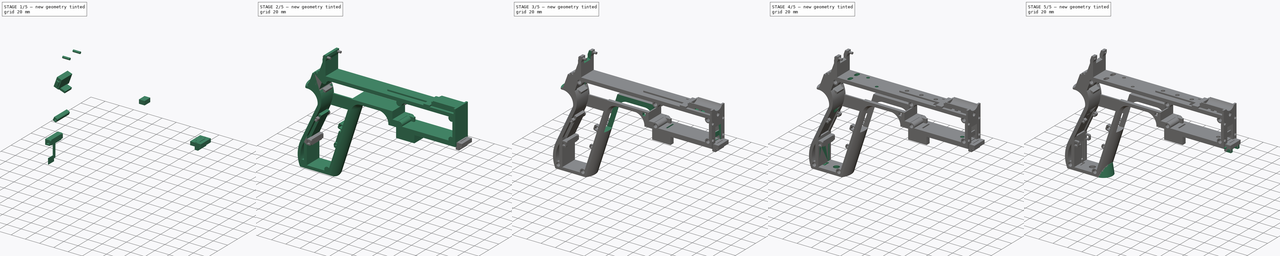
[diagram: build sequence overview — one tinted view per stage of 5, left to right]
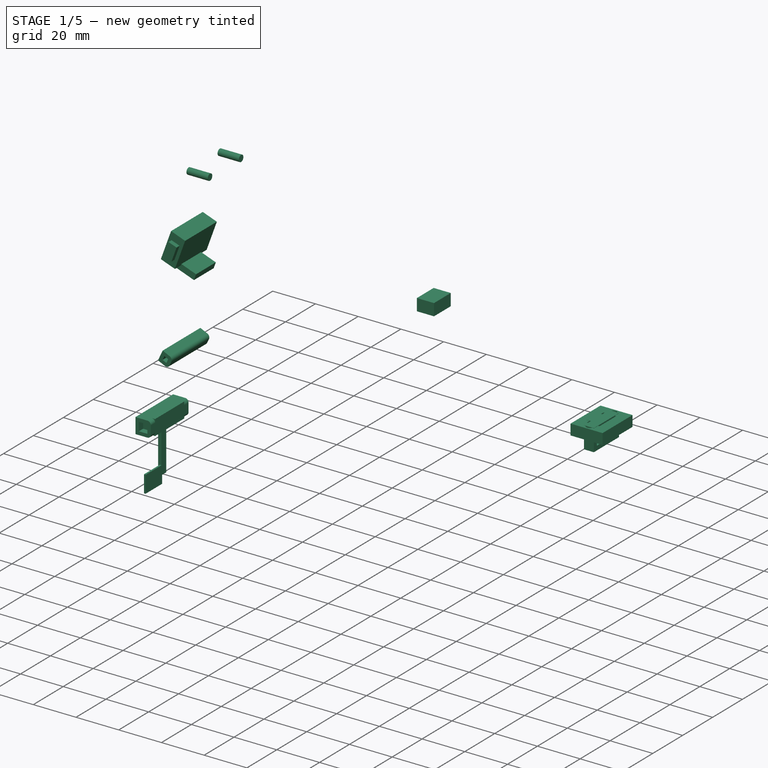
[diagram: stage 1 of 5 — iso view after this stage's code; geometry added in this stage tinted green]
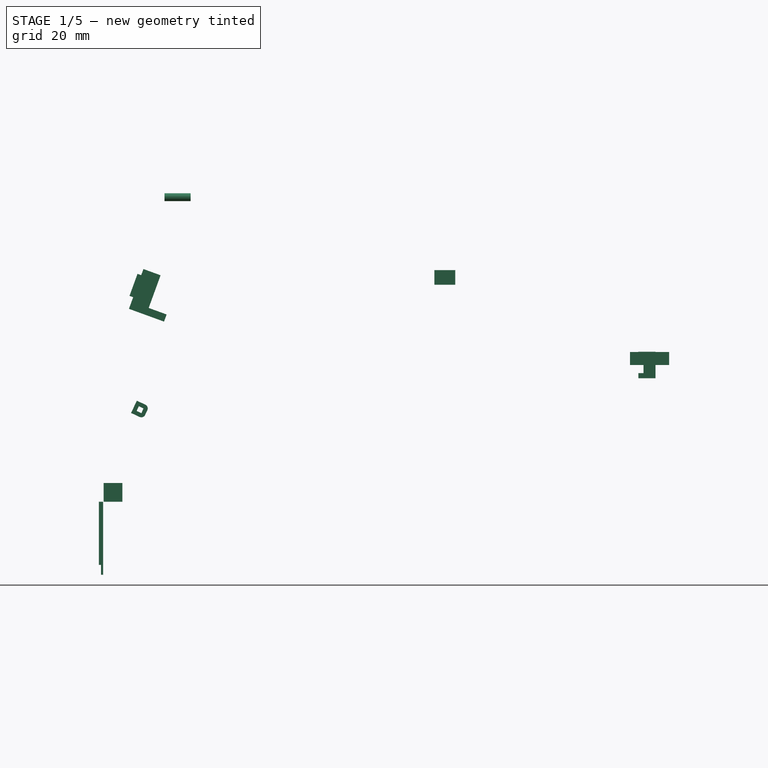
[diagram: stage 1 of 5 — front view after this stage's code; geometry added in this stage tinted green]
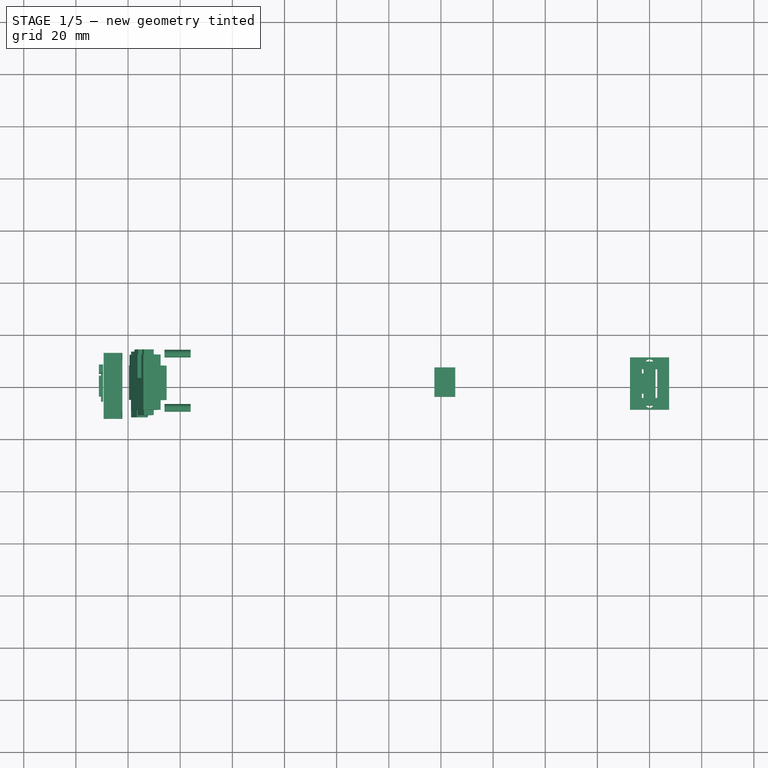
[diagram: stage 1 of 5 — top view after this stage's code; geometry added in this stage tinted green]
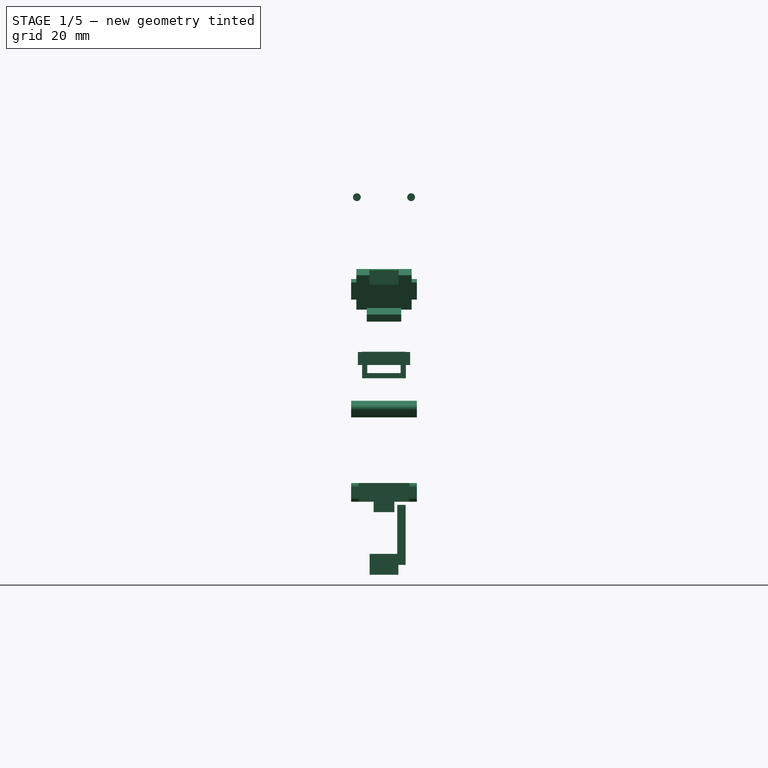
[diagram: stage 1 of 5 — right view after this stage's code; geometry added in this stage tinted green]
FCSTD DOCUMENT  (FreeCAD 1.0R39319 (Git))
Label: PICON-OF_ver_13
License: All rights reserved
LicenseURL: https://en.wikipedia.org/wiki/All_rights_reserved
objects: Part::Extrusion×59, Sketcher::SketchObject×57, Part::Cut×36, PartDesign::Body×4, Part::MultiFuse×3, PartDesign::Plane×2, Part::Sweep×1, PartDesign::ShapeBinder×1, PartDesign::FeatureBase×1, Part::Cone×1
note: 223 computed .brp shape members not serialized (recipe doc carries the construction recipe); baked Part::Feature solids carry a one-line shape summary decoded from their .brp

FEATURE [Sketcher::SketchObject] Sketch039  label="scavo per cavo usb per micro"
  ArcFitTolerance = 1e-06
  AttachmentSupport = -> [XZ_Plane]
  ExternalGeometry = -> [Sketch,Sketch016]
  FullyConstrained = true
  MakeInternals = false
  MapMode = 5
  Placement = pos=(0,0,0) rot=(1,0,0;1.5708rad)
  sketch-geometry (4):
    g0: LineSegment StartX=-82.51 StartY=36.4 StartZ=0 EndX=-74.51 EndY=36.4 EndZ=0
    g1: LineSegment StartX=-74.51 StartY=36.4 StartZ=0 EndX=-74.51 EndY=30.8 EndZ=0
    g2: LineSegment StartX=-74.51 StartY=30.8 StartZ=0 EndX=-82.51 EndY=30.8 EndZ=0
    g3: LineSegment StartX=-82.51 StartY=30.8 StartZ=0 EndX=-82.51 EndY=36.4 EndZ=0
  constraints (11):
    c: Coincident(g1,g0)
    c: Vertical(g1)
    c: Coincident(g2,g1)
    c: Horizontal(g2)
    c: Coincident(g3,g2)
    c: Coincident(g3,g0)
    c: Vertical(g3)
    c: Tangent(g0,g-3)
    c: Tangent(g2,g-4)
    c: Tangent(g3,g-4)
    c: Tangent(g1,g-4)
FEATURE [Part::Extrusion] Extrude042  label="Extrude scavo per cavo usb per micro"
  Base = -> Sketch039
  Dir = (0,-1,2e-16)
  DirMode = 2
  FaceMakerClass = Part::FaceMakerBullseye
  FaceMakerMode = 3
  LengthFwd = 11.2
  LengthRev = 0
  Solid = true
  Symmetric = true
FEATURE [Sketcher::SketchObject] Sketch040  label="scavo saldature alimentatore connettore 5v"
  ArcFitTolerance = 1e-06
  AttachmentSupport = -> [XZ_Plane]
  ExternalGeometry = -> [Sketch037]
  FullyConstrained = true
  MakeInternals = false
  MapMode = 5
  Placement = pos=(0,0,0) rot=(1,0,0;1.5708rad)
  sketch-geometry (4):
    g0: LineSegment StartX=-211.175 StartY=-52.4316 StartZ=0 EndX=-211.175 EndY=-56.4316 EndZ=0
    g1: LineSegment StartX=-211.175 StartY=-52.4316 StartZ=0 EndX=-209.575 EndY=-52.4316 EndZ=0
    g2: LineSegment StartX=-209.575 StartY=-52.4316 StartZ=0 EndX=-209.575 EndY=-56.4316 EndZ=0
    g3: LineSegment StartX=-209.575 StartY=-56.4316 StartZ=0 EndX=-211.175 EndY=-56.4316 EndZ=0
  constraints (11):
    c: Vertical(g0)
    c: Coincident(g1,g0)
    c: Horizontal(g1)
    c: Coincident(g2,g1)
    c: Coincident(g3,g2)
    c: Coincident(g3,g0)
    c: Horizontal(g3)
    c: DistanceX(g1,g1) = 1.6
    c: DistanceY(g2,g2) = 4
    c: Tangent(g2,g-3)
    c: DistanceY(g1,g-3) = 2
FEATURE [Part::Extrusion] Extrude043  label="Extrude scavo saldature alimentatore connettore 5v"
  Base = -> Sketch040
  Dir = (0,-1,2e-16)
  DirMode = 2
  FaceMakerClass = Part::FaceMakerBullseye
  FaceMakerMode = 3
  LengthFwd = 8
  LengthRev = 0
  Solid = true
  Symmetric = true
FEATURE [Sketcher::SketchObject] Sketch041  label="scavo saldature alimentatore connettore 5v verticali"
  ArcFitTolerance = 1e-06
  AttachmentSupport = -> [XZ_Plane]
  ExternalGeometry = -> [Sketch037]
  FullyConstrained = true
  MakeInternals = false
  MapMode = 5
  Placement = pos=(0,0,0) rot=(1,0,0;1.5708rad)
  sketch-geometry (4):
    g0: LineSegment StartX=-211.175 StartY=-53.6316 StartZ=0 EndX=-209.575 EndY=-53.6316 EndZ=0
    g1: LineSegment StartX=-209.575 StartY=-53.6316 StartZ=0 EndX=-209.575 EndY=-76.6316 EndZ=0
    g2: LineSegment StartX=-209.575 StartY=-76.6316 StartZ=0 EndX=-211.175 EndY=-76.6316 EndZ=0
    g3: LineSegment StartX=-211.175 StartY=-76.6316 StartZ=0 EndX=-211.175 EndY=-53.6316 EndZ=0
  constraints (11):
    c: Horizontal(g0)
    c: Coincident(g1,g0)
    c: Coincident(g2,g1)
    c: Horizontal(g2)
    c: Coincident(g3,g2)
    c: Coincident(g3,g0)
    c: Vertical(g3)
    c: DistanceY(g3,g3) = 23
    c: DistanceX(g0,g0) = 1.6
    c: Tangent(g1,g-3)
    c: DistanceY(g0,g-3) = 3.2
FEATURE [Part::Extrusion] Extrude044  label="Extrude scavo saldature alimentatore connettore 5v verticali"
  Base = -> Sketch041
  Dir = (0,-1,2e-16)
  DirMode = 2
  FaceMakerClass = Part::FaceMakerBullseye
  FaceMakerMode = 3
  LengthFwd = 3.2
  LengthRev = 0
  Placement = pos=(0,8.3,0) rot=(0,0,1;0rad)
  Solid = true
  Symmetric = false
FEATURE [Sketcher::SketchObject] Sketch042  label="fermi per driver solenoide e alimentatore"
  ArcFitTolerance = 1e-06
  AttachmentSupport = -> [XZ_Plane]
  ExternalGeometry = -> [Sketch036,Sketch037,Sketch,Sketch038]
  FullyConstrained = true
  MakeInternals = false
  MapMode = 5
  Placement = pos=(0,0,0) rot=(1,0,0;1.5708rad)
  sketch-geometry (27):
    g0: LineSegment StartX=-195.857 StartY=-15.8122 StartZ=0 EndX=-196.702 EndY=-17.6249 EndZ=0
    g1: LineSegment StartX=-196.702 StartY=-17.6249 StartZ=0 EndX=-194.89 EndY=-18.4701 EndZ=0
    g2: LineSegment StartX=-194.89 StartY=-18.4701 StartZ=0 EndX=-194.045 EndY=-16.6575 EndZ=0
    g3: LineSegment StartX=-194.045 StartY=-16.6575 StartZ=0 EndX=-195.857 EndY=-15.8122 EndZ=0
    g4: LineSegment StartX=-196.631 StartY=-13.686 StartZ=0 EndX=-198.829 EndY=-18.3988 EndZ=0
    g5: LineSegment StartX=-198.829 StartY=-18.3988 StartZ=0 EndX=-195.566 EndY=-19.9202 EndZ=0
    g6: LineSegment StartX=-193.44 StartY=-19.1463 StartZ=0 EndX=-192.595 EndY=-17.3337 EndZ=0
    g7: LineSegment StartX=-193.368 StartY=-15.2074 StartZ=0 EndX=-196.631 EndY=-13.686 EndZ=0
    g8: LineSegment [constr] StartX=-194.116 StartY=-20.5964 StartZ=0 EndX=-193.44 EndY=-19.1463 EndZ=0
    g9: LineSegment [constr] StartX=-194.116 StartY=-20.5964 StartZ=0 EndX=-195.566 EndY=-19.9202 EndZ=0
    g10: ArcOfCircle CenterX=-194.045 CenterY=-16.6575 CenterZ=0 NormalX=0 NormalY=0 NormalZ=1 AngleXU=0 Radius=1.6 StartAngle=5.84685 EndAngle=7.41765
    g11: GeomPoint [constr] X=-191.918 Y=-15.8836 Z=0
    g12: ArcOfCircle CenterX=-194.89 CenterY=-18.4701 CenterZ=0 NormalX=0 NormalY=0 NormalZ=1 AngleXU=0 Radius=1.6 StartAngle=4.27606 EndAngle=5.84685
    g13: GeomPoint [constr] X=-194.116 Y=-20.5964 Z=0
    g14: LineSegment StartX=-207.775 StartY=-46.8316 StartZ=0 EndX=-207.775 EndY=-50.8316 EndZ=0
    g15: LineSegment StartX=-207.775 StartY=-46.8316 StartZ=0 EndX=-203.775 EndY=-46.8316 EndZ=0
    g16: LineSegment StartX=-203.775 StartY=-46.8316 StartZ=0 EndX=-203.775 EndY=-50.8316 EndZ=0
    g17: LineSegment StartX=-207.775 StartY=-50.8316 StartZ=0 EndX=-203.775 EndY=-50.8316 EndZ=0
    g18: LineSegment StartX=-209.375 StartY=-52.4316 StartZ=0 EndX=-203.775 EndY=-52.4316 EndZ=0
    g19: LineSegment StartX=-202.175 StartY=-50.8316 StartZ=0 EndX=-202.175 EndY=-46.8316 EndZ=0
    g20: LineSegment StartX=-203.775 StartY=-45.2316 StartZ=0 EndX=-209.375 EndY=-45.2316 EndZ=0
    g21: LineSegment StartX=-209.375 StartY=-45.2316 StartZ=0 EndX=-209.375 EndY=-52.4316 EndZ=0
    g22: ArcOfCircle CenterX=-203.775 CenterY=-46.8316 CenterZ=0 NormalX=0 NormalY=0 NormalZ=1 AngleXU=0 Radius=1.6 StartAngle=1.8e-15 EndAngle=1.5708
    g23: GeomPoint [constr] X=-202.175 Y=-45.2316 Z=0
    g24: ArcOfCircle CenterX=-203.775 CenterY=-50.8316 CenterZ=0 NormalX=0 NormalY=0 NormalZ=1 AngleXU=0 Radius=1.6 StartAngle=4.71239 EndAngle=6.28319
    g25: GeomPoint [constr] X=-202.175 Y=-52.4316 Z=0
    g26: LineSegment [constr] StartX=-207.775 StartY=-50.4316 StartZ=0 EndX=-207.775 EndY=-50.8316 EndZ=0
  constraints (69):
    c: Coincident(g1,g0)
    c: Coincident(g2,g1)
    c: Coincident(g3,g2)
    c: Coincident(g3,g0)
    c: Parallel(g0,g2)
    c: Perpendicular(g3,g0)
    c: Perpendicular(g1,g0)
    c: Coincident(g5,g4)
    c: Coincident(g7,g4)
    c: Distance(g3) = 2
    c: Distance(g2) = 2
    c: Parallel(g6,g2)
    c: Parallel(g6,g4)
    c: Perpendicular(g5,g6)
    c: Perpendicular(g7,g6)
    c: Distance(g13,g11) = 5.2
    c: Distance(g5,g13) = 5.2
    c: Coincident(g9,g8)
    c: Distance(g8) = 1.6
    c: Distance(g9) = 1.6
    c: Perpendicular(g9,g8)
    c: Parallel(g8,g6)
    c: Coincident(g8,g13)
    c: Distance(g8,g1) = 1.6
    c: Distance(g9,g1) = 1.6
    c: Tangent(g0,g-5)
    c: Distance(g0,g-6) = 26.2
    c: PointOnObject(g11,g7)
    c: PointOnObject(g11,g6)
    c: Tangent(g7,g10) = -1.5708
    c: Tangent(g6,g10) = -1.5708
    c: PointOnObject(g13,g5)
    c: Tangent(g5,g12) = -1.5708
    c: Tangent(g6,g12) = -1.5708
    c: Equal(g10,g12)
    c: Coincident(g10,g2)
    c: Vertical(g14)
    c: Coincident(g15,g14)
    c: Horizontal(g15)
    c: Coincident(g16,g15)
    c: Vertical(g16)
    c: Coincident(g17,g14)
    c: Coincident(g17,g16)
    c: Horizontal(g17)
    c: Distance(g16) = 4
    c: Distance(g15) = 4
    c: Horizontal(g18)
    c: Vertical(g19)
    c: Horizontal(g20)
    c: Coincident(g21,g20)
    c: Coincident(g21,g18)
    c: Vertical(g21)
    c: Distance(g20,g23) = 7.2
    c: Distance(g25,g23) = 7.2
    c: DistanceY(g18,g14) = 1.6
    c: DistanceX(g18,g14) = 1.6
    c: PointOnObject(g23,g20)
    c: PointOnObject(g23,g19)
    c: Tangent(g20,g22) = -1.5708
    c: Tangent(g19,g22) = -1.5708
    c: PointOnObject(g25,g19)
    c: Tangent(g18,g24) = -1.5708
    c: Tangent(g19,g24) = -1.5708
    c: Equal(g22,g24)
    c: Coincident(g22,g15)
    c: Vertical(g26)
    c: Distance(g26) = 0.4
    c: Coincident(g26,g-4)
    c: Coincident(g14,g26)
FEATURE [Part::Extrusion] Extrude045  label="Extrude fermi per driver solenoide e alimentatore"
  Base = -> Sketch042
  Dir = (0,-1,2e-16)
  DirMode = 2
  FaceMakerClass = Part::FaceMakerBullseye
  FaceMakerMode = 3
  LengthFwd = 25.2
  LengthRev = 0
  Solid = true
  Symmetric = true
FEATURE [Sketcher::SketchObject] Sketch043  label="scavo pulizia fermo alimentatore"
  ArcFitTolerance = 1e-06
  AttachmentSupport = -> [XZ_Plane]
  ExternalGeometry = -> [Sketch042,Sketch036,Sketch037]
  FullyConstrained = true
  MakeInternals = false
  MapMode = 5
  Placement = pos=(0,0,0) rot=(1,0,0;1.5708rad)
  sketch-geometry (6):
    g0: LineSegment StartX=-209.375 StartY=-52.4316 StartZ=0 EndX=-209.375 EndY=-50.4316 EndZ=0
    g1: LineSegment StartX=-209.375 StartY=-50.4316 StartZ=0 EndX=-207.775 EndY=-50.4316 EndZ=0
    g2: LineSegment StartX=-207.775 StartY=-50.4316 StartZ=0 EndX=-207.775 EndY=-45.2316 EndZ=0
    g3: LineSegment StartX=-207.775 StartY=-45.2316 StartZ=0 EndX=-202.175 EndY=-45.2316 EndZ=0
    g4: LineSegment StartX=-202.175 StartY=-45.2316 StartZ=0 EndX=-202.175 EndY=-52.4316 EndZ=0
    g5: LineSegment StartX=-202.175 StartY=-52.4316 StartZ=0 EndX=-209.375 EndY=-52.4316 EndZ=0
  constraints (13):
    c: Vertical(g0)
    c: Coincident(g1,g0)
    c: Coincident(g2,g1)
    c: Coincident(g3,g2)
    c: Coincident(g4,g3)
    c: Coincident(g5,g4)
    c: Coincident(g5,g0)
    c: Horizontal(g5)
    c: Coincident(g0,g-6)
    c: Tangent(g1,g-8)
    c: Tangent(g2,g-4)
    c: Tangent(g3,g-7)
    c: Tangent(g4,g-3)
FEATURE [Part::Extrusion] Extrude046  label="Extrude scavo pulizia fermo alimentatore"
  Base = -> Sketch043
  Dir = (0,-1,2e-16)
  DirMode = 2
  FaceMakerClass = Part::FaceMakerBullseye
  FaceMakerMode = 3
  LengthFwd = 19.5
  LengthRev = 0
  Solid = true
  Symmetric = true
FEATURE [Sketcher::SketchObject] Sketch044  label="buchini per fissaggio oled"
  ArcFitTolerance = 1e-06
  AttachmentSupport = -> [YZ_Plane]
  ExternalGeometry = -> [Sketch]
  FullyConstrained = true
  MakeInternals = false
  MapMode = 5
  Placement = pos=(0,0,0) rot=(0.57735,0.57735,0.57735;2.0944rad)
  sketch-geometry (5):
    g0: LineSegment [constr] StartX=1.5e-14 StartY=67.3588 StartZ=0 EndX=0 EndY=64.3588 EndZ=0
    g1: LineSegment [constr] StartX=0 StartY=64.3588 StartZ=0 EndX=10.4 EndY=64.3588 EndZ=0
    g2: LineSegment [constr] StartX=0 StartY=64.3588 StartZ=0 EndX=-10.4 EndY=64.3588 EndZ=0
    g3: Circle CenterX=10.4 CenterY=64.3588 CenterZ=0 NormalX=0 NormalY=0 NormalZ=1 AngleXU=0 Radius=1.5
    g4: Circle CenterX=-10.4 CenterY=64.3588 CenterZ=0 NormalX=0 NormalY=0 NormalZ=1 AngleXU=0 Radius=1.5
  constraints (13):
    c: Distance(g0) = 3
    c: PointOnObject(g0,g-2)
    c: Coincident(g1,g0)
    c: Horizontal(g1)
    c: Coincident(g2,g0)
    c: Horizontal(g2)
    c: DistanceX(g1,g1) = 10.4
    c: Coincident(g3,g1)
    c: Diameter(g4) = 3
    c: Coincident(g4,g2)
    c: Coincident(g0,g-7)
    c: Equal(g1,g2)
    c: Equal(g4,g3)
FEATURE [Part::Extrusion] Extrude047  label="Extrude buchini per fissaggio oled"
  Base = -> Sketch044
  Dir = (1,0,0)
  DirMode = 2
  FaceMakerClass = Part::FaceMakerBullseye
  FaceMakerMode = 3
  LengthFwd = 10
  LengthRev = 0
  Placement = pos=(-186,0,0) rot=(0,0,1;0rad)
  Solid = true
  Symmetric = false
FEATURE [Sketcher::SketchObject] Sketch054  label="scavo saldature alimentatore connettore USB"
  ArcFitTolerance = 1e-06
  AttachmentSupport = -> [XZ_Plane]
  ExternalGeometry = -> [Sketch037]
  FullyConstrained = true
  MakeInternals = false
  MapMode = 5
  Placement = pos=(0,0,0) rot=(1,0,0;1.5708rad)
  sketch-geometry (4):
    g0: LineSegment StartX=-209.575 StartY=-80.4316 StartZ=0 EndX=-210.375 EndY=-80.4316 EndZ=0
    g1: LineSegment StartX=-210.375 StartY=-80.4316 StartZ=0 EndX=-210.375 EndY=-72.4316 EndZ=0
    g2: LineSegment StartX=-210.375 StartY=-72.4316 StartZ=0 EndX=-209.575 EndY=-72.4316 EndZ=0
    g3: LineSegment StartX=-209.575 StartY=-72.4316 StartZ=0 EndX=-209.575 EndY=-80.4316 EndZ=0
  constraints (11):
    c: Horizontal(g0)
    c: Coincident(g1,g0)
    c: Vertical(g1)
    c: Coincident(g2,g1)
    c: Horizontal(g2)
    c: Coincident(g3,g2)
    c: Coincident(g3,g0)
    c: Vertical(g3)
    c: DistanceX(g0,g0) = 0.8
    c: DistanceY(g3,g3) = 8
    c: Coincident(g0,g-4)
FEATURE [Part::Extrusion] Extrude057  label="Extrude scavo saldature alimentatore connettore USB"
  Base = -> Sketch054
  Dir = (0,-1,2e-16)
  DirMode = 2
  FaceMakerClass = Part::FaceMakerBullseye
  FaceMakerMode = 3
  LengthFwd = 11
  LengthRev = 0
  Solid = true
  Symmetric = true
FEATURE [Sketcher::SketchObject] Sketch055  label="buco interno per micro switch"
  ArcFitTolerance = 1e-06
  AttachmentSupport = -> [XZ_Plane]
  ExternalGeometry = -> [Sketch]
  FullyConstrained = true
  MakeInternals = false
  MapMode = 5
  Placement = pos=(0,0,0) rot=(1,0,0;1.5708rad)
  sketch-geometry (11):
    g0: LineSegment [constr] StartX=-194.483 StartY=34.2854 StartZ=0 EndX=-196.022 EndY=30.0568 EndZ=0
    g1: LineSegment [constr] StartX=-196.022 StartY=30.0568 StartZ=0 EndX=-197.561 EndY=25.8282 EndZ=0
    g2: LineSegment [constr] StartX=-196.022 StartY=30.0568 StartZ=0 EndX=-194.143 EndY=29.3727 EndZ=0
    g3: LineSegment [constr] StartX=-196.022 StartY=30.0568 StartZ=0 EndX=-197.902 EndY=30.7408 EndZ=0
    g4: LineSegment StartX=-196.362 StartY=34.9694 StartZ=0 EndX=-192.604 EndY=33.6014 EndZ=0
    g5: LineSegment StartX=-199.441 StartY=26.5122 StartZ=0 EndX=-195.682 EndY=25.1441 EndZ=0
    g6: LineSegment StartX=-192.604 StartY=33.6014 StartZ=0 EndX=-195.682 EndY=25.1441 EndZ=0
    g7: LineSegment StartX=-196.362 StartY=34.9694 StartZ=0 EndX=-199.441 EndY=26.5122 EndZ=0
    g8: GeomPoint [constr] X=-187.821 Y=29.2 Z=0
    g9: LineSegment [constr] StartX=-188.505 StartY=27.3206 StartZ=0 EndX=-196.022 EndY=30.0568 EndZ=0
    g10: LineSegment [constr] StartX=-187.821 StartY=29.2 StartZ=0 EndX=-188.505 EndY=27.3206 EndZ=0
  constraints (27):
    c: Coincident(g2,g0)
    c: Parallel(g0,g-3)
    c: Tangent(g1,g0) = -1.5708
    c: Perpendicular(g0,g2)
    c: Tangent(g2,g3)
    c: Distance(g0,g1) = 9
    c: Equal(g0,g1)
    c: Distance(g3,g2) = 4
    c: Equal(g2,g3)
    c: Parallel(g3,g4)
    c: Symmetric(g4,g4,g0)
    c: Parallel(g6,g1)
    c: Parallel(g7,g1)
    c: Symmetric(g6,g6,g2)
    c: Symmetric(g5,g5,g1)
    c: Symmetric(g7,g7,g3)
    c: Coincident(g7,g4)
    c: Coincident(g6,g4)
    c: Coincident(g5,g6)
    c: Symmetric(g-3,g-3,g8)
    c: Perpendicular(g-3,g9)
    c: Distance(g9) = 8
    c: Coincident(g3,g9)
    c: Coincident(g10,g8)
    c: Parallel(g10,g-3)
    c: Distance(g10) = 2
    c: Coincident(g10,g9)
FEATURE [Part::Extrusion] Extrude058  label="Extrude buco interno per micro switch sinistro"
  Base = -> Sketch055
  Dir = (0,-1,2e-16)
  DirMode = 2
  FaceMakerClass = Part::FaceMakerBullseye
  FaceMakerMode = 3
  LengthFwd = 9
  LengthRev = 0
  Placement = pos=(0,10.6,0) rot=(0,0,1;0rad)
  Solid = true
  Symmetric = false
FEATURE [Sketcher::SketchObject] Sketch056  label="buco esterno per micro switch"
  ArcFitTolerance = 1e-06
  AttachmentSupport = -> [XZ_Plane]
  ExternalGeometry = -> [Sketch055]
  FullyConstrained = true
  MakeInternals = false
  MapMode = 5
  Placement = pos=(0,0,0) rot=(1,0,0;1.5708rad)
  sketch-geometry (17):
    g0: GeomPoint [constr] X=-194.143 Y=29.3727 Z=0
    g1: GeomPoint [constr] X=-194.483 Y=34.2854 Z=0
    g2: GeomPoint [constr] X=-197.902 Y=30.7408 Z=0
    g3: GeomPoint [constr] X=-197.561 Y=25.8282 Z=0
    g4: GeomPoint [constr] X=-196.022 Y=30.0568 Z=0
    g5: LineSegment [constr] StartX=-194.483 StartY=34.2854 StartZ=0 EndX=-196.022 EndY=30.0568 EndZ=0
    g6: LineSegment [constr] StartX=-196.022 StartY=30.0568 StartZ=0 EndX=-197.561 EndY=25.8282 EndZ=0
    g7: LineSegment [constr] StartX=-197.902 StartY=30.7408 StartZ=0 EndX=-196.022 EndY=30.0568 EndZ=0
    g8: LineSegment [constr] StartX=-196.022 StartY=30.0568 StartZ=0 EndX=-194.143 EndY=29.3727 EndZ=0
    g9: LineSegment [constr] StartX=-195.338 StartY=31.9362 StartZ=0 EndX=-196.022 EndY=30.0568 EndZ=0
    g10: LineSegment [constr] StartX=-196.022 StartY=30.0568 StartZ=0 EndX=-196.706 EndY=28.1774 EndZ=0
    g11: LineSegment [constr] StartX=-196.022 StartY=30.0568 StartZ=0 EndX=-196.821 EndY=30.3475 EndZ=0
    g12: LineSegment [constr] StartX=-196.022 StartY=30.0568 StartZ=0 EndX=-195.223 EndY=29.7661 EndZ=0
    g13: LineSegment StartX=-194.539 StartY=31.6454 StartZ=0 EndX=-195.907 EndY=27.8867 EndZ=0
    g14: LineSegment StartX=-196.137 StartY=32.2269 StartZ=0 EndX=-197.505 EndY=28.4681 EndZ=0
    g15: LineSegment StartX=-196.137 StartY=32.2269 StartZ=0 EndX=-194.539 EndY=31.6454 EndZ=0
    g16: LineSegment StartX=-197.505 StartY=28.4681 StartZ=0 EndX=-195.907 EndY=27.8867 EndZ=0
  constraints (34):
    c: Symmetric(g-5,g-5,g1)
    c: Symmetric(g-5,g-6,g0)
    c: Symmetric(g-6,g-6,g3)
    c: Symmetric(g-5,g-6,g2)
    c: Coincident(g5,g1)
    c: Coincident(g5,g4)
    c: Coincident(g6,g4)
    c: Coincident(g6,g3)
    c: Equal(g5,g6)
    c: Coincident(g7,g2)
    c: Coincident(g7,g4)
    c: Coincident(g8,g4)
    c: Coincident(g8,g0)
    c: Equal(g7,g8)
    c: Coincident(g11,g9)
    c: Coincident(g12,g9)
    c: Tangent(g10,g9) = -1.5708
    c: Perpendicular(g11,g9)
    c: Parallel(g9,g-4)
    c: Equal(g9,g10)
    c: Parallel(g12,g11)
    c: Equal(g11,g12)
    c: Distance(g11,g12) = 1.7
    c: Distance(g9,g10) = 4
    c: Symmetric(g13,g13,g12)
    c: Parallel(g13,g9)
    c: Symmetric(g14,g14,g11)
    c: Symmetric(g15,g15,g9)
    c: Parallel(g15,g11)
    c: Symmetric(g16,g16,g10)
    c: Coincident(g16,g14)
    c: Coincident(g15,g14)
    c: Coincident(g13,g15)
    c: Coincident(g9,g4)
FEATURE [Part::Extrusion] Extrude059  label="Extrude buco esterno per micro switch sinistro"
  Base = -> Sketch056
  Dir = (0,-1,2e-16)
  DirMode = 2
  FaceMakerClass = Part::FaceMakerBullseye
  FaceMakerMode = 3
  LengthFwd = 2
  LengthRev = 0
  Placement = pos=(0,12.6,0) rot=(0,0,1;0rad)
  Solid = true
  Symmetric = false
FEATURE [Sketcher::SketchObject] Sketch057  label="buco interno per SWITCH"
  ArcFitTolerance = 1e-06
  AttachmentSupport = -> [XZ_Plane]
  ExternalGeometry = -> [Sketch]
  FullyConstrained = true
  MakeInternals = false
  MapMode = 5
  Placement = pos=(0,0,0) rot=(1,0,0;1.5708rad)
  sketch-geometry (10):
    g0: GeomPoint [constr] X=-187.821 Y=29.2 Z=0
    g1: LineSegment [constr] StartX=-188.505 StartY=27.3206 StartZ=0 EndX=-193.203 EndY=29.0307 EndZ=0
    g2: LineSegment [constr] StartX=-190.809 StartY=35.6086 StartZ=0 EndX=-195.597 EndY=22.4529 EndZ=0
    g3: GeomPoint [constr] X=-193.203 Y=29.0307 Z=0
    g4: LineSegment [constr] StartX=-196.492 StartY=30.2278 StartZ=0 EndX=-189.914 EndY=27.8336 EndZ=0
    g5: LineSegment StartX=-194.098 StartY=36.8056 StartZ=0 EndX=-187.52 EndY=34.4115 EndZ=0
    g6: LineSegment StartX=-194.098 StartY=36.8056 StartZ=0 EndX=-198.886 EndY=23.6499 EndZ=0
    g7: LineSegment StartX=-187.52 StartY=34.4115 StartZ=0 EndX=-192.308 EndY=21.2558 EndZ=0
    g8: LineSegment StartX=-198.886 StartY=23.6499 StartZ=0 EndX=-192.308 EndY=21.2558 EndZ=0
    g9: LineSegment [constr] StartX=-187.821 StartY=29.2 StartZ=0 EndX=-188.505 EndY=27.3206 EndZ=0
  constraints (23):
    c: Symmetric(g-3,g-3,g0)
    c: Perpendicular(g1,g-3)
    c: Parallel(g2,g-3)
    c: Symmetric(g2,g2,g3)
    c: Perpendicular(g2,g4)
    c: Symmetric(g4,g4,g3)
    c: Distance(g2) = 14
    c: Distance(g4) = 7
    c: Distance(g1) = 5
    c: Parallel(g5,g4)
    c: Parallel(g7,g2)
    c: Symmetric(g5,g5,g2)
    c: Symmetric(g6,g6,g4)
    c: Symmetric(g7,g7,g4)
    c: Symmetric(g8,g8,g2)
    c: Coincident(g6,g5)
    c: Coincident(g7,g5)
    c: Coincident(g8,g7)
    c: Coincident(g3,g1)
    c: Coincident(g9,g0)
    c: Parallel(g9,g-3)
    c: Distance(g9) = 2
    c: Coincident(g1,g9)
FEATURE [Sketcher::SketchObject] Sketch058  label="buco esterno per SWITCH"
  ArcFitTolerance = 1e-06
  AttachmentSupport = -> [XZ_Plane]
  ExternalGeometry = -> [Sketch057]
  FullyConstrained = true
  MakeInternals = false
  MapMode = 5
  Placement = pos=(0,0,0) rot=(1,0,0;1.5708rad)
  sketch-geometry (12):
    g0: GeomPoint [constr] X=-190.809 Y=35.6086 Z=0
    g1: GeomPoint [constr] X=-196.492 Y=30.2278 Z=0
    g2: GeomPoint [constr] X=-189.914 Y=27.8336 Z=0
    g3: GeomPoint [constr] X=-195.597 Y=22.4529 Z=0
    g4: GeomPoint [constr] X=-193.203 Y=29.0307 Z=0
    g5: LineSegment [constr] StartX=-192.006 StartY=32.3196 StartZ=0 EndX=-194.4 EndY=25.7418 EndZ=0
    g6: GeomPoint [constr] X=-193.203 Y=29.0307 Z=0
    g7: LineSegment [constr] StartX=-195.082 StartY=29.7148 StartZ=0 EndX=-191.324 EndY=28.3467 EndZ=0
    g8: LineSegment StartX=-193.885 StartY=33.0037 StartZ=0 EndX=-190.127 EndY=31.6356 EndZ=0
    g9: LineSegment StartX=-190.127 StartY=31.6356 StartZ=0 EndX=-192.521 EndY=25.0578 EndZ=0
    g10: LineSegment StartX=-196.28 StartY=26.4258 StartZ=0 EndX=-192.521 EndY=25.0578 EndZ=0
    g11: LineSegment StartX=-193.885 StartY=33.0037 StartZ=0 EndX=-196.28 EndY=26.4258 EndZ=0
  constraints (21):
    c: Symmetric(g-6,g-6,g3)
    c: Symmetric(g-4,g-6,g2)
    c: Symmetric(g-5,g-4,g0)
    c: Symmetric(g-5,g-6,g1)
    c: Symmetric(g1,g2,g4)
    c: Parallel(g5,g-4)
    c: Symmetric(g5,g5,g6)
    c: Perpendicular(g7,g5)
    c: Symmetric(g7,g7,g6)
    c: Distance(g5) = 7
    c: Distance(g7) = 4
    c: Parallel(g8,g7)
    c: Parallel(g11,g5)
    c: Symmetric(g8,g8,g5)
    c: Symmetric(g9,g9,g7)
    c: Symmetric(g10,g10,g5)
    c: Symmetric(g11,g11,g7)
    c: Coincident(g11,g8)
    c: Coincident(g9,g8)
    c: Coincident(g9,g10)
    c: Coincident(g6,g4)
FEATURE [Part::Extrusion] Extrude060  label="Extrude buco interno per SWITCH destro"
  Base = -> Sketch057
  Dir = (0,-1,2e-16)
  DirMode = 2
  FaceMakerClass = Part::FaceMakerBullseye
  FaceMakerMode = 3
  LengthFwd = 13.2
  LengthRev = 0
  Placement = pos=(0,2.6,0) rot=(0,0,1;0rad)
  Solid = true
  Symmetric = false
FEATURE [Part::Extrusion] Extrude061  label="Extrude buco esterno per SWITCH destro"
  Base = -> Sketch058
  Dir = (0,-1,2e-16)
  DirMode = 2
  FaceMakerClass = Part::FaceMakerBullseye
  FaceMakerMode = 3
  LengthFwd = 2
  LengthRev = 0
  Placement = pos=(0,-10.6,0) rot=(0,0,1;0rad)
  Solid = true
  Symmetric = false
FEATURE [Sketcher::SketchObject] Sketch059  label="buco per spazio introduzione SWITCH"
  ArcFitTolerance = 1e-06
  AttachmentSupport = -> [XZ_Plane]
  ExternalGeometry = -> [Sketch057,Sketch010]
  FullyConstrained = true
  MakeInternals = false
  MapMode = 5
  Placement = pos=(0,0,0) rot=(1,0,0;1.5708rad)
  sketch-geometry (8):
    g0: LineSegment [constr] StartX=-201.368 StartY=36.3521 StartZ=0 EndX=-195.094 EndY=34.0687 EndZ=0
    g1: LineSegment [constr] StartX=-194.098 StartY=36.8056 StartZ=0 EndX=-195.094 EndY=34.0687 EndZ=0
    g2: LineSegment StartX=-198.658 StartY=24.277 StartZ=0 EndX=-199.654 EndY=21.5401 EndZ=0
    g3: LineSegment StartX=-199.654 StartY=21.5401 StartZ=0 EndX=-186.196 EndY=16.6418 EndZ=0
    g4: LineSegment StartX=-186.196 StartY=16.6418 StartZ=0 EndX=-185.2 EndY=19.3788 EndZ=0
    g5: LineSegment StartX=-185.2 StartY=19.3788 StartZ=0 EndX=-198.658 EndY=24.277 EndZ=0
    g6: LineSegment [constr] StartX=-204.932 StartY=26.5605 StartZ=0 EndX=-198.658 EndY=24.277 EndZ=0
    g7: LineSegment [constr] StartX=-198.658 StartY=24.277 StartZ=0 EndX=-199.654 EndY=21.5401 EndZ=0
  constraints (20):
    c: Parallel(g1,g-3)
    c: Parallel(g0,g-4)
    c: Coincident(g0,g-4)
    c: Coincident(g1,g-3)
    c: Coincident(g0,g1)
    c: Coincident(g3,g2)
    c: Coincident(g4,g3)
    c: Coincident(g5,g4)
    c: Coincident(g5,g2)
    c: Parallel(g5,g-5)
    c: Parallel(g3,g-5)
    c: Parallel(g4,g-6)
    c: DistanceX(g-6,g4) = 0
    c: Coincident(g6,g-5)
    c: Equal(g6,g0)
    c: Coincident(g7,g6)
    c: Equal(g7,g1)
    c: Tangent(g7,g-3)
    c: Coincident(g2,g6)
    c: Coincident(g2,g7)
FEATURE [PartDesign::Body] Body  label="Struttura pistola"
  AllowCompound = false
  Group = -> [Sketch,Sketch002,Sketch004,DatumPlane,Sketch005,DatumPlane001,CopyCut,Sketch008,Sketch009,Sketch010,Sketch011,Sketch012,Sketch013,Sketch014,Sketch015,Sketch016,Sketch017,Sketch018,Sketch019,Sketch020,Sketch022,Sketch023,Sketch024,Sketch025,Sketch026,Sketch027,Sketch029,Sketch030,Sketch031,Sketch032,Sketch033,Sketch034,Sketch035,Sketch036,Sketch037,Sketch038,Sketch039,Sketch040,Sketch041,Sketch042,+10 more]
  Origin = -> Origin
FEATURE [Part::Extrusion] Extrude062  label="Extrude buco per spazio introduzione SWITCH"
  Base = -> Sketch059
  Dir = (0,-1,2e-16)
  DirMode = 2
  FaceMakerClass = Part::FaceMakerBullseye
  FaceMakerMode = 3
  LengthFwd = 13.2
  LengthRev = 0
  Solid = true
  Symmetric = true
FEATURE [Part::Extrusion] Extrude063  label="Extrude buco interno per SWITCH sinistro"
  Base = -> Sketch057
  Dir = (0,-1,2e-16)
  DirMode = 2
  FaceMakerClass = Part::FaceMakerBullseye
  FaceMakerMode = 3
  LengthFwd = 13.2
  LengthRev = 0
  Placement = pos=(0,10.6,0) rot=(0,0,1;0rad)
  Solid = true
  Symmetric = false
FEATURE [Part::Extrusion] Extrude064  label="Extrude buco esterno per SWITCH sinistro"
  Base = -> Sketch058
  Dir = (0,-1,2e-16)
  DirMode = 2
  FaceMakerClass = Part::FaceMakerBullseye
  FaceMakerMode = 3
  LengthFwd = 2
  LengthRev = 0
  Placement = pos=(0,12.6,0) rot=(0,0,1;0rad)
  Solid = true
  Symmetric = false
FEATURE [Sketcher::SketchObject] Sketch060  label="prova spazio switch"
  ArcFitTolerance = 1e-06
  AttachmentSupport = -> [XY_Plane003]
  FullyConstrained = true
  MakeInternals = false
  MapMode = 5
  sketch-geometry (12):
    g0: LineSegment StartX=-7.5 StartY=10 StartZ=0 EndX=-7.5 EndY=-10 EndZ=0
    g1: LineSegment StartX=-7.5 StartY=-10 StartZ=0 EndX=7.5 EndY=-10 EndZ=0
    g2: LineSegment StartX=7.5 StartY=-10 StartZ=0 EndX=7.5 EndY=10 EndZ=0
    g3: LineSegment StartX=7.5 StartY=10 StartZ=0 EndX=-7.5 EndY=10 EndZ=0
    g4: GeomPoint [constr] X=0 Y=0 Z=0
    g5: LineSegment StartX=-2.95 StartY=-5.55 StartZ=0 EndX=2.95 EndY=-5.55 EndZ=0
    g6: LineSegment StartX=2.95 StartY=-5.55 StartZ=0 EndX=2.95 EndY=5.55 EndZ=0
    g7: LineSegment StartX=2.95 StartY=5.55 StartZ=0 EndX=-2.95 EndY=5.55 EndZ=0
    g8: LineSegment StartX=-2.95 StartY=5.55 StartZ=0 EndX=-2.95 EndY=-5.55 EndZ=0
    g9: GeomPoint [constr] X=0 Y=0 Z=0
    g10: Circle CenterX=0 CenterY=7.75 CenterZ=0 NormalX=0 NormalY=0 NormalZ=1 AngleXU=0 Radius=1.6
    g11: Circle CenterX=0 CenterY=-7.75 CenterZ=0 NormalX=0 NormalY=0 NormalZ=1 AngleXU=0 Radius=1.6
  constraints (29):
    c: Coincident(g0,g1)
    c: Coincident(g1,g2)
    c: Coincident(g2,g3)
    c: Coincident(g3,g0)
    c: Vertical(g0)
    c: Vertical(g2)
    c: Horizontal(g1)
    c: Horizontal(g3)
    c: Symmetric(g2,g0,g4)
    c: Coincident(g4,g-1)
    c: Distance(g3) = 15
    c: Distance(g2) = 20
    c: Coincident(g5,g6)
    c: Coincident(g6,g7)
    c: Coincident(g7,g8)
    c: Coincident(g8,g5)
    c: Horizontal(g5)
    c: Horizontal(g7)
    c: Vertical(g6)
    c: Vertical(g8)
    c: Symmetric(g7,g5,g9)
    c: Coincident(g9,g4)
    c: Distance(g7) = 5.9
    c: Distance(g6) = 11.1
    c: Diameter(g10) = 3.2
    c: Equal(g10,g11)
    c: Symmetric(g10,g11,g-1)
    c: PointOnObject(g10,g-2)
    c: Distance(g10,g11) = 15.5
FEATURE [Part::Extrusion] Extrude065  label="Extrude prova spazio switch"
  Base = -> Sketch060
  Dir = (0,0,1)
  DirMode = 2
  FaceMakerClass = Part::FaceMakerBullseye
  FaceMakerMode = 3
  LengthFwd = 5
  LengthRev = 0
  Solid = true
  Symmetric = false
FEATURE [Sketcher::SketchObject] Sketch061  label="struttura esterna blocco switch"
  ArcFitTolerance = 1e-06
  AttachmentSupport = -> [XZ_Plane003]
  FullyConstrained = true
  MakeInternals = false
  MapMode = 5
  Placement = pos=(0,0,0) rot=(1,0,0;1.5708rad)
  sketch-geometry (5):
    g0: LineSegment StartX=-2.3 StartY=-5.1 StartZ=0 EndX=2.3 EndY=-5.1 EndZ=0
    g1: LineSegment StartX=2.3 StartY=-5.1 StartZ=0 EndX=2.3 EndY=5.1 EndZ=0
    g2: LineSegment StartX=2.3 StartY=5.1 StartZ=0 EndX=-2.3 EndY=5.1 EndZ=0
    g3: LineSegment StartX=-2.3 StartY=5.1 StartZ=0 EndX=-2.3 EndY=-5.1 EndZ=0
    g4: GeomPoint [constr] X=0 Y=0 Z=0
  constraints (12):
    c: Coincident(g0,g1)
    c: Coincident(g1,g2)
    c: Coincident(g2,g3)
    c: Coincident(g3,g0)
    c: Horizontal(g0)
    c: Horizontal(g2)
    c: Vertical(g1)
    c: Vertical(g3)
    c: Symmetric(g2,g0,g4)
    c: Distance(g1,g3) = 4.6
    c: Distance(g0,g2) = 10.2
    c: Coincident(g4,g-1)
FEATURE [Part::Extrusion] Extrude066  label="Extrude struttura esterna blocco switch"
  Base = -> Sketch061
  Dir = (0,-1,2e-16)
  DirMode = 2
  FaceMakerClass = Part::FaceMakerBullseye
  FaceMakerMode = 3
  LengthFwd = 16.8
  LengthRev = 0
  Solid = true
  Symmetric = true
FEATURE [Sketcher::SketchObject] Sketch062  label="struttura interna blocco switch"
  ArcFitTolerance = 1e-06
  AttachmentSupport = -> [XZ_Plane003]
  ExternalGeometry = -> [Sketch061]
  FullyConstrained = true
  MakeInternals = false
  MapMode = 5
  Placement = pos=(0,0,0) rot=(1,0,0;1.5708rad)
  sketch-geometry (5):
    g0: LineSegment StartX=-2.3 StartY=3.1 StartZ=0 EndX=-2.3 EndY=-3.1 EndZ=0
    g1: LineSegment StartX=-2.3 StartY=-3.1 StartZ=0 EndX=2.3 EndY=-3.1 EndZ=0
    g2: LineSegment StartX=2.3 StartY=-3.1 StartZ=0 EndX=2.3 EndY=3.1 EndZ=0
    g3: LineSegment StartX=2.3 StartY=3.1 StartZ=0 EndX=-2.3 EndY=3.1 EndZ=0
    g4: GeomPoint [constr] X=-1e-16 Y=0 Z=0
  constraints (12):
    c: Coincident(g0,g1)
    c: Coincident(g1,g2)
    c: Coincident(g2,g3)
    c: Coincident(g3,g0)
    c: Vertical(g0)
    c: Vertical(g2)
    c: Horizontal(g1)
    c: Horizontal(g3)
    c: Symmetric(g2,g0,g4)
    c: Coincident(g4,g-1)
    c: Distance(g0) = 6.2
    c: Equal(g3,g-3)
FEATURE [Part::Extrusion] Extrude067  label="Extrude struttura interna blocco switch"
  Base = -> Sketch062
  Dir = (0,-1,2e-16)
  DirMode = 2
  FaceMakerClass = Part::FaceMakerBullseye
  FaceMakerMode = 3
  LengthFwd = 12.8
  LengthRev = 0
  Solid = true
  Symmetric = true
FEATURE [Part::Cut] Cut036  label="struttura blocco switch"
  Base = -> Extrude066
  Refine = true
  Tool = -> Extrude067
FEATURE [Sketcher::SketchObject] Sketch063  label="blocchi tra switch"
  ArcFitTolerance = 1e-06
  AttachmentSupport = -> [XZ_Plane003]
  ExternalGeometry = -> [Sketch061,Sketch062]
  FullyConstrained = true
  MakeInternals = false
  MapMode = 5
  Placement = pos=(0,0,0) rot=(1,0,0;1.5708rad)
  sketch-geometry (8):
    g0: LineSegment StartX=-4.3 StartY=5.1 StartZ=0 EndX=-2.3 EndY=5.1 EndZ=0
    g1: LineSegment StartX=-2.3 StartY=5.1 StartZ=0 EndX=-2.3 EndY=3.1 EndZ=0
    g2: LineSegment StartX=-2.3 StartY=3.1 StartZ=0 EndX=-4.3 EndY=3.1 EndZ=0
    g3: LineSegment StartX=-4.3 StartY=3.1 StartZ=0 EndX=-4.3 EndY=5.1 EndZ=0
    g4: LineSegment StartX=-4.3 StartY=-3.1 StartZ=0 EndX=-2.3 EndY=-3.1 EndZ=0
    g5: LineSegment StartX=-2.3 StartY=-3.1 StartZ=0 EndX=-2.3 EndY=-5.1 EndZ=0
    g6: LineSegment StartX=-2.3 StartY=-5.1 StartZ=0 EndX=-4.3 EndY=-5.1 EndZ=0
    g7: LineSegment StartX=-4.3 StartY=-5.1 StartZ=0 EndX=-4.3 EndY=-3.1 EndZ=0
  constraints (20):
    c: Horizontal(g0)
    c: Coincident(g1,g0)
    c: Coincident(g2,g1)
    c: Horizontal(g2)
    c: Coincident(g3,g2)
    c: Coincident(g3,g0)
    c: Vertical(g3)
    c: Horizontal(g4)
    c: Coincident(g5,g4)
    c: Coincident(g6,g5)
    c: Horizontal(g6)
    c: Coincident(g7,g6)
    c: Coincident(g7,g4)
    c: Vertical(g7)
    c: Coincident(g0,g-4)
    c: Coincident(g1,g-5)
    c: Coincident(g4,g-6)
    c: Coincident(g5,g-7)
    c: Distance(g0) = 2
    c: Distance(g4) = 2
FEATURE [PartDesign::Body] Body003  label="blocco switch e neopixel"
  AllowCompound = false
  Group = -> [Sketch060,Sketch061,Sketch062,Sketch063]
  Origin = -> Origin003
FEATURE [Part::Extrusion] Extrude068  label="Extrude blocchi tra switch"
  Base = -> Sketch063
  Dir = (0,-1,2e-16)
  DirMode = 2
  FaceMakerClass = Part::FaceMakerBullseye
  FaceMakerMode = 3
  LengthFwd = 7.6
  LengthRev = 0
  Solid = true
  Symmetric = true
FEATURE [Part::MultiFuse] Fusion002  label="Fusion blocco switch"
  Refine = true
  Shapes = -> [Cut036,Extrude068]
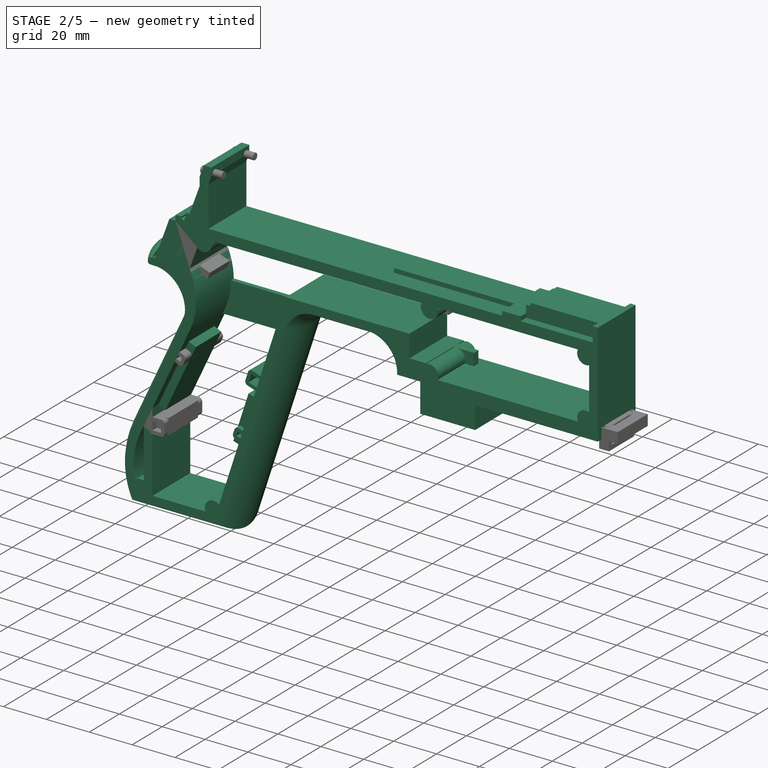
[diagram: stage 2 of 5 — iso view after this stage's code; geometry added in this stage tinted green]
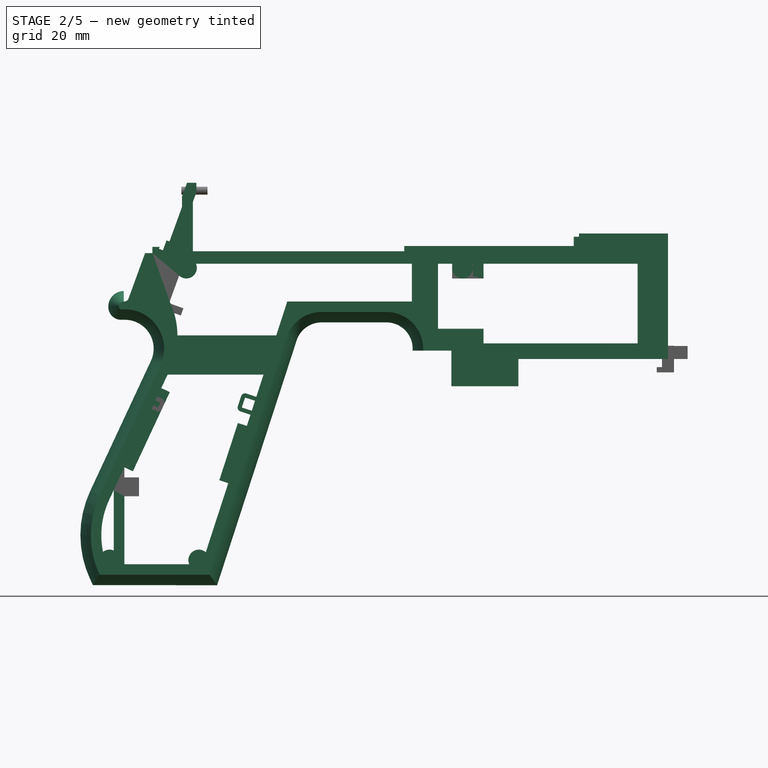
[diagram: stage 2 of 5 — front view after this stage's code; geometry added in this stage tinted green]
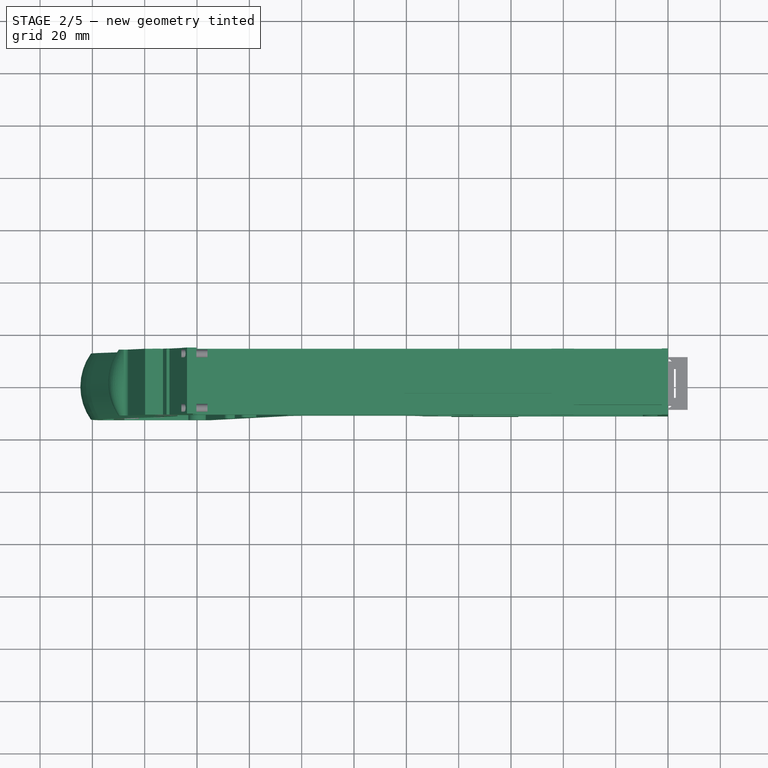
[diagram: stage 2 of 5 — top view after this stage's code; geometry added in this stage tinted green]
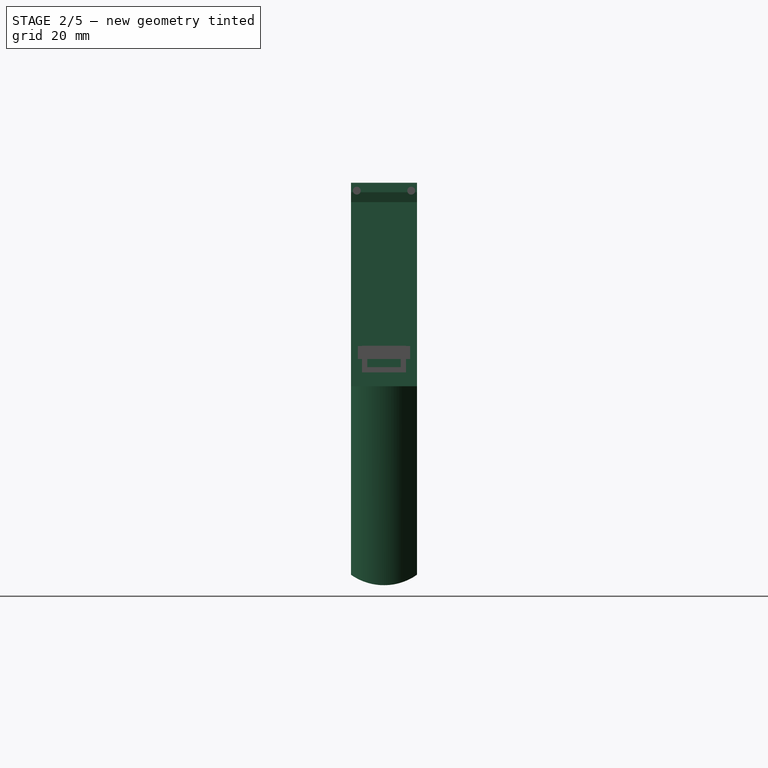
[diagram: stage 2 of 5 — right view after this stage's code; geometry added in this stage tinted green]
FEATURE [Sketcher::SketchObject] Sketch  label="corpo principale"
  ArcFitTolerance = 1e-06
  AttacherType = Attacher::AttachEngine3D
  AttachmentSupport = -> [XZ_Plane]
  FullyConstrained = true
  MakeInternals = false
  MapMode = 5
  Placement = pos=(0,0,0) rot=(1,0,0;1.5708rad)
  sketch-geometry (65):
    g0: LineSegment StartX=0 StartY=0 StartZ=0 EndX=-57.2 EndY=0 EndZ=0
    g1: LineSegment StartX=-57.2 StartY=0 StartZ=0 EndX=-57.2 EndY=-10.4 EndZ=0
    g2: LineSegment StartX=-57.2 StartY=-10.4 StartZ=0 EndX=-82.8 EndY=-10.4 EndZ=0
    g3: LineSegment StartX=-82.8 StartY=-10.4 StartZ=0 EndX=-82.8 EndY=3.2 EndZ=0
    g4: LineSegment StartX=-82.8 StartY=3.2 StartZ=0 EndX=-93.6 EndY=3.2 EndZ=0
    g5: LineSegment StartX=-93.6 StartY=3.2 StartZ=0 EndX=-93.6 EndY=4 EndZ=0
    g6: LineSegment StartX=-107.6 StartY=18 StartZ=0 EndX=-132.428 EndY=18 EndZ=0
    g7: LineSegment StartX=-145.743 StartY=8.32624 StartZ=0 EndX=-175.232 EndY=-82.4316 EndZ=0
    g8: LineSegment StartX=-175.232 StartY=-82.4316 StartZ=0 EndX=-217.232 EndY=-82.4316 EndZ=0
    g9: LineSegment StartX=-217.232 StartY=-52.1862 StartZ=0 EndX=-193.988 EndY=-2.33927 EndZ=0
    g10: LineSegment StartX=-206.196 StartY=23.0857 StartZ=0 EndX=-199.861 EndY=40.4914 EndZ=0
    g11: LineSegment StartX=-199.861 StartY=40.4914 StartZ=0 EndX=-197.061 EndY=40.4914 EndZ=0
    g12: LineSegment StartX=-197.061 StartY=40.4914 StartZ=0 EndX=-197.061 EndY=42.8914 EndZ=0
    g13: LineSegment StartX=-197.061 StartY=42.8914 StartZ=0 EndX=-194.261 EndY=42.8914 EndZ=0
    g14: LineSegment StartX=-194.261 StartY=42.8914 StartZ=0 EndX=-194.535 EndY=42.1397 EndZ=0
    g15: LineSegment StartX=-194.535 StartY=42.1397 StartZ=0 EndX=-193.031 EndY=41.5924 EndZ=0
    g16: LineSegment StartX=-193.031 StartY=41.5924 StartZ=0 EndX=-191.663 EndY=45.3512 EndZ=0
    g17: LineSegment StartX=-191.663 StartY=45.3512 StartZ=0 EndX=-190.536 EndY=44.9408 EndZ=0
    g18: LineSegment StartX=-190.536 StartY=44.9408 StartZ=0 EndX=-185.747 EndY=58.0965 EndZ=0
    g19: LineSegment StartX=-185.747 StartY=58.0965 StartZ=0 EndX=-185.747 EndY=62.0965 EndZ=0
    g20: LineSegment StartX=-185.747 StartY=62.0965 StartZ=0 EndX=-183.832 EndY=67.3588 EndZ=0
    g21: LineSegment StartX=-183.832 StartY=67.3588 StartZ=0 EndX=-180.232 EndY=67.3588 EndZ=0
    g22: LineSegment StartX=-180.232 StartY=67.3588 StartZ=0 EndX=-180.232 EndY=63.7588 EndZ=0
    g23: LineSegment StartX=-180.232 StartY=63.7588 StartZ=0 EndX=-181.6 EndY=60 EndZ=0
    g24: LineSegment StartX=-181.6 StartY=60 StartZ=0 EndX=-181.6 EndY=41.2 EndZ=0
    g25: LineSegment StartX=-181.6 StartY=41.2 StartZ=0 EndX=-100.8 EndY=41.2 EndZ=0
    g26: LineSegment StartX=-36 StartY=43.2 StartZ=0 EndX=-36 EndY=41.2 EndZ=0
    g27: LineSegment StartX=0 StartY=48 StartZ=0 EndX=0 EndY=0 EndZ=0
    g28: LineSegment StartX=-209.901 StartY=19.85 StartZ=0 EndX=-209.901 EndY=20.1 EndZ=0
    g29: LineSegment StartX=-208.001 StartY=22 StartZ=0 EndX=-207.747 EndY=22 EndZ=0
    g30: LineSegment StartX=-207.583 StartY=19 StartZ=0 EndX=-209.051 EndY=19 EndZ=0
    g31: ArcOfCircle CenterX=-208.001 CenterY=20.1 CenterZ=0 NormalX=0 NormalY=0 NormalZ=1 AngleXU=0 Radius=1.9 StartAngle=1.5708 EndAngle=3.14159
    g32: GeomPoint [constr] X=-209.901 Y=22 Z=0
    g33: ArcOfCircle CenterX=-209.051 CenterY=19.85 CenterZ=0 NormalX=0 NormalY=0 NormalZ=1 AngleXU=0 Radius=0.85 StartAngle=3.14159 EndAngle=4.71239
    g34: GeomPoint [constr] X=-209.901 Y=19 Z=0
    g35: ArcOfCircle CenterX=-207.747 CenterY=23.65 CenterZ=0 NormalX=0 NormalY=0 NormalZ=1 AngleXU=0 Radius=1.65 StartAngle=4.71239 EndAngle=5.93412
    g36: GeomPoint [constr] X=-206.591 Y=22 Z=0
    g37: LineSegment StartX=-4 StartY=6 StartZ=0 EndX=-4 EndY=36.4 EndZ=0
    g38: LineSegment StartX=-4 StartY=36.4 StartZ=0 EndX=-185.2 EndY=36.4 EndZ=0
    g39: LineSegment StartX=-185.2 StartY=36.4 StartZ=0 EndX=-190.441 EndY=22 EndZ=0
    g40: LineSegment StartX=-214.575 StartY=-78.4316 StartZ=0 EndX=-178.142 EndY=-78.4316 EndZ=0
    g41: LineSegment StartX=-178.142 StartY=-78.4316 StartZ=0 EndX=-145.51 EndY=22 EndZ=0
    g42: LineSegment StartX=-145.51 StartY=22 StartZ=0 EndX=-87.91 EndY=22 EndZ=0
    g43: LineSegment StartX=-87.91 StartY=22 StartZ=0 EndX=-87.91 EndY=11.6 EndZ=0
    g44: LineSegment StartX=-87.91 StartY=11.6 StartZ=0 EndX=-80.11 EndY=11.6 EndZ=0
    g45: LineSegment StartX=-80.11 StartY=11.6 StartZ=0 EndX=-80.11 EndY=6 EndZ=0
    g46: LineSegment StartX=-80.11 StartY=6 StartZ=0 EndX=-4 EndY=6 EndZ=0
    g47: LineSegment StartX=-190.363 StartY=-4.02975 StartZ=0 EndX=-213.607 EndY=-53.8767 EndZ=0
    g48: ArcOfCircle CenterX=-132.428 CenterY=4 CenterZ=0 NormalX=0 NormalY=0 NormalZ=1 AngleXU=0 Radius=14 StartAngle=1.5708 EndAngle=2.82743
    g49: GeomPoint [constr] X=-142.6 Y=18 Z=0
    g50: ArcOfCircle CenterX=-107.6 CenterY=4 CenterZ=0 NormalX=0 NormalY=0 NormalZ=1 AngleXU=0 Radius=14 StartAngle=0 EndAngle=1.5708
    g51: GeomPoint [constr] X=-93.6 Y=18 Z=0
    g52: ArcOfCircle CenterX=-184.801 CenterY=-67.3089 CenterZ=0 NormalX=0 NormalY=0 NormalZ=1 AngleXU=0 Radius=35.7833 StartAngle=2.70526 EndAngle=3.57792
    g53: ArcOfCircle CenterX=-207.583 CenterY=4 CenterZ=0 NormalX=0 NormalY=0 NormalZ=1 AngleXU=0 Radius=15 StartAngle=5.84685 EndAngle=7.85398
    g54: LineSegment [constr] StartX=-213.607 StartY=-53.8767 StartZ=0 EndX=-217.232 EndY=-52.1862 EndZ=0
    g55: ArcOfCircle CenterX=-184.801 CenterY=-67.3089 CenterZ=0 NormalX=0 NormalY=0 NormalZ=1 AngleXU=0 Radius=31.7833 StartAngle=2.70526 EndAngle=3.49911
    g56: ArcOfCircle CenterX=-218.095 CenterY=8.90192 CenterZ=0 NormalX=0 NormalY=0 NormalZ=1 AngleXU=0 Radius=30.5989 StartAngle=5.84685 EndAngle=6.72553
    g57: LineSegment StartX=-44.6 StartY=43.2 StartZ=0 EndX=-36 EndY=43.2 EndZ=0
    g58: LineSegment StartX=-100.8 StartY=41.2 StartZ=0 EndX=-44.6 EndY=41.2 EndZ=0
    g59: LineSegment StartX=-44.6 StartY=41.2 StartZ=0 EndX=-44.6 EndY=43.2 EndZ=0
    g60: LineSegment StartX=-2.4 StartY=48 StartZ=0 EndX=0 EndY=48 EndZ=0
    g61: LineSegment StartX=-36 StartY=41.2 StartZ=0 EndX=-2.4 EndY=41.2 EndZ=0
    g62: LineSegment StartX=-2.4 StartY=41.2 StartZ=0 EndX=-2.4 EndY=48 EndZ=0
    g63: LineSegment [constr] StartX=-181.6 StartY=36.4 StartZ=0 EndX=-152.209 EndY=36.4 EndZ=0
    g64: LineSegment [constr] StartX=-181.6 StartY=36.4 StartZ=0 EndX=-130.41 EndY=36.4 EndZ=0
  constraints (183):
    c: Coincident(g-1,g0)
    c: PointOnObject(g0,g-1)
    c: Coincident(g0,g1)
    c: Vertical(g1)
    c: Coincident(g1,g2)
    c: Horizontal(g2)
    c: Coincident(g2,g3)
    c: Vertical(g3)
    c: Coincident(g3,g4)
    c: Coincident(g4,g5)
    c: Vertical(g5)
    c: Horizontal(g6)
    c: Coincident(g7,g8)
    c: Horizontal(g8)
    c: Coincident(g10,g11)
    c: Horizontal(g11)
    c: Coincident(g11,g12)
    c: Vertical(g12)
    c: Coincident(g12,g13)
    c: Horizontal(g13)
    c: Coincident(g13,g14)
    c: Coincident(g14,g15)
    c: Coincident(g15,g16)
    c: Coincident(g16,g17)
    c: Coincident(g17,g18)
    c: Coincident(g18,g19)
    c: Vertical(g19)
    c: Coincident(g19,g20)
    c: Coincident(g20,g21)
    c: Horizontal(g21)
    c: Coincident(g21,g22)
    c: Vertical(g22)
    c: Coincident(g22,g23)
    c: Coincident(g23,g24)
    c: Vertical(g24)
    c: Coincident(g24,g25)
    c: Horizontal(g25)
    c: Coincident(g57,g26)
    c: Vertical(g26)
    c: Coincident(g26,g61)
    c: PointOnObject(g60,g-2)
    c: Coincident(g60,g27)
    c: Coincident(g27,g0)
    c: DistanceY(g27,g27) = 48
    c: DistanceY(g1,g1) = 10.4
    c: DistanceX(g0,g0) = 57.2
    c: DistanceX(g2,g2) = 25.6
    c: Horizontal(g4)
    c: DistanceY(g3,g3) = 13.6
    c: DistanceX(g4,g4) = 10.8
    c: DistanceY(g5,g51) = 14.8
    c: DistanceX(g49,g51) = 49
    c: Distance(g7,g49) = 105.6
    c: DistanceX(g61,g60) = 36
    c: DistanceX(g25,g25) = 80.8
    c: DistanceY(g24,g24) = 18.8
    c: DistanceY(g22,g22) = 3.6
    c: Distance(g23) = 4
    c: Angle(g-1,g23) = 1.22173
    c: DistanceX(g21,g21) = 3.6
    c: Distance(g20) = 5.6
    c: Angle(g-1,g20) = 1.22173
    c: DistanceY(g19,g19) = 4
    c: Distance(g18) = 14
    c: Angle(g-1,g18) = 1.22173
    c: Distance(g17) = 1.2
    c: Distance(g16) = 4
    c: Angle(g16) = 1.22173
    c: Perpendicular(g18,g17)
    c: Distance(g15) = 1.6
    c: Perpendicular(g16,g15)
    c: Distance(g14) = 0.8
    c: DistanceX(g13,g13) = 2.8
    c: Perpendicular(g15,g14)
    c: DistanceY(g12,g12) = 2.4
    c: DistanceX(g11,g11) = 2.8
    c: Distance(g9) = 55
    c: Angle(g9,g-1) = 2.00713
    c: Horizontal(g29)
    c: Vertical(g28)
    c: Horizontal(g30)
    c: PointOnObject(g32,g29)
    c: PointOnObject(g32,g28)
    c: Tangent(g29,g31) = 1.5708
    c: Tangent(g28,g31) = 1.5708
    c: PointOnObject(g34,g28)
    c: PointOnObject(g34,g30)
    c: Tangent(g28,g33) = 1.5708
    c: Tangent(g30,g33) = 1.5708
    c: PointOnObject(g36,g29)
    c: PointOnObject(g36,g10)
    c: Tangent(g29,g35) = -1.5708
    c: Tangent(g10,g35) = -1.5708
    c: Angle(g-1,g10) = 1.22173
    c: Radius(g35) = 1.65
    c: Vertical(g37)
    c: Coincident(g37,g38)
    c: Horizontal(g38)
    c: Coincident(g38,g39)
    c: Horizontal(g40)
    c: Coincident(g40,g41)
    c: Coincident(g41,g42)
    c: Horizontal(g42)
    c: Coincident(g42,g43)
    c: Vertical(g43)
    c: Coincident(g43,g44)
    c: Horizontal(g44)
    c: Coincident(g44,g45)
    c: Vertical(g45)
    c: Coincident(g45,g46)
    c: Coincident(g46,g37)
    c: Horizontal(g46)
    c: DistanceY(g0,g37) = 6
    c: DistanceX(g37,g0) = 4
    c: DistanceY(g37,g25) = 4.8
    c: DistanceX(g38,g38) = 181.2
    c: DistanceX(g42,g42) = 57.6
    c: DistanceY(g49,g41) = 4
    c: DistanceX(g41,g49) = 2.91
    c: DistanceY(g43,g43) = 10.4
    c: DistanceX(g44,g44) = 7.8
    c: DistanceY(g7,g40) = 4
    c: Distance(g47) = 55
    c: Angle(g-1,g39) = 1.22173
    c: PointOnObject(g49,g7)
    c: PointOnObject(g49,g6)
    c: Tangent(g7,g48) = -1.5708
    c: Tangent(g6,g48) = -1.5708
    c: PointOnObject(g51,g5)
    c: PointOnObject(g51,g6)
    c: Tangent(g5,g50) = -1.5708
    c: Tangent(g6,g50) = -1.5708
    c: Radius(g50) = 14
    c: Radius(g48) = 14
    c: DistanceX(g8,g8) = 42
    c: Angle(g7,g-1) = 1.88496
    c: Parallel(g41,g7)
    c: Parallel(g47,g9)
    c: Coincident(g52,g8)
    c: Tangent(g52,g9) = 1.5708
    c: DistanceX(g9,g8) = 0
    c: Tangent(g53,g9) = -1.5708
    c: Tangent(g53,g30) = -1.5708
    c: Diameter(g53) = 30
    c: DistanceY(g53,g0) = -4
    c: Coincident(g54,g47)
    c: Distance(g54) = 4
    c: Coincident(g54,g9)
    c: Coincident(g55,g40)
    c: Tangent(g55,g47) = -1.5708
    c: Coincident(g52,g55)
    c: Coincident(g56,g39)
    c: Tangent(g56,g47) = 1.5708
    c: Horizontal(g57)
    c: DistanceX(g57,g57) = 8.6
    c: Coincident(g58,g25)
    c: Horizontal(g58)
    c: Coincident(g59,g58)
    c: Vertical(g59)
    c: DistanceY(g58,g57) = 2
    c: DistanceX(g58,g58) = 56.2
    c: Coincident(g59,g57)
    c: DistanceY(g41,g36) = 0
    c: DistanceY(g36,g39) = 0
    c: DistanceY(g28,g28) = 0.25
    c: DistanceX(g30,g36) = 2.46
    c: DistanceX(g28,g29) = 1.9
    c: Coincident(g62,g60)
    c: Horizontal(g60)
    c: DistanceX(g62,g27) = 2.4
    c: Coincident(g61,g62)
    c: DistanceY(g26,g26) = 2
    c: Vertical(g62)
    c: DistanceY(g61,g60) = 6.8
    c: Horizontal(g61)
    c: Distance(g63) = 29.391
    c: PointOnObject(g63,g38)
    c: PointOnObject(g63,g38)
    c: Distance(g64) = 51.19
    c: PointOnObject(g64,g38)
    c: PointOnObject(g64,g38)
    c: DistanceX(g24,g63) = 0
    c: DistanceX(g24,g64) = 0
FEATURE [Part::Extrusion] Extrude  label="Extrude corpo principale"
  Base = -> Sketch
  Dir = (0,-1,2e-16)
  DirMode = 2
  FaceMakerClass = Part::FaceMakerBullseye
  FaceMakerMode = 3
  LengthFwd = 25.2
  LengthRev = 12.6
  Solid = true
  Symmetric = true
FEATURE [Sketcher::SketchObject] Sketch002  label="scavo grilletto"
  ArcFitTolerance = 1e-06
  AttachmentSupport = -> [XZ_Plane]
  ExternalGeometry = -> [Sketch]
  FullyConstrained = true
  MakeInternals = false
  MapMode = 5
  Placement = pos=(0,0,0) rot=(1,0,0;1.5708rad)
  sketch-geometry (4):
    g0: LineSegment StartX=-89.51 StartY=22 StartZ=0 EndX=-152.71 EndY=22 EndZ=0
    g1: LineSegment StartX=-152.71 StartY=22 StartZ=0 EndX=-167.006 EndY=-22 EndZ=0
    g2: LineSegment StartX=-167.006 StartY=-22 StartZ=0 EndX=-89.51 EndY=-22 EndZ=0
    g3: LineSegment StartX=-89.51 StartY=-22 StartZ=0 EndX=-89.51 EndY=22 EndZ=0
  constraints (12):
    c: Horizontal(g0)
    c: Coincident(g0,g1)
    c: Coincident(g1,g2)
    c: Horizontal(g2)
    c: Coincident(g2,g3)
    c: Coincident(g3,g0)
    c: Vertical(g3)
    c: Angle(g1,g0) = 1.88496
    c: DistanceY(g3,g3) = 44
    c: DistanceX(g0,g0) = 63.2
    c: DistanceX(g0,g-3) = 1.6
    c: DistanceY(g-3,g0) = 0
FEATURE [Sketcher::SketchObject] Sketch004  label="traiettoria arrotondamento impugnatura anteriore"
  ArcFitTolerance = 1e-06
  AttachmentSupport = -> [XZ_Plane]
  ExternalGeometry = -> [Sketch]
  FullyConstrained = true
  MakeInternals = false
  MapMode = 5
  Placement = pos=(0,0,0) rot=(1,0,0;1.5708rad)
  sketch-geometry (13):
    g0: LineSegment StartX=-175.232 StartY=-82.4316 StartZ=0 EndX=-145.743 EndY=8.32624 EndZ=0
    g1: LineSegment StartX=-93.6 StartY=3.2 StartZ=0 EndX=-93.6 EndY=4 EndZ=0
    g2: LineSegment StartX=-132.428 StartY=18 StartZ=0 EndX=-107.6 EndY=18 EndZ=0
    g3: ArcOfCircle CenterX=-132.428 CenterY=4 CenterZ=0 NormalX=0 NormalY=0 NormalZ=1 AngleXU=0 Radius=14 StartAngle=1.5708 EndAngle=2.82743
    g4: ArcOfCircle CenterX=-107.6 CenterY=4 CenterZ=0 NormalX=0 NormalY=0 NormalZ=1 AngleXU=0 Radius=14 StartAngle=0 EndAngle=1.5708
    g5: LineSegment StartX=-175.232 StartY=-82.4316 StartZ=0 EndX=-217.232 EndY=-82.4316 EndZ=0
    g6: LineSegment StartX=-217.232 StartY=-52.1862 StartZ=0 EndX=-193.988 EndY=-2.33927 EndZ=0
    g7: LineSegment StartX=-209.051 StartY=19 StartZ=0 EndX=-207.583 EndY=19 EndZ=0
    g8: LineSegment StartX=-209.901 StartY=20.1 StartZ=0 EndX=-209.901 EndY=19.85 EndZ=0
    g9: ArcOfCircle CenterX=-184.801 CenterY=-67.3089 CenterZ=0 NormalX=0 NormalY=0 NormalZ=1 AngleXU=0 Radius=35.7833 StartAngle=2.70526 EndAngle=3.57792
    g10: ArcOfCircle CenterX=-207.583 CenterY=4 CenterZ=0 NormalX=0 NormalY=0 NormalZ=1 AngleXU=0 Radius=15 StartAngle=5.84685 EndAngle=7.85398
    g11: ArcOfCircle CenterX=-209.051 CenterY=19.85 CenterZ=0 NormalX=0 NormalY=0 NormalZ=1 AngleXU=0 Radius=0.85 StartAngle=3.14159 EndAngle=4.71239
    g12: ArcOfCircle CenterX=-208.001 CenterY=20.1 CenterZ=0 NormalX=0 NormalY=0 NormalZ=1 AngleXU=0 Radius=1.9 StartAngle=1.5708 EndAngle=3.14159
  constraints (26):
    c: Coincident(g0,g-3)
    c: Coincident(g0,g-6)
    c: Coincident(g1,g-8)
    c: Coincident(g1,g-7)
    c: Coincident(g2,g-5)
    c: Coincident(g2,g-4)
    c: Coincident(g3,g2)
    c: Tangent(g3,g0) = 1.5708
    c: Coincident(g4,g1)
    c: Tangent(g4,g2) = 1.5708
    c: Coincident(g5,g0)
    c: Coincident(g5,g-9)
    c: Coincident(g6,g-12)
    c: Coincident(g6,g-11)
    c: Coincident(g7,g-15)
    c: Coincident(g7,g-14)
    c: Coincident(g8,g-16)
    c: Coincident(g8,g-17)
    c: Tangent(g9,g6) = 1.5708
    c: Coincident(g9,g5)
    c: Coincident(g10,g7)
    c: Tangent(g10,g6) = -1.5708
    c: Tangent(g11,g7) = -1.5708
    c: Coincident(g11,g8)
    c: Tangent(g12,g8) = -1.5708
    c: Coincident(g12,g-17)
FEATURE [PartDesign::Plane] DatumPlane  label="Piano per disegno arrotondamento impugnatura"
  AttachmentSupport = -> [Sketch]
  Length = 73.6581
  MapMode = 7
  Placement = pos=(-145.743,1.8e-15,8.32624) rot=(0.154555,0.154555,0.97582;1.59527rad)
  ResizeMode = 0
  Width = 303.511
FEATURE [Sketcher::SketchObject] Sketch005  label="forma arrotondamento impugnatura anteriore"
  ArcFitTolerance = 1e-06
  AttachmentSupport = -> [DatumPlane]
  FullyConstrained = true
  MakeInternals = false
  MapMode = 5
  Placement = pos=(-145.743,1.8e-15,8.32624) rot=(0.154555,0.154555,0.97582;1.59527rad)
  sketch-geometry (5):
    g0: GeomPoint [constr] X=0 Y=-4 Z=0
    g1: GeomPoint [constr] X=-12.6 Y=7.1e-15 Z=0
    g2: GeomPoint [constr] X=12.6 Y=4.97e-14 Z=0
    g3: LineSegment StartX=-12.6 StartY=7.1e-15 StartZ=0 EndX=12.6 EndY=4.97e-14 EndZ=0
    g4: ArcOfCircle CenterX=-3.88e-14 CenterY=17.845 CenterZ=0 NormalX=0 NormalY=0 NormalZ=1 AngleXU=0 Radius=21.845 StartAngle=4.09759 EndAngle=5.32718
  constraints (11):
    c: DistanceY(g0,g-1) = 4
    c: DistanceX(g-1,g0) = 0
    c: DistanceX(g1,g-1) = 12.6
    c: DistanceX(g-1,g2) = 12.6
    c: DistanceY(g-1,g2) = 0
    c: DistanceY(g-1,g1) = 0
    c: Coincident(g3,g1)
    c: Coincident(g3,g2)
    c: Coincident(g4,g1)
    c: Coincident(g4,g2)
    c: PointOnObject(g0,g4)
FEATURE [Part::Sweep] Sweep  label="Sweep impugnatura"
  Frenet = true
  Sections = -> [Sketch005]
  Solid = true
  Spine = -> Sketch [Edge32,Edge33,Edge34,Edge35,Edge36,Edge37,Edge38,Edge39,Edge40,Edge41,Edge42,Edge43,Edge44]
  Transition = 1
FEATURE [Part::Extrusion] Extrude005  label="Extrude Rinforzi"
  Base = -> Sketch009
  Dir = (0,-1,2e-16)
  DirMode = 2
  FaceMakerClass = Part::FaceMakerBullseye
  FaceMakerMode = 3
  LengthFwd = 2
  LengthRev = 0
  Placement = pos=(0,12.6,0) rot=(0,0,1;0rad)
  Solid = true
  Symmetric = false
FEATURE [Sketcher::SketchObject] Sketch011  label="fermo grilletto"
  ArcFitTolerance = 1e-06
  AttachmentSupport = -> [XZ_Plane]
  ExternalGeometry = -> [Sketch]
  FullyConstrained = true
  MakeInternals = false
  MapMode = 5
  Placement = pos=(0,0,0) rot=(1,0,0;1.5708rad)
  sketch-geometry (18):
    g0: LineSegment [constr] StartX=-145.51 StartY=22 StartZ=0 EndX=-157.347 EndY=-14.4293 EndZ=0
    g1: LineSegment [constr] StartX=-157.347 StartY=-14.4293 StartZ=0 EndX=-157.841 EndY=-15.951 EndZ=0
    g2: LineSegment StartX=-161.151 StartY=-13.1932 StartZ=0 EndX=-155.825 EndY=-14.9237 EndZ=0
    g3: LineSegment StartX=-163.167 StartY=-14.2205 StartZ=0 EndX=-164.403 EndY=-18.0247 EndZ=0
    g4: LineSegment StartX=-163.376 StartY=-20.0408 StartZ=0 EndX=-158.05 EndY=-21.7713 EndZ=0
    g5: LineSegment StartX=-158.05 StartY=-21.7713 StartZ=0 EndX=-155.825 EndY=-14.9237 EndZ=0
    g6: LineSegment StartX=-161.645 StartY=-14.7149 StartZ=0 EndX=-157.841 EndY=-15.951 EndZ=0
    g7: LineSegment StartX=-157.841 StartY=-15.951 StartZ=0 EndX=-159.077 EndY=-19.7552 EndZ=0
    g8: LineSegment StartX=-159.077 StartY=-19.7552 StartZ=0 EndX=-162.881 EndY=-18.5191 EndZ=0
    g9: LineSegment StartX=-162.881 StartY=-18.5191 StartZ=0 EndX=-161.645 EndY=-14.7149 EndZ=0
    g10: LineSegment [constr] StartX=-161.645 StartY=-14.7149 StartZ=0 EndX=-161.151 EndY=-13.1932 EndZ=0
    g11: LineSegment [constr] StartX=-159.077 StartY=-19.7552 StartZ=0 EndX=-157.555 EndY=-20.2496 EndZ=0
    g12: LineSegment [constr] StartX=-159.077 StartY=-19.7552 StartZ=0 EndX=-159.572 EndY=-21.2769 EndZ=0
    g13: LineSegment [constr] StartX=-161.645 StartY=-14.7149 StartZ=0 EndX=-163.167 EndY=-14.2205 EndZ=0
    g14: ArcOfCircle CenterX=-161.645 CenterY=-14.7149 CenterZ=0 NormalX=0 NormalY=0 NormalZ=1 AngleXU=0 Radius=1.6 StartAngle=1.25664 EndAngle=2.82743
    g15: GeomPoint [constr] X=-162.673 Y=-12.6988 Z=0
    g16: ArcOfCircle CenterX=-162.881 CenterY=-18.5191 CenterZ=0 NormalX=0 NormalY=0 NormalZ=1 AngleXU=0 Radius=1.6 StartAngle=2.82743 EndAngle=4.39823
    g17: GeomPoint [constr] X=-164.897 Y=-19.5464 Z=0
  constraints (48):
    c: Parallel(g0,g-3)
    c: Distance(g0) = 38.304
    c: Coincident(g0,g-3)
    c: Parallel(g1,g-3)
    c: Distance(g1) = 1.6
    c: Coincident(g1,g0)
    c: Coincident(g5,g4)
    c: Coincident(g5,g2)
    c: Coincident(g7,g6)
    c: Coincident(g8,g7)
    c: Coincident(g9,g8)
    c: Coincident(g9,g6)
    c: Parallel(g7,g-3)
    c: Parallel(g9,g7)
    c: Perpendicular(g6,g7)
    c: Parallel(g6,g8)
    c: Distance(g6) = 4
    c: Distance(g9) = 4
    c: Parallel(g5,g7)
    c: Parallel(g9,g3)
    c: Parallel(g2,g6)
    c: Parallel(g4,g8)
    c: Parallel(g13,g6)
    c: Parallel(g10,g9)
    c: Parallel(g11,g8)
    c: Parallel(g12,g7)
    c: Distance(g10) = 1.6
    c: Distance(g13) = 1.6
    c: Distance(g12) = 1.6
    c: Distance(g11) = 1.6
    c: Coincident(g10,g6)
    c: Coincident(g13,g6)
    c: Coincident(g12,g7)
    c: Coincident(g11,g7)
    c: Distance(g10,g15) = 1.6
    c: Distance(g15,g13) = 1.6
    c: Distance(g4,g12) = 1.6
    c: Distance(g4,g11) = 1.6
    c: PointOnObject(g15,g2)
    c: Tangent(g3,g14) = -1.5708
    c: Tangent(g2,g14) = 1.5708
    c: PointOnObject(g17,g4)
    c: PointOnObject(g17,g3)
    c: Tangent(g4,g16) = -1.5708
    c: Tangent(g3,g16) = -1.5708
    c: Equal(g16,g14)
    c: Coincident(g16,g8)
    c: Coincident(g6,g1)
FEATURE [Part::Extrusion] Extrude007  label="Extrude fermo grilletto"
  Base = -> Sketch011
  Dir = (0,-1,2e-16)
  DirMode = 2
  FaceMakerClass = Part::FaceMakerBullseye
  FaceMakerMode = 3
  LengthFwd = 25.2
  LengthRev = 0
  Solid = true
  Symmetric = true
FEATURE [Sketcher::SketchObject] Sketch015  label="guida rail"
  ArcFitTolerance = 1e-06
  AttachmentSupport = -> [XZ_Plane]
  ExternalGeometry = -> [Sketch]
  FullyConstrained = true
  MakeInternals = false
  MapMode = 5
  Placement = pos=(0,0,0) rot=(1,0,0;1.5708rad)
  sketch-geometry (4):
    g0: LineSegment StartX=-100.8 StartY=43.2 StartZ=0 EndX=-44.6 EndY=43.2 EndZ=0
    g1: LineSegment StartX=-44.6 StartY=43.2 StartZ=0 EndX=-44.6 EndY=41.2 EndZ=0
    g2: LineSegment StartX=-44.6 StartY=41.2 StartZ=0 EndX=-100.8 EndY=41.2 EndZ=0
    g3: LineSegment StartX=-100.8 StartY=41.2 StartZ=0 EndX=-100.8 EndY=43.2 EndZ=0
  constraints (9):
    c: Horizontal(g0)
    c: Coincident(g1,g0)
    c: Coincident(g2,g1)
    c: Coincident(g3,g2)
    c: Coincident(g3,g0)
    c: Vertical(g3)
    c: Coincident(g2,g-3)
    c: Coincident(g1,g-3)
    c: Coincident(g0,g-4)
FEATURE [Part::Extrusion] Extrude011  label="Extrude guida rail"
  Base = -> Sketch015
  Dir = (0,-1,2e-16)
  DirMode = 2
  FaceMakerClass = Part::FaceMakerBullseye
  FaceMakerMode = 3
  LengthFwd = 9
  LengthRev = 0
  Solid = true
  Symmetric = true
FEATURE [Sketcher::SketchObject] Sketch016  label="guide per coperture laterali"
  ArcFitTolerance = 1e-06
  AttachmentSupport = -> [XZ_Plane]
  ExternalGeometry = -> [Sketch]
  FullyConstrained = true
  MakeInternals = false
  MapMode = 5
  Placement = pos=(0,0,0) rot=(1,0,0;1.5708rad)
  sketch-geometry (14):
    g0: Circle CenterX=-5.6 CenterY=7.6 CenterZ=0 NormalX=0 NormalY=0 NormalZ=1 AngleXU=0 Radius=1.6
    g1: Circle CenterX=-5.6 CenterY=7.6 CenterZ=0 NormalX=0 NormalY=0 NormalZ=1 AngleXU=0 Radius=4
    g2: Circle CenterX=-5.6 CenterY=34.8 CenterZ=0 NormalX=0 NormalY=0 NormalZ=1 AngleXU=0 Radius=1.6
    g3: Circle CenterX=-5.6 CenterY=34.8 CenterZ=0 NormalX=0 NormalY=0 NormalZ=1 AngleXU=0 Radius=4
    g4: Circle CenterX=-184.08 CenterY=34.8 CenterZ=0 NormalX=0 NormalY=0 NormalZ=1 AngleXU=0 Radius=1.6
    g5: Circle CenterX=-184.08 CenterY=34.8 CenterZ=0 NormalX=0 NormalY=0 NormalZ=1 AngleXU=0 Radius=4
    g6: Circle CenterX=-179.305 CenterY=-76.8316 CenterZ=0 NormalX=0 NormalY=0 NormalZ=1 AngleXU=0 Radius=1.6
    g7: Circle CenterX=-179.305 CenterY=-76.8316 CenterZ=0 NormalX=0 NormalY=0 NormalZ=1 AngleXU=0 Radius=4
    g8: Circle CenterX=-213.443 CenterY=-76.8316 CenterZ=0 NormalX=0 NormalY=0 NormalZ=1 AngleXU=0 Radius=1.6
    g9: Circle CenterX=-213.443 CenterY=-76.8316 CenterZ=0 NormalX=0 NormalY=0 NormalZ=1 AngleXU=0 Radius=4
    g10: Circle CenterX=-78.51 CenterY=7.6 CenterZ=0 NormalX=0 NormalY=0 NormalZ=1 AngleXU=0 Radius=1.6
    g11: Circle CenterX=-78.51 CenterY=7.6 CenterZ=0 NormalX=0 NormalY=0 NormalZ=1 AngleXU=0 Radius=4
    g12: Circle CenterX=-78.51 CenterY=34.8 CenterZ=0 NormalX=0 NormalY=0 NormalZ=1 AngleXU=0 Radius=1.6
    g13: Circle CenterX=-78.51 CenterY=34.8 CenterZ=0 NormalX=0 NormalY=0 NormalZ=1 AngleXU=0 Radius=4
  constraints (35):
    c: Diameter(g0) = 3.2
    c: Diameter(g1) = 8
    c: Coincident(g0,g1)
    c: Diameter(g2) = 3.2
    c: Diameter(g3) = 8
    c: Coincident(g3,g2)
    c: Tangent(g2,g-7)
    c: Diameter(g4) = 3.2
    c: Diameter(g5) = 8
    c: Coincident(g5,g4)
    c: Tangent(g4,g-7)
    c: Tangent(g4,g-8)
    c: Diameter(g6) = 3.2
    c: Diameter(g7) = 8
    c: Coincident(g7,g6)
    c: Tangent(g6,g-9)
    c: Tangent(g6,g-10)
    c: Diameter(g8) = 3.2
    c: Diameter(g9) = 8
    c: Coincident(g9,g8)
    c: Tangent(g8,g-10)
    c: Tangent(g8,g-11)
    c: Diameter(g10) = 3.2
    c: Diameter(g11) = 8
    c: Diameter(g12) = 3.2
    c: Diameter(g13) = 8
    c: Coincident(g12,g13)
    c: Coincident(g10,g11)
    c: Tangent(g12,g-7)
    c: DistanceX(g12,g10) = 0
    c: Tangent(g2,g-6)
    c: Tangent(g0,g-6)
    c: Tangent(g0,g-3)
    c: Tangent(g10,g-3)
    c: Tangent(g10,g-4)
FEATURE [Part::Extrusion] Extrude012  label="extrude guide per coperture laterali"
  Base = -> Sketch016
  Dir = (0,-1,2e-16)
  DirMode = 2
  FaceMakerClass = Part::FaceMakerBullseye
  FaceMakerMode = 3
  LengthFwd = 25.2
  LengthRev = 0
  Solid = true
  Symmetric = true
FEATURE [Sketcher::SketchObject] Sketch017  label="supporto CAM"
  ArcFitTolerance = 1e-06
  AttachmentSupport = -> [XZ_Plane]
  ExternalGeometry = -> [Sketch]
  FullyConstrained = true
  MakeInternals = false
  MapMode = 5
  Placement = pos=(0,0,0) rot=(1,0,0;1.5708rad)
  sketch-geometry (6):
    g0: LineSegment StartX=-2.4 StartY=48 StartZ=0 EndX=-2.4 EndY=41.2 EndZ=0
    g1: LineSegment StartX=-2.4 StartY=48 StartZ=0 EndX=-34 EndY=48 EndZ=0
    g2: LineSegment StartX=-34 StartY=48 StartZ=0 EndX=-34 EndY=46.72 EndZ=0
    g3: LineSegment StartX=-34 StartY=46.72 StartZ=0 EndX=-36 EndY=46.72 EndZ=0
    g4: LineSegment StartX=-36 StartY=46.72 StartZ=0 EndX=-36 EndY=41.2 EndZ=0
    g5: LineSegment StartX=-36 StartY=41.2 StartZ=0 EndX=-2.4 EndY=41.2 EndZ=0
  constraints (15):
    c: Coincident(g1,g0)
    c: Horizontal(g1)
    c: Coincident(g2,g1)
    c: Vertical(g2)
    c: Coincident(g3,g2)
    c: Horizontal(g3)
    c: Coincident(g4,g3)
    c: Coincident(g5,g4)
    c: DistanceX(g1,g0) = 31.6
    c: Coincident(g5,g0)
    c: Vertical(g4)
    c: DistanceY(g2,g1) = 1.28
    c: Coincident(g0,g-3)
    c: Coincident(g0,g-3)
    c: Coincident(g4,g-4)
FEATURE [Part::Extrusion] Extrude013  label="Extrude supporto CAM"
  Base = -> Sketch017
  Dir = (0,-1,2e-16)
  DirMode = 2
  FaceMakerClass = Part::FaceMakerBullseye
  FaceMakerMode = 3
  LengthFwd = 17.8
  LengthRev = 0
  Solid = true
  Symmetric = true
FEATURE [Sketcher::SketchObject] Sketch018  label="Scavo CAM"
  ArcFitTolerance = 1e-06
  AttachmentSupport = -> [YZ_Plane]
  ExternalGeometry = -> [Sketch]
  FullyConstrained = true
  MakeInternals = false
  MapMode = 5
  Placement = pos=(0,0,0) rot=(0.57735,0.57735,0.57735;2.0944rad)
  sketch-geometry (4):
    g0: LineSegment StartX=-7.73 StartY=48 StartZ=0 EndX=7.73 EndY=48 EndZ=0
    g1: LineSegment [constr] StartX=1.07e-14 StartY=48 StartZ=0 EndX=0 EndY=43.5155 EndZ=0
    g2: ArcOfCircle CenterX=9e-15 CenterY=52.42 CenterZ=0 NormalX=0 NormalY=0 NormalZ=1 AngleXU=0 Radius=8.90445 StartAngle=3.66102 EndAngle=5.76376
    g3: Circle [constr] CenterX=9e-15 CenterY=52.42 CenterZ=0 NormalX=0 NormalY=0 NormalZ=1 AngleXU=0 Radius=8.9
  constraints (13):
    c: Horizontal(g0)
    c: DistanceY(g-3,g0) = 0
    c: DistanceX(g0,g0) = 15.46
    c: DistanceX(g0,g-3) = 7.73
    c: DistanceX(g-3) = 0
    c: Coincident(g1,g-3)
    c: PointOnObject(g1,g-2)
    c: Coincident(g2,g0)
    c: Coincident(g2,g0)
    c: PointOnObject(g1,g2)
    c: Diameter(g3) = 17.8
    c: DistanceY(g1,g3) = 4.42
    c: Coincident(g2,g3)
FEATURE [Part::Extrusion] Extrude014  label="Extrude Scavo CAM"
  Base = -> Sketch018
  Dir = (1,0,0)
  DirMode = 2
  FaceMakerClass = Part::FaceMakerBullseye
  FaceMakerMode = 3
  LengthFwd = -34
  LengthRev = 0
  Solid = true
  Symmetric = false
FEATURE [Sketcher::SketchObject] Sketch019  label="scavo rumble"
  ArcFitTolerance = 1e-06
  AttachmentSupport = -> [XZ_Plane]
  ExternalGeometry = -> [Sketch]
  FullyConstrained = true
  MakeInternals = false
  MapMode = 5
  Placement = pos=(0,0,0) rot=(1,0,0;1.5708rad)
  sketch-geometry (6):
    g0: LineSegment StartX=-164.385 StartY=-24.4404 StartZ=0 EndX=-159.439 EndY=-26.0473 EndZ=0
    g1: LineSegment StartX=-159.439 StartY=-26.0473 StartZ=0 EndX=-166.547 EndY=-47.9216 EndZ=0
    g2: LineSegment StartX=-166.547 StartY=-47.9216 StartZ=0 EndX=-171.492 EndY=-46.3147 EndZ=0
    g3: LineSegment StartX=-171.492 StartY=-46.3147 StartZ=0 EndX=-164.385 EndY=-24.4404 EndZ=0
    g4: LineSegment [constr] StartX=-145.51 StartY=22 StartZ=0 EndX=-160.961 EndY=-25.5528 EndZ=0
    g5: LineSegment [constr] StartX=-159.439 StartY=-26.0473 StartZ=0 EndX=-160.961 EndY=-25.5528 EndZ=0
  constraints (17):
    c: Coincident(g1,g0)
    c: Coincident(g2,g1)
    c: Coincident(g3,g2)
    c: Coincident(g3,g0)
    c: Parallel(g3,g-3)
    c: Parallel(g3,g1)
    c: Perpendicular(g3,g0)
    c: Perpendicular(g2,g3)
    c: Distance(g2,g0) = 23
    c: Parallel(g4,g-3)
    c: Distance(g4) = 50
    c: Coincident(g4,g-3)
    c: Parallel(g5,g0)
    c: Distance(g5) = 1.6
    c: Coincident(g5,g0)
    c: Distance(g5,g0) = 3.6
    c: Coincident(g5,g4)
FEATURE [Part::Extrusion] Extrude015  label="scavo rumble001"
  Base = -> Sketch019
  Dir = (0,-1,2e-16)
  DirMode = 2
  FaceMakerClass = Part::FaceMakerBullseye
  FaceMakerMode = 3
  LengthFwd = 21
  LengthRev = 0
  Solid = true
  Symmetric = true
FEATURE [Sketcher::SketchObject] Sketch020  label="fermo rumble"
  ArcFitTolerance = 1e-06
  AttachmentSupport = -> [XZ_Plane]
  ExternalGeometry = -> [Sketch019,Sketch]
  FullyConstrained = true
  MakeInternals = false
  MapMode = 5
  Placement = pos=(0,0,0) rot=(1,0,0;1.5708rad)
  sketch-geometry (16):
    g0: LineSegment [constr] StartX=-166.709 StartY=-43.2425 StartZ=0 EndX=-168.068 EndY=-47.4271 EndZ=0
    g1: LineSegment [constr] StartX=-168.068 StartY=-47.4271 StartZ=0 EndX=-166.547 EndY=-47.9216 EndZ=0
    g2: LineSegment StartX=-167.993 StartY=-40.7223 StartZ=0 EndX=-166.091 EndY=-41.3404 EndZ=0
    g3: LineSegment StartX=-166.091 StartY=-41.3404 StartZ=0 EndX=-166.709 EndY=-43.2425 EndZ=0
    g4: LineSegment StartX=-166.709 StartY=-43.2425 StartZ=0 EndX=-168.611 EndY=-42.6244 EndZ=0
    g5: LineSegment StartX=-168.611 StartY=-42.6244 StartZ=0 EndX=-167.993 EndY=-40.7223 EndZ=0
    g6: LineSegment StartX=-167.498 StartY=-39.2006 StartZ=0 EndX=-164.074 EndY=-40.3131 EndZ=0
    g7: LineSegment StartX=-164.074 StartY=-40.3131 StartZ=0 EndX=-165.681 EndY=-45.2586 EndZ=0
    g8: LineSegment StartX=-165.681 StartY=-45.2586 StartZ=0 EndX=-169.105 EndY=-44.1461 EndZ=0
    g9: LineSegment StartX=-170.132 StartY=-42.13 StartZ=0 EndX=-169.514 EndY=-40.2279 EndZ=0
    g10: LineSegment [constr] StartX=-169.514 StartY=-40.2279 StartZ=0 EndX=-169.02 EndY=-38.7062 EndZ=0
    g11: LineSegment [constr] StartX=-169.02 StartY=-38.7062 StartZ=0 EndX=-167.498 EndY=-39.2006 EndZ=0
    g12: ArcOfCircle CenterX=-168.611 CenterY=-42.6244 CenterZ=0 NormalX=0 NormalY=0 NormalZ=1 AngleXU=0 Radius=1.6 StartAngle=2.82743 EndAngle=4.39823
    g13: GeomPoint [constr] X=-170.627 Y=-43.6517 Z=0
    g14: ArcOfCircle CenterX=-167.993 CenterY=-40.7223 CenterZ=0 NormalX=0 NormalY=0 NormalZ=1 AngleXU=0 Radius=1.6 StartAngle=1.25664 EndAngle=2.82743
    g15: GeomPoint [constr] X=-169.02 Y=-38.7062 Z=0
  constraints (42):
    c: Parallel(g0,g-4)
    c: Distance(g0) = 4.4
    c: Coincident(g1,g0)
    c: Perpendicular(g0,g1)
    c: Distance(g1) = 1.6
    c: Coincident(g1,g-5)
    c: Coincident(g3,g2)
    c: Coincident(g4,g3)
    c: Coincident(g5,g4)
    c: Coincident(g5,g2)
    c: Parallel(g3,g-4)
    c: Parallel(g3,g5)
    c: Perpendicular(g2,g3)
    c: Parallel(g4,g2)
    c: Distance(g2) = 2
    c: Distance(g3) = 2
    c: Coincident(g7,g6)
    c: Coincident(g8,g7)
    c: Parallel(g7,g-4)
    c: Parallel(g7,g9)
    c: Perpendicular(g6,g7)
    c: Parallel(g6,g8)
    c: Distance(g6,g15) = 5.2
    c: Distance(g7) = 5.2
    c: Coincident(g11,g10)
    c: Parallel(g10,g9)
    c: Parallel(g11,g6)
    c: Distance(g10) = 1.6
    c: Distance(g11) = 1.6
    c: Coincident(g10,g15)
    c: Distance(g11,g2) = 1.6
    c: Distance(g2,g10) = 1.6
    c: PointOnObject(g13,g8)
    c: PointOnObject(g13,g9)
    c: Tangent(g8,g12) = 1.5708
    c: Tangent(g9,g12) = 1.5708
    c: PointOnObject(g15,g9)
    c: Tangent(g6,g14) = 1.5708
    c: Tangent(g9,g14) = 1.5708
    c: Equal(g12,g14)
    c: Coincident(g6,g11)
    c: Coincident(g3,g0)
FEATURE [Part::Extrusion] Extrude016  label="Extrude fermo rumble"
  Base = -> Sketch020
  Dir = (0,-1,2e-16)
  DirMode = 2
  FaceMakerClass = Part::FaceMakerBullseye
  FaceMakerMode = 3
  LengthFwd = 25.2
  LengthRev = 0
  Solid = true
  Symmetric = true
FEATURE [Sketcher::SketchObject] Sketch022  label="fori per M3x5(OD)x6(L)"
  ArcFitTolerance = 1e-06
  AttachmentSupport = -> [XZ_Plane]
  ExternalGeometry = -> [Sketch016]
  FullyConstrained = true
  MakeInternals = false
  MapMode = 5
  Placement = pos=(0,0,0) rot=(1,0,0;1.5708rad)
  sketch-geometry (7):
    g0: Circle CenterX=-5.6 CenterY=34.8 CenterZ=0 NormalX=0 NormalY=0 NormalZ=1 AngleXU=0 Radius=2.5
    g1: Circle CenterX=-5.6 CenterY=7.6 CenterZ=0 NormalX=0 NormalY=0 NormalZ=1 AngleXU=0 Radius=2.5
    g2: Circle CenterX=-78.51 CenterY=34.8 CenterZ=0 NormalX=0 NormalY=0 NormalZ=1 AngleXU=0 Radius=2.5
    g3: Circle CenterX=-78.51 CenterY=7.6 CenterZ=0 NormalX=0 NormalY=0 NormalZ=1 AngleXU=0 Radius=2.5
    g4: Circle CenterX=-184.08 CenterY=34.8 CenterZ=0 NormalX=0 NormalY=0 NormalZ=1 AngleXU=0 Radius=2.5
    g5: Circle CenterX=-179.305 CenterY=-76.8316 CenterZ=0 NormalX=0 NormalY=0 NormalZ=1 AngleXU=0 Radius=2.5
    g6: Circle CenterX=-213.443 CenterY=-76.8316 CenterZ=0 NormalX=0 NormalY=0 NormalZ=1 AngleXU=0 Radius=2.5
  constraints (14):
    c: Diameter(g0) = 5
    c: Diameter(g1) = 5
    c: Diameter(g2) = 5
    c: Diameter(g3) = 5
    c: Diameter(g4) = 5
    c: Diameter(g5) = 5
    c: Diameter(g6) = 5
    c: Coincident(g0,g-8)
    c: Coincident(g1,g-9)
    c: Coincident(g2,g-6)
    c: Coincident(g3,g-7)
    c: Coincident(g4,g-5)
    c: Coincident(g5,g-4)
    c: Coincident(g6,g-3)
FEATURE [Part::Extrusion] Extrude018  label="Extrude fori M3x5x6 - dx"
  Base = -> Sketch022
  Dir = (0,-1,2e-16)
  DirMode = 2
  FaceMakerClass = Part::FaceMakerBullseye
  FaceMakerMode = 3
  LengthFwd = 6.2
  LengthRev = 0
  Placement = pos=(0,-9.5,0) rot=(0,0,1;0rad)
  Solid = true
  Symmetric = true
FEATURE [Sketcher::SketchObject] Sketch023  label="foro anteriore M3x5x6"
  ArcFitTolerance = 1e-06
  AttachmentSupport = -> [YZ_Plane]
  FullyConstrained = true
  MakeInternals = false
  MapMode = 5
  Placement = pos=(0,0,0) rot=(0.57735,0.57735,0.57735;2.0944rad)
  sketch-geometry (2):
    g0: LineSegment [constr] StartX=0 StartY=0 StartZ=0 EndX=0 EndY=38.6 EndZ=0
    g1: Circle CenterX=0 CenterY=38.6 CenterZ=0 NormalX=0 NormalY=0 NormalZ=1 AngleXU=0 Radius=2.5
  constraints (5):
    c: Coincident(g0,g-1)
    c: PointOnObject(g0,g-2)
    c: DistanceY(g0,g0) = 38.6
    c: Diameter(g1) = 5
    c: Coincident(g1,g0)
FEATURE [Part::Extrusion] Extrude020  label="Extrude foro anteriore M3x5x6"
  Base = -> Sketch023
  Dir = (1,0,0)
  DirMode = 2
  FaceMakerClass = Part::FaceMakerBullseye
  FaceMakerMode = 3
  LengthFwd = -6.2
  LengthRev = 0
  Solid = true
  Symmetric = false
FEATURE [Sketcher::SketchObject] Sketch024  label="fori per viti frontale"
  ArcFitTolerance = 1e-06
  AttachmentSupport = -> [YZ_Plane]
  FullyConstrained = true
  MakeInternals = false
  MapMode = 5
  Placement = pos=(0,0,0) rot=(0.57735,0.57735,0.57735;2.0944rad)
  sketch-geometry (9):
    g0: LineSegment [constr] StartX=-10.3 StartY=30.721 StartZ=0 EndX=10.3 EndY=30.721 EndZ=0
    g1: LineSegment [constr] StartX=10.3 StartY=30.721 StartZ=0 EndX=10.3 EndY=10.121 EndZ=0
    g2: LineSegment [constr] StartX=10.3 StartY=10.121 StartZ=0 EndX=-10.3 EndY=10.121 EndZ=0
    g3: LineSegment [constr] StartX=-10.3 StartY=10.121 StartZ=0 EndX=-10.3 EndY=30.721 EndZ=0
    g4: LineSegment [constr] StartX=0 StartY=0 StartZ=0 EndX=0 EndY=10.121 EndZ=0
    g5: Circle CenterX=-10.3 CenterY=30.721 CenterZ=0 NormalX=0 NormalY=0 NormalZ=1 AngleXU=0 Radius=2
    g6: Circle CenterX=10.3 CenterY=30.721 CenterZ=0 NormalX=0 NormalY=0 NormalZ=1 AngleXU=0 Radius=2
    g7: Circle CenterX=-10.3 CenterY=10.121 CenterZ=0 NormalX=0 NormalY=0 NormalZ=1 AngleXU=0 Radius=2
    g8: Circle CenterX=10.3 CenterY=10.121 CenterZ=0 NormalX=0 NormalY=0 NormalZ=1 AngleXU=0 Radius=2
  constraints (22):
    c: Horizontal(g0)
    c: Coincident(g1,g0)
    c: Vertical(g1)
    c: Coincident(g2,g1)
    c: Horizontal(g2)
    c: Coincident(g3,g2)
    c: Coincident(g3,g0)
    c: Vertical(g3)
    c: DistanceX(g0,g0) = 20.6
    c: DistanceY(g3,g3) = 20.6
    c: Coincident(g4,g-1)
    c: PointOnObject(g4,g-2)
    c: DistanceY(g4,g4) = 10.121
    c: Symmetric(g2,g2,g4)
    c: Diameter(g5) = 4
    c: Diameter(g6) = 4
    c: Diameter(g7) = 4
    c: Diameter(g8) = 4
    c: Coincident(g5,g0)
    c: Coincident(g6,g0)
    c: Coincident(g7,g2)
    c: Coincident(g8,g1)
FEATURE [Part::Extrusion] Extrude021  label="Extrude fori per viti frontale"
  Base = -> Sketch024
  Dir = (1,0,0)
  DirMode = 2
  FaceMakerClass = Part::FaceMakerBullseye
  FaceMakerMode = 3
  LengthFwd = -2.4
  LengthRev = 0
  Solid = true
  Symmetric = false
FEATURE [Sketcher::SketchObject] Sketch025  label="foro per filo CAM"
  ArcFitTolerance = 1e-06
  AttachmentSupport = -> [XZ_Plane]
  ExternalGeometry = -> [Sketch]
  FullyConstrained = true
  MakeInternals = false
  MapMode = 5
  Placement = pos=(0,0,0) rot=(1,0,0;1.5708rad)
  sketch-geometry (4):
    g0: LineSegment StartX=-44.6 StartY=41.2 StartZ=0 EndX=-44.6 EndY=36.4 EndZ=0
    g1: LineSegment StartX=-44.6 StartY=36.4 StartZ=0 EndX=-54.6 EndY=36.4 EndZ=0
    g2: LineSegment StartX=-54.6 StartY=36.4 StartZ=0 EndX=-50.4 EndY=41.2 EndZ=0
    g3: LineSegment StartX=-50.4 StartY=41.2 StartZ=0 EndX=-44.6 EndY=41.2 EndZ=0
  constraints (11):
    c: Vertical(g0)
    c: Coincident(g1,g0)
    c: Horizontal(g1)
    c: Coincident(g2,g1)
    c: Coincident(g3,g2)
    c: Coincident(g3,g0)
    c: Horizontal(g3)
    c: Coincident(g0,g-3)
    c: DistanceY(g0,g-4) = 0
    c: DistanceX(g3,g3) = 5.8
    c: DistanceX(g1,g1) = 10
FEATURE [Part::Extrusion] Extrude022  label="Extrude foro per filo CAM dx"
  Base = -> Sketch025
  Dir = (0,-1,2e-16)
  DirMode = 2
  FaceMakerClass = Part::FaceMakerBullseye
  FaceMakerMode = 3
  LengthFwd = 4.9
  LengthRev = 0
  Placement = pos=(0,6.95,0) rot=(0,0,1;0rad)
  Solid = true
  Symmetric = true
FEATURE [PartDesign::Body] Body001  label="perno fermo rumble"
  AllowCompound = false
  BaseFeature = -> Extrude017
  Group = -> [BaseFeature,Sketch021]
  Origin = -> Origin001
  Tip = -> BaseFeature
FEATURE [Part::Extrusion] Extrude032  label="Extrude buchi guida rail"
  Base = -> Sketch034
  Dir = (0,0,1)
  DirMode = 2
  FaceMakerClass = Part::FaceMakerBullseye
  FaceMakerMode = 3
  LengthFwd = -6.2
  LengthRev = 0
  Placement = pos=(0,0,43.2) rot=(0,0,1;0rad)
  Solid = true
  Symmetric = false
FEATURE [Sketcher::SketchObject] Sketch035  label="foro per fissaggio micro"
  ArcFitTolerance = 1e-06
  AttachmentSupport = -> [XZ_Plane]
  ExternalGeometry = -> [Sketch,Sketch033]
  FullyConstrained = true
  MakeInternals = false
  MapMode = 5
  Placement = pos=(0,0,0) rot=(1,0,0;1.5708rad)
  sketch-geometry (3):
    g0: Circle CenterX=-7.8 CenterY=21.2 CenterZ=0 NormalX=0 NormalY=0 NormalZ=1 AngleXU=0 Radius=1.6
    g1: GeomPoint [constr] X=-4 Y=21.2 Z=0
    g2: LineSegment [constr] StartX=-4 StartY=21.2 StartZ=0 EndX=-11.6 EndY=21.2 EndZ=0
  constraints (6):
    c: Diameter(g0) = 3.2
    c: Symmetric(g-3,g-3,g1)
    c: Coincident(g2,g1)
    c: Horizontal(g2)
    c: DistanceX(g-4,g2) = 0
    c: Symmetric(g2,g1,g0)
FEATURE [Part::Extrusion] Extrude038  label="Extrude foro per fissaggio micro"
  Base = -> Sketch035
  Dir = (0,-1,2e-16)
  DirMode = 2
  FaceMakerClass = Part::FaceMakerBullseye
  FaceMakerMode = 3
  LengthFwd = 3
  LengthRev = 0
  Placement = pos=(0,8.6,0) rot=(0,0,1;0rad)
  Solid = true
  Symmetric = false
FEATURE [Sketcher::SketchObject] Sketch036  label="supporto per alimentatore"
  ArcFitTolerance = 1e-06
  AttachmentSupport = -> [XZ_Plane]
  ExternalGeometry = -> [Sketch,Sketch016,Sketch022]
  FullyConstrained = true
  MakeInternals = false
  MapMode = 5
  Placement = pos=(0,0,0) rot=(1,0,0;1.5708rad)
  sketch-geometry (5):
    g0: LineSegment StartX=-211.843 StartY=-50.0944 StartZ=0 EndX=-211.843 EndY=-80.4316 EndZ=0
    g1: LineSegment StartX=-211.843 StartY=-50.0944 StartZ=0 EndX=-207.775 EndY=-41.3701 EndZ=0
    g2: LineSegment [constr] StartX=-209.443 StartY=-50.0944 StartZ=0 EndX=-209.443 EndY=-80.4316 EndZ=0
    g3: LineSegment StartX=-207.775 StartY=-41.3701 StartZ=0 EndX=-207.775 EndY=-80.4316 EndZ=0
    g4: LineSegment StartX=-211.843 StartY=-80.4316 StartZ=0 EndX=-207.775 EndY=-80.4316 EndZ=0
  constraints (15):
    c: Vertical(g0)
    c: Coincident(g1,g0)
    c: Vertical(g2)
    c: Tangent(g2,g-5)
    c: Coincident(g3,g1)
    c: Vertical(g3)
    c: DistanceY(g-3,g3) = -2
    c: Tangent(g1,g-8)
    c: DistanceY(g-3,g0) = -2
    c: Coincident(g4,g0)
    c: Coincident(g4,g3)
    c: Tangent(g0,g-6)
    c: DistanceY(g-3,g2) = -2
    c: DistanceY(g2,g0) = 0
    c: DistanceX(g-3,g3) = 6.8
FEATURE [Part::Extrusion] Extrude039  label="Extrude039 supporto alimentatore"
  Base = -> Sketch036
  Dir = (0,-1,2e-16)
  DirMode = 2
  FaceMakerClass = Part::FaceMakerBullseye
  FaceMakerMode = 3
  LengthFwd = 25.2
  LengthRev = 0
  Solid = true
  Symmetric = true
FEATURE [Part::Extrusion] Extrude031  label="Extrude fermo per scheda micro"
  Base = -> Sketch033
  Dir = (0,-1,2e-16)
  DirMode = 2
  FaceMakerClass = Part::FaceMakerBullseye
  FaceMakerMode = 3
  LengthFwd = 3
  LengthRev = 0
  Placement = pos=(0,8.6,0) rot=(0,0,1;0rad)
  Solid = true
  Symmetric = false
FEATURE [Sketcher::SketchObject] Sketch038  label="scavo driver solenoide"
  ArcFitTolerance = 1e-06
  AttachmentSupport = -> [XZ_Plane]
  ExternalGeometry = -> [Sketch,Sketch036]
  FullyConstrained = true
  MakeInternals = false
  MapMode = 5
  Placement = pos=(0,0,0) rot=(1,0,0;1.5708rad)
  sketch-geometry (7):
    g0: LineSegment StartX=-193.66 StartY=-11.0994 StartZ=0 EndX=-195.11 EndY=-10.4232 EndZ=0
    g1: LineSegment StartX=-195.11 StartY=-10.4232 StartZ=0 EndX=-209.225 EndY=-40.6939 EndZ=0
    g2: LineSegment StartX=-193.66 StartY=-11.0994 StartZ=0 EndX=-190.397 EndY=-12.6209 EndZ=0
    g3: LineSegment StartX=-190.397 StartY=-12.6209 StartZ=0 EndX=-204.512 EndY=-42.8915 EndZ=0
    g4: LineSegment StartX=-204.512 StartY=-42.8915 StartZ=0 EndX=-207.775 EndY=-41.3701 EndZ=0
    g5: LineSegment [constr] StartX=-209.225 StartY=-40.6939 StartZ=0 EndX=-207.775 EndY=-41.3701 EndZ=0
    g6: LineSegment StartX=-209.225 StartY=-40.6939 StartZ=0 EndX=-207.775 EndY=-41.3701 EndZ=0
  constraints (19):
    c: Coincident(g1,g0)
    c: Coincident(g3,g2)
    c: Coincident(g4,g3)
    c: Distance(g2) = 3.6
    c: Distance(g1) = 33.4
    c: Coincident(g5,g1)
    c: Distance(g5) = 1.6
    c: Coincident(g-4,g5)
    c: Perpendicular(g5,g-3)
    c: Parallel(g1,g-3)
    c: Perpendicular(g1,g0)
    c: Distance(g0) = 1.6
    c: Coincident(g6,g1)
    c: Coincident(g6,g5)
    c: Parallel(g3,g-3)
    c: Perpendicular(g3,g4)
    c: Perpendicular(g2,g3)
    c: Coincident(g2,g0)
    c: Coincident(g4,g5)
FEATURE [Part::Extrusion] Extrude041  label="Extrude scavo driver solenoide"
  Base = -> Sketch038
  Dir = (0,-1,2e-16)
  DirMode = 2
  FaceMakerClass = Part::FaceMakerBullseye
  FaceMakerMode = 3
  LengthFwd = 17
  LengthRev = 0
  Solid = true
  Symmetric = true
FEATURE [Part::MultiFuse] Fusion
  Refine = true
  Shapes = -> [Extrude,Sweep,Extrude007,Extrude011,Extrude005,Extrude012,Extrude013,Extrude016,Extrude031,Extrude039,Extrude045]
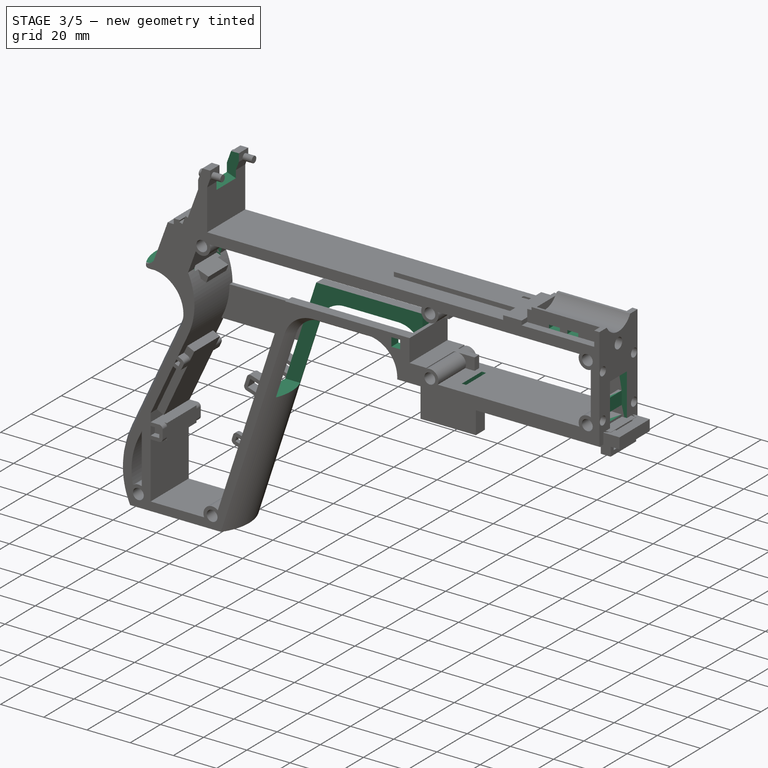
[diagram: stage 3 of 5 — iso view after this stage's code; geometry added in this stage tinted green]
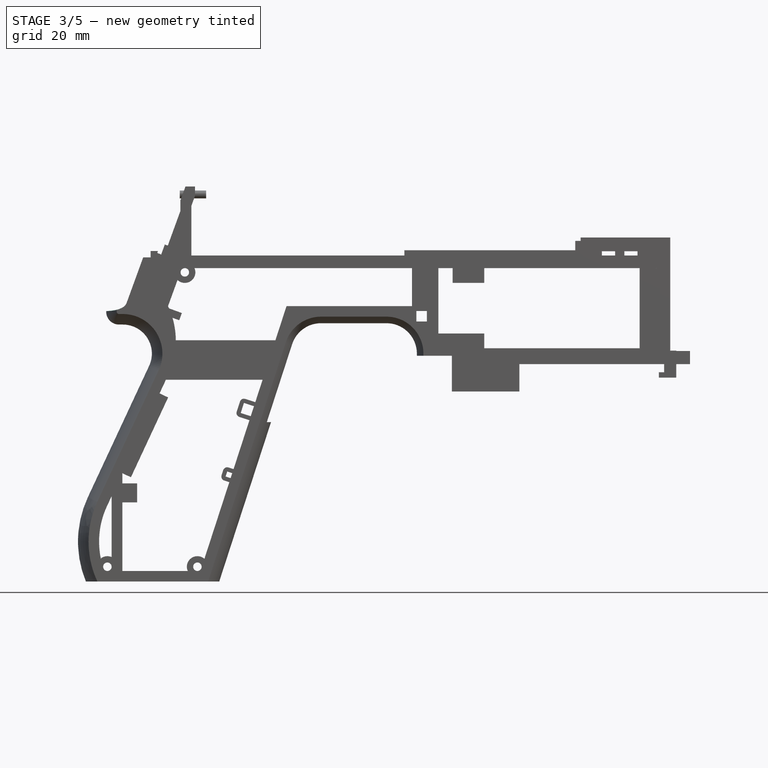
[diagram: stage 3 of 5 — front view after this stage's code; geometry added in this stage tinted green]
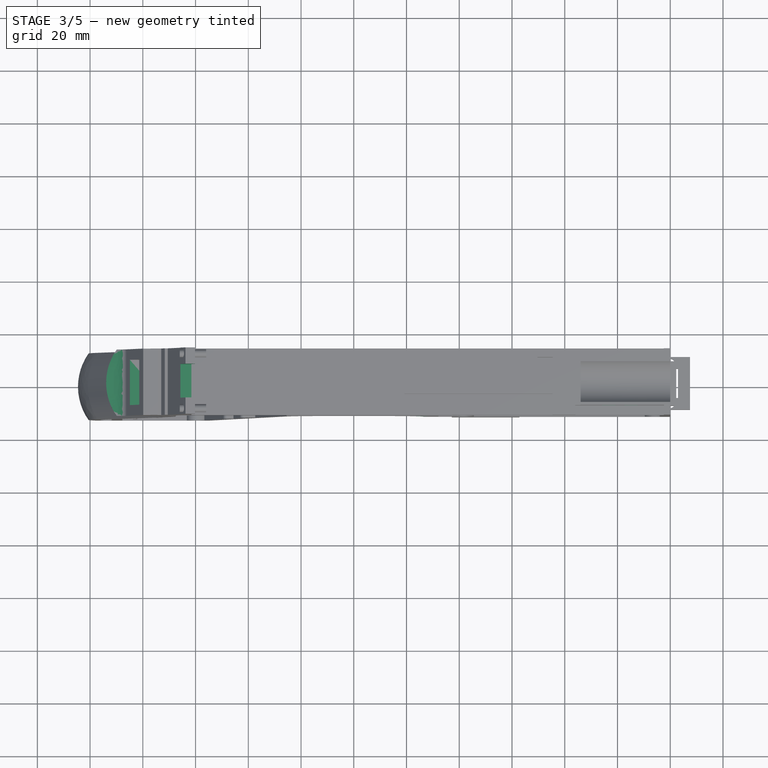
[diagram: stage 3 of 5 — top view after this stage's code; geometry added in this stage tinted green]
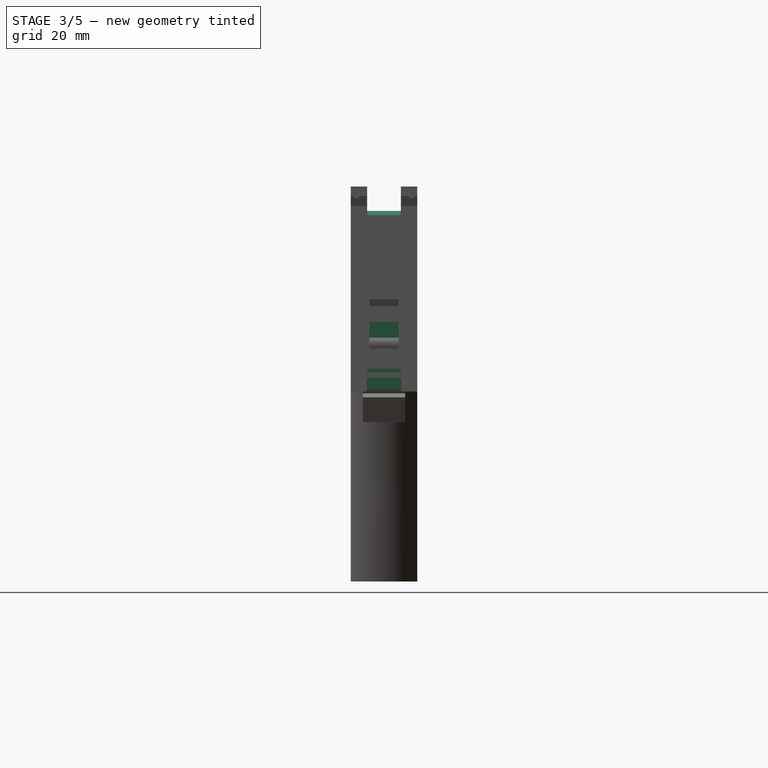
[diagram: stage 3 of 5 — right view after this stage's code; geometry added in this stage tinted green]
FEATURE [Sketcher::SketchObject] Sketch008  label="buchi e pulizie varie"
  ArcFitTolerance = 1e-06
  AttachmentSupport = -> [XZ_Plane]
  ExternalGeometry = -> [Sketch]
  FullyConstrained = true
  MakeInternals = false
  MapMode = 5
  Placement = pos=(0,0,0) rot=(1,0,0;1.5708rad)
  sketch-geometry (26):
    g0: LineSegment StartX=-96.278 StartY=20.155 StartZ=0 EndX=-92.278 EndY=20.155 EndZ=0
    g1: LineSegment StartX=-92.278 StartY=20.155 StartZ=0 EndX=-92.278 EndY=16.155 EndZ=0
    g2: LineSegment StartX=-92.278 StartY=16.155 StartZ=0 EndX=-96.278 EndY=16.155 EndZ=0
    g3: LineSegment StartX=-96.278 StartY=16.155 StartZ=0 EndX=-96.278 EndY=20.155 EndZ=0
    g4: LineSegment StartX=-222.232 StartY=-82.4316 StartZ=0 EndX=-170.232 EndY=-82.4316 EndZ=0
    g5: LineSegment StartX=-170.232 StartY=-82.4316 StartZ=0 EndX=-170.232 EndY=-86.4316 EndZ=0
    g6: LineSegment StartX=-170.232 StartY=-86.4316 StartZ=0 EndX=-222.232 EndY=-86.4316 EndZ=0
    g7: LineSegment StartX=-222.232 StartY=-86.4316 StartZ=0 EndX=-222.232 EndY=-82.4316 EndZ=0
    g8: LineSegment StartX=-213.901 StartY=20.1 StartZ=0 EndX=-213.901 EndY=26 EndZ=0
    g9: LineSegment StartX=-213.901 StartY=26 StartZ=0 EndX=-206.196 EndY=26 EndZ=0
    g10: LineSegment StartX=-17.4 StartY=42.8 StartZ=0 EndX=-12.4 EndY=42.8 EndZ=0
    g11: LineSegment StartX=-12.4 StartY=42.8 StartZ=0 EndX=-12.4 EndY=41.2 EndZ=0
    g12: LineSegment StartX=-12.4 StartY=41.2 StartZ=0 EndX=-17.4 EndY=41.2 EndZ=0
    g13: LineSegment StartX=-17.4 StartY=41.2 StartZ=0 EndX=-17.4 EndY=42.8 EndZ=0
    g14: LineSegment StartX=-25.9 StartY=42.8 StartZ=0 EndX=-20.9 EndY=42.8 EndZ=0
    g15: LineSegment StartX=-20.9 StartY=42.8 StartZ=0 EndX=-20.9 EndY=41.2 EndZ=0
    g16: LineSegment StartX=-20.9 StartY=41.2 StartZ=0 EndX=-25.9 EndY=41.2 EndZ=0
    g17: LineSegment StartX=-25.9 StartY=41.2 StartZ=0 EndX=-25.9 EndY=42.8 EndZ=0
    g18: GeomPoint [constr] X=-206.196 Y=23.0857 Z=0
    g19: GeomPoint [constr] X=-213.901 Y=20.1 Z=0
    g20: BSplineCurve PolesCount=4 KnotsCount=2 Degree=3 IsPeriodic=0
    g21-g24: Circle [constr] x4 (B-spline internal-alignment scaffolding for g20; pole/knot coordinates omitted)
    g25: LineSegment StartX=-206.196 StartY=26 StartZ=0 EndX=-206.196 EndY=23.0857 EndZ=0
  constraints (73):
    c: Horizontal(g0)
    c: Coincident(g1,g0)
    c: Vertical(g1)
    c: Coincident(g2,g1)
    c: Horizontal(g2)
    c: Coincident(g3,g2)
    c: Coincident(g3,g0)
    c: Vertical(g3)
    c: DistanceX(g0,g-4) = 4.368
    c: DistanceY(g0,g-4) = 1.845
    c: DistanceY(g1,g1) = 4
    c: DistanceX(g2,g2) = 4
    c: Horizontal(g4)
    c: Coincident(g5,g4)
    c: Vertical(g5)
    c: Coincident(g6,g5)
    c: Horizontal(g6)
    c: Coincident(g7,g6)
    c: Coincident(g7,g4)
    c: Vertical(g7)
    c: DistanceY(g7,g7) = 4
    c: DistanceX(g4,g-5) = 5
    c: DistanceX(g-5,g4) = 5
    c: DistanceY(g4,g-5) = 0
    c: Coincident(g9,g8)
    c: Parallel(g9,g-6)
    c: DistanceX(g8,g-8) = 4
    c: Horizontal(g10)
    c: Coincident(g11,g10)
    c: Vertical(g11)
    c: Coincident(g12,g11)
    c: Horizontal(g12)
    c: Coincident(g13,g12)
    c: Coincident(g13,g10)
    c: Vertical(g13)
    c: Horizontal(g14)
    c: Coincident(g15,g14)
    c: Vertical(g15)
    c: Coincident(g16,g15)
    c: Horizontal(g16)
    c: Coincident(g17,g16)
    c: Coincident(g17,g14)
    c: Vertical(g17)
    c: DistanceY(g11,g10) = 1.6
    c: DistanceX(g10,g10) = 5
    c: DistanceY(g15,g14) = 1.6
    c: DistanceX(g14,g14) = 5
    c: DistanceX(g15,g12) = 3.5
    c: DistanceX(g11,g-9) = 10
    c: DistanceY(g-9,g11) = 0
    c: DistanceY(g-9,g15) = 0
    c: Perpendicular(g8,g9)
    c: DistanceY(g-7,g9) = 4
    c: DistanceY(g8,g-8) = 0
    c: InternalAlignment(g18,g20)
    c: InternalAlignment(g19,g20)
    c: InternalAlignment(g21,g20)
    c: Weight(g21) = 1
    c: InternalAlignment(g22,g20)
    c: Equal(g22,g21)
    c: InternalAlignment(g23,g20)
    c: Equal(g23,g21)
    c: InternalAlignment(g24,g20)
    c: Equal(g24,g21)
    c: Coincident(g18,g-12)
    c: Coincident(g19,g8)
    c: Coincident(g25,g9)
    c: Coincident(g25,g20)
    c: Vertical(g25)
    c: DistanceY(g20,g23) = 0
    c: DistanceY(g22,g18) = 2.26
    c: DistanceX(g22,g18) = 0.93
    c: DistanceX(g20,g23) = 2.9
FEATURE [Part::Extrusion] Extrude004  label="Extrude Buchi e pulizie varie"
  Base = -> Sketch008
  Dir = (0,-1,2e-16)
  DirMode = 2
  FaceMakerClass = Part::FaceMakerBullseye
  FaceMakerMode = 3
  LengthFwd = 25.2
  LengthRev = 0
  Solid = true
  Symmetric = true
FEATURE [Sketcher::SketchObject] Sketch009  label="rinforzi"
  ArcFitTolerance = 1e-06
  AttachmentSupport = -> [XZ_Plane]
  ExternalGeometry = -> [Sketch]
  FullyConstrained = true
  MakeInternals = false
  MapMode = 5
  Placement = pos=(0,0,0) rot=(1,0,0;1.5708rad)
  sketch-geometry (9):
    g0: LineSegment StartX=-87.91 StartY=22 StartZ=0 EndX=-87.91 EndY=36.4 EndZ=0
    g1: LineSegment StartX=-87.91 StartY=36.4 StartZ=0 EndX=-97.91 EndY=36.4 EndZ=0
    g2: LineSegment StartX=-97.91 StartY=36.4 StartZ=0 EndX=-97.91 EndY=22 EndZ=0
    g3: LineSegment StartX=-97.91 StartY=22 StartZ=0 EndX=-87.91 EndY=22 EndZ=0
    g4: LineSegment StartX=-149.713 StartY=9.06563 StartZ=0 EndX=-154.586 EndY=-5.93437 EndZ=0
    g5: LineSegment StartX=-154.586 StartY=-5.93437 StartZ=0 EndX=-191.863 EndY=-5.93437 EndZ=0
    g6: LineSegment StartX=-191.863 StartY=-5.93437 StartZ=0 EndX=-191.863 EndY=9.06563 EndZ=0
    g7: LineSegment StartX=-191.863 StartY=9.06563 StartZ=0 EndX=-149.713 EndY=9.06563 EndZ=0
    g8: LineSegment [constr] StartX=-145.51 StartY=22 StartZ=0 EndX=-149.713 EndY=9.06563 EndZ=0
  constraints (25):
    c: Vertical(g0)
    c: Coincident(g1,g0)
    c: Horizontal(g1)
    c: Coincident(g2,g1)
    c: Vertical(g2)
    c: Coincident(g3,g2)
    c: Coincident(g3,g0)
    c: Horizontal(g3)
    c: Coincident(g0,g-4)
    c: DistanceX(g3,g3) = 10
    c: DistanceY(g0,g-3) = 0
    c: Coincident(g5,g4)
    c: Horizontal(g5)
    c: Coincident(g6,g5)
    c: Vertical(g6)
    c: Coincident(g7,g6)
    c: Coincident(g7,g4)
    c: Horizontal(g7)
    c: Distance(g8) = 13.6
    c: Parallel(g-6,g8)
    c: Coincident(g-6,g8)
    c: Parallel(g4,g-6)
    c: DistanceY(g4,g4) = 15
    c: Coincident(g4,g8)
    c: DistanceX(g-5,g5) = -1.5
FEATURE [Part::Extrusion] Extrude001  label="Extrude scavo grilletto"
  Base = -> Sketch002
  Dir = (0,-1,2e-16)
  DirMode = 2
  FaceMakerClass = Part::FaceMakerBullseye
  FaceMakerMode = 3
  LengthFwd = 16
  LengthRev = 0
  Solid = true
  Symmetric = true
FEATURE [PartDesign::ShapeBinder] CopyCut
  TraceSupport = false
FEATURE [PartDesign::Plane] DatumPlane001
  AttachmentSupport = -> [CopyCut]
  Length = 283.944
  MapMode = 5
  Placement = pos=(0,12.6,0) rot=(0,0.707107,0.707107;3.14159rad)
  ResizeMode = 0
  Width = 188.15
FEATURE [Sketcher::SketchObject] Sketch010  label="buco neopixel"
  ArcFitTolerance = 1e-06
  AttachmentSupport = -> [XZ_Plane]
  ExternalGeometry = -> [Sketch]
  FullyConstrained = true
  MakeInternals = false
  MapMode = 5
  Placement = pos=(0,0,0) rot=(1,0,0;1.5708rad)
  sketch-geometry (5):
    g0: LineSegment [constr] StartX=-199.861 StartY=40.4914 StartZ=0 EndX=-201.368 EndY=36.3521 EndZ=0
    g1: LineSegment StartX=-201.368 StartY=36.3521 StartZ=0 EndX=-204.932 EndY=26.5605 EndZ=0
    g2: LineSegment StartX=-201.368 StartY=36.3521 StartZ=0 EndX=-185.2 EndY=30.4675 EndZ=0
    g3: LineSegment StartX=-185.2 StartY=30.4675 StartZ=0 EndX=-188.764 EndY=20.6759 EndZ=0
    g4: LineSegment StartX=-188.764 StartY=20.6759 StartZ=0 EndX=-204.932 EndY=26.5605 EndZ=0
  constraints (14):
    c: Parallel(g0,g-3)
    c: Distance(g0) = 4.405
    c: Coincident(g0,g-3)
    c: Coincident(g2,g1)
    c: Coincident(g3,g2)
    c: Coincident(g4,g3)
    c: Coincident(g4,g1)
    c: Parallel(g1,g-3)
    c: Distance(g1) = 10.42
    c: Coincident(g1,g0)
    c: Parallel(g2,g4)
    c: Perpendicular(g1,g2)
    c: DistanceX(g-4,g2) = 0
    c: Parallel(g3,g1)
FEATURE [Part::Extrusion] Extrude006  label="Extrude buco neopixel"
  Base = -> Sketch010
  Dir = (0,-1,2e-16)
  DirMode = 2
  FaceMakerClass = Part::FaceMakerBullseye
  FaceMakerMode = 3
  LengthFwd = 17.2
  LengthRev = 0
  Solid = true
  Symmetric = true
FEATURE [Sketcher::SketchObject] Sketch012  label="buco oled"
  ArcFitTolerance = 1e-06
  AttachmentSupport = -> [XZ_Plane]
  ExternalGeometry = -> [Sketch]
  FullyConstrained = true
  MakeInternals = false
  MapMode = 5
  Placement = pos=(0,0,0) rot=(1,0,0;1.5708rad)
  sketch-geometry (4):
    g0: LineSegment StartX=-185.747 StartY=58.0965 StartZ=0 EndX=-180.232 EndY=56.0891 EndZ=0
    g1: LineSegment StartX=-185.747 StartY=58.0965 StartZ=0 EndX=-185.747 EndY=67.3588 EndZ=0
    g2: LineSegment StartX=-185.747 StartY=67.3588 StartZ=0 EndX=-180.232 EndY=67.3588 EndZ=0
    g3: LineSegment StartX=-180.232 StartY=67.3588 StartZ=0 EndX=-180.232 EndY=56.0891 EndZ=0
  constraints (10):
    c: Coincident(g1,g0)
    c: Coincident(g2,g1)
    c: Coincident(g3,g2)
    c: Coincident(g3,g0)
    c: Parallel(g1,g-5)
    c: Perpendicular(g-3,g0)
    c: Parallel(g2,g-6)
    c: Parallel(g3,g-4)
    c: Coincident(g0,g-5)
    c: Coincident(g2,g-6)
FEATURE [Part::Extrusion] Extrude008  label="Extrude buco oled"
  Base = -> Sketch012
  Dir = (0,-1,2e-16)
  DirMode = 2
  FaceMakerClass = Part::FaceMakerBullseye
  FaceMakerMode = 3
  LengthFwd = 12.8
  LengthRev = 0
  Solid = true
  Symmetric = true
FEATURE [Sketcher::SketchObject] Sketch013  label="buco pompa"
  ArcFitTolerance = 1e-06
  AttachmentSupport = -> [XZ_Plane]
  ExternalGeometry = -> [Sketch]
  FullyConstrained = true
  MakeInternals = false
  MapMode = 5
  Placement = pos=(0,0,0) rot=(1,0,0;1.5708rad)
  sketch-geometry (8):
    g0: LineSegment StartX=-82.8 StartY=-10.4 StartZ=0 EndX=-82.8 EndY=-9.6 EndZ=0
    g1: LineSegment StartX=-82.8 StartY=-9.6 StartZ=0 EndX=-67.9 EndY=-9.6 EndZ=0
    g2: LineSegment StartX=-67.9 StartY=-9.6 StartZ=0 EndX=-67.9 EndY=6 EndZ=0
    g3: LineSegment StartX=-67.9 StartY=6 StartZ=0 EndX=-65.9 EndY=6 EndZ=0
    g4: LineSegment StartX=-65.9 StartY=6 StartZ=0 EndX=-65.9 EndY=-1.7 EndZ=0
    g5: LineSegment StartX=-65.9 StartY=-1.7 StartZ=0 EndX=-57.2 EndY=-1.7 EndZ=0
    g6: LineSegment StartX=-57.2 StartY=-1.7 StartZ=0 EndX=-57.2 EndY=-10.4 EndZ=0
    g7: LineSegment StartX=-57.2 StartY=-10.4 StartZ=0 EndX=-82.8 EndY=-10.4 EndZ=0
  constraints (22):
    c: Vertical(g0)
    c: Coincident(g1,g0)
    c: Horizontal(g1)
    c: Coincident(g2,g1)
    c: Vertical(g2)
    c: Coincident(g3,g2)
    c: Horizontal(g3)
    c: Coincident(g4,g3)
    c: Vertical(g4)
    c: Coincident(g5,g4)
    c: Horizontal(g5)
    c: Coincident(g6,g5)
    c: Vertical(g6)
    c: Coincident(g7,g6)
    c: Coincident(g7,g0)
    c: DistanceY(g0,g0) = 0.8
    c: DistanceY(g6,g6) = 8.7
    c: DistanceX(g1,g1) = 14.9
    c: DistanceX(g3,g3) = 2
    c: Coincident(g0,g-4)
    c: DistanceY(g2,g-6) = 0
    c: Coincident(g6,g-5)
FEATURE [Part::Extrusion] Extrude009  label="Extrude buco pompa"
  Base = -> Sketch013
  Dir = (0,-1,2e-16)
  DirMode = 2
  FaceMakerClass = Part::FaceMakerBullseye
  FaceMakerMode = 3
  LengthFwd = 13.2
  LengthRev = 0
  Solid = true
  Symmetric = true
FEATURE [Sketcher::SketchObject] Sketch014  label="buco frontale"
  ArcFitTolerance = 1e-06
  AttachmentSupport = -> [XZ_Plane]
  ExternalGeometry = -> [Sketch]
  FullyConstrained = true
  MakeInternals = false
  MapMode = 5
  Placement = pos=(0,0,0) rot=(1,0,0;1.5708rad)
  sketch-geometry (10):
    g0: LineSegment StartX=0 StartY=0 StartZ=0 EndX=0 EndY=24.671 EndZ=0
    g1: LineSegment StartX=0 StartY=24.671 StartZ=0 EndX=-4 EndY=24.671 EndZ=0
    g2: LineSegment StartX=-4 StartY=24.671 StartZ=0 EndX=-4 EndY=16 EndZ=0
    g3: LineSegment StartX=-4 StartY=16 StartZ=0 EndX=-2.4 EndY=16 EndZ=0
    g4: LineSegment StartX=-2.4 StartY=16 StartZ=0 EndX=-2.4 EndY=10 EndZ=0
    g5: LineSegment StartX=-2.4 StartY=10 StartZ=0 EndX=-12 EndY=10 EndZ=0
    g6: LineSegment StartX=-12 StartY=10 StartZ=0 EndX=-12 EndY=6 EndZ=0
    g7: LineSegment StartX=-12 StartY=6 StartZ=0 EndX=-2.4 EndY=6 EndZ=0
    g8: LineSegment StartX=-2.4 StartY=6 StartZ=0 EndX=-2.4 EndY=0 EndZ=0
    g9: LineSegment StartX=-2.4 StartY=0 StartZ=0 EndX=0 EndY=0 EndZ=0
  constraints (29):
    c: Vertical(g0)
    c: Coincident(g1,g0)
    c: Horizontal(g1)
    c: Coincident(g2,g1)
    c: Vertical(g2)
    c: Coincident(g3,g2)
    c: Horizontal(g3)
    c: Coincident(g4,g3)
    c: Vertical(g4)
    c: Coincident(g5,g4)
    c: Horizontal(g5)
    c: Coincident(g6,g5)
    c: Vertical(g6)
    c: Coincident(g7,g6)
    c: Coincident(g8,g7)
    c: Vertical(g8)
    c: Coincident(g9,g8)
    c: Coincident(g9,g0)
    c: Horizontal(g9)
    c: DistanceY(g0,g0) = 24.671
    c: Horizontal(g7)
    c: DistanceY(g6,g6) = 4
    c: DistanceY(g4,g4) = 6
    c: DistanceX(g9,g9) = 2.4
    c: Coincident(g0,g-1)
    c: DistanceY(g-3,g7) = 0
    c: DistanceX(g8,g4) = 0
    c: DistanceX(g-3,g1) = 0
    c: DistanceX(g6,g-3) = 8
FEATURE [Part::Extrusion] Extrude010  label="Extrude buco frontale"
  Base = -> Sketch014
  Dir = (0,-1,2e-16)
  DirMode = 2
  FaceMakerClass = Part::FaceMakerBullseye
  FaceMakerMode = 3
  LengthFwd = 11.2
  LengthRev = 0
  Solid = true
  Symmetric = true
FEATURE [Part::Extrusion] Extrude019  label="Extrude fori M3x5x6 - sx"
  Base = -> Sketch022
  Dir = (0,-1,2e-16)
  DirMode = 2
  FaceMakerClass = Part::FaceMakerBullseye
  FaceMakerMode = 3
  LengthFwd = 6.2
  LengthRev = 0
  Placement = pos=(0,9.5,0) rot=(0,0,1;0rad)
  Solid = true
  Symmetric = true
FEATURE [Part::Extrusion] Extrude023  label="Extrude foro per filo CAM sx"
  Base = -> Sketch025
  Dir = (0,-1,2e-16)
  DirMode = 2
  FaceMakerClass = Part::FaceMakerBullseye
  FaceMakerMode = 3
  LengthFwd = 4.9
  LengthRev = 0
  Placement = pos=(0,-6.95,0) rot=(0,0,1;0rad)
  Solid = true
  Symmetric = true
FEATURE [Part::Cut] Cut
  Base = -> Fusion
  Refine = true
  Tool = -> Extrude001
FEATURE [Part::Cut] Cut001
  Base = -> Cut
  Refine = true
  Tool = -> Extrude004
FEATURE [Part::Cut] Cut002
  Base = -> Cut001
  Refine = true
  Tool = -> Extrude006
FEATURE [Part::Cut] Cut003
  Base = -> Cut002
  Refine = true
  Tool = -> Extrude008
FEATURE [Part::Cut] Cut004
  Base = -> Cut003
  Refine = true
  Tool = -> Extrude009
FEATURE [Part::Cut] Cut005
  Base = -> Cut004
  Refine = true
  Tool = -> Extrude010
FEATURE [Part::Cut] Cut006
  Base = -> Cut005
  Refine = true
  Tool = -> Extrude014
FEATURE [Part::Cut] Cut007
  Base = -> Cut006
  Refine = true
  Tool = -> Extrude015
FEATURE [Part::Cut] Cut008
  Base = -> Cut007
  Refine = true
  Tool = -> Extrude018
FEATURE [Part::Cut] Cut009
  Base = -> Cut008
  Refine = true
  Tool = -> Extrude019
FEATURE [Part::Cut] Cut010
  Base = -> Cut009
  Refine = true
  Tool = -> Extrude020
FEATURE [Part::Cut] Cut011
  Base = -> Cut010
  Refine = true
  Tool = -> Extrude021
FEATURE [Part::Cut] Cut012
  Base = -> Cut011
  Refine = true
  Tool = -> Extrude022
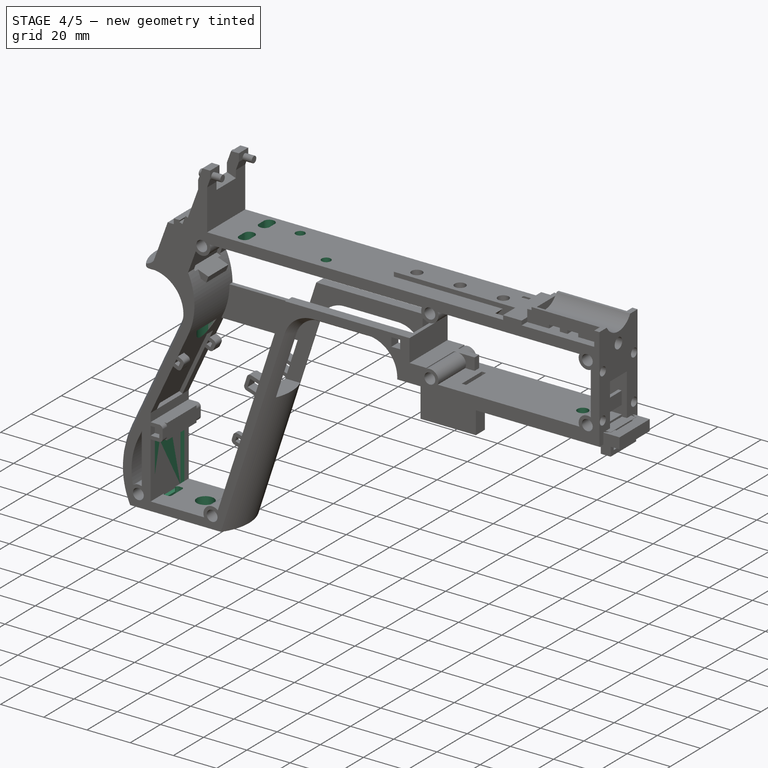
[diagram: stage 4 of 5 — iso view after this stage's code; geometry added in this stage tinted green]
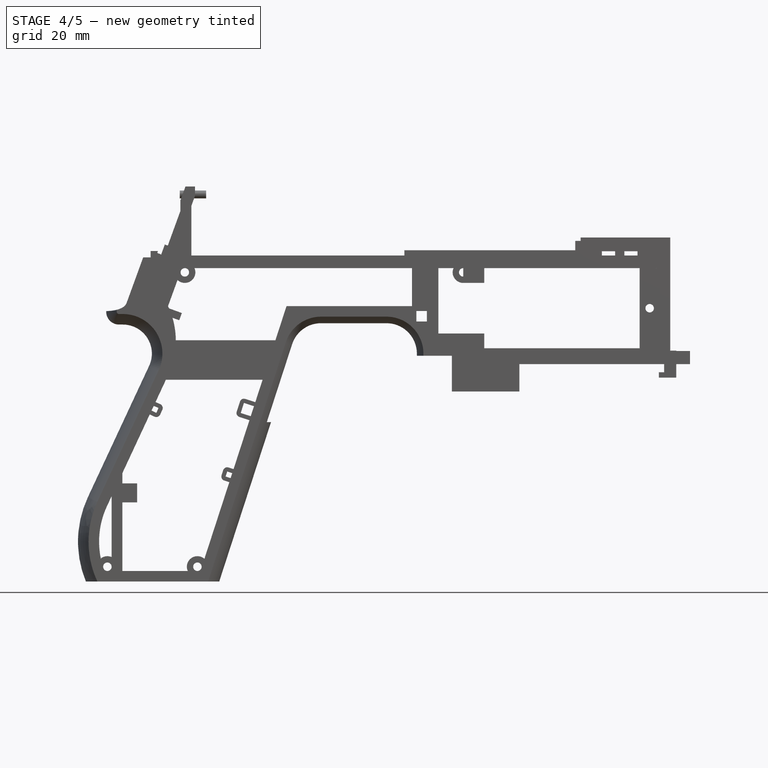
[diagram: stage 4 of 5 — front view after this stage's code; geometry added in this stage tinted green]
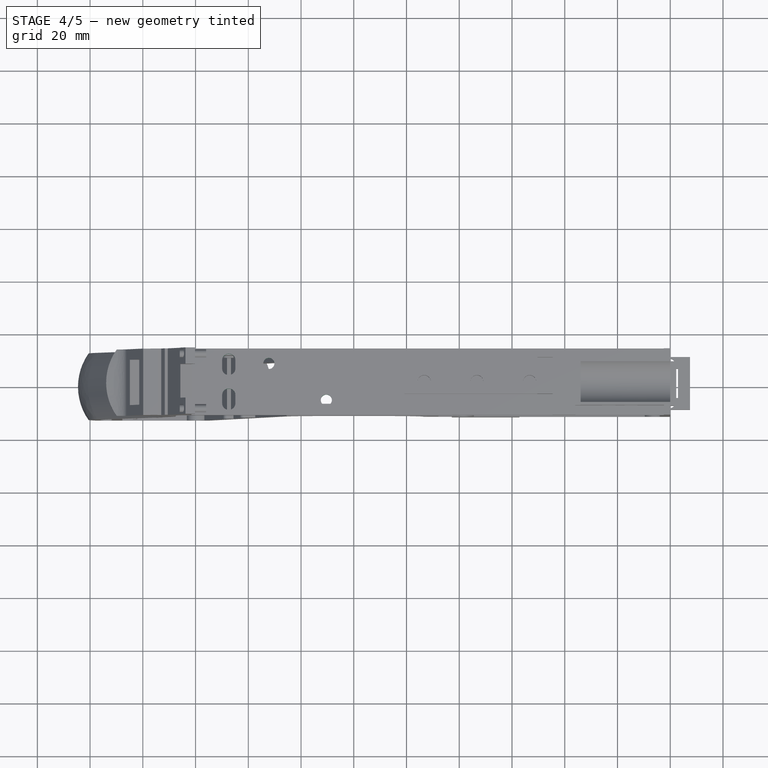
[diagram: stage 4 of 5 — top view after this stage's code; geometry added in this stage tinted green]
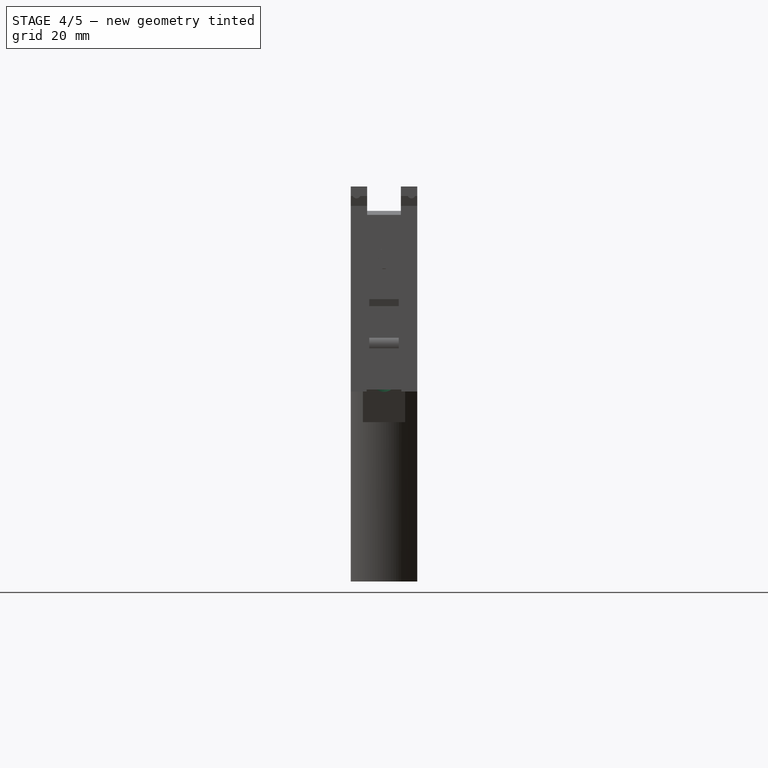
[diagram: stage 4 of 5 — right view after this stage's code; geometry added in this stage tinted green]
FEATURE [Sketcher::SketchObject] Sketch026  label="foro sotto anteriore M3x5x6"
  ArcFitTolerance = 1e-06
  AttachmentSupport = -> [XY_Plane]
  FullyConstrained = true
  MakeInternals = false
  MapMode = 5
  sketch-geometry (2):
    g0: LineSegment [constr] StartX=0 StartY=0 StartZ=0 EndX=-16.5 EndY=0 EndZ=0
    g1: Circle CenterX=-16.5 CenterY=0 CenterZ=0 NormalX=0 NormalY=0 NormalZ=1 AngleXU=0 Radius=2.5
  constraints (5):
    c: Distance(g0) = 16.5
    c: Coincident(g0,g-1)
    c: PointOnObject(g0,g-1)
    c: Diameter(g1) = 5
    c: Coincident(g0,g1)
FEATURE [Sketcher::SketchObject] Sketch027  label="foro sotto posteriore M3x5x6"
  ArcFitTolerance = 1e-06
  AttachmentSupport = -> [XY_Plane]
  ExternalGeometry = -> [Sketch]
  FullyConstrained = true
  MakeInternals = false
  MapMode = 5
  sketch-geometry (2):
    g0: LineSegment [constr] StartX=-82.8 StartY=2e-16 StartZ=0 EndX=-71.3 EndY=2e-16 EndZ=0
    g1: Circle CenterX=-71.3 CenterY=2e-16 CenterZ=0 NormalX=0 NormalY=0 NormalZ=1 AngleXU=0 Radius=2.5
  constraints (5):
    c: Distance(g0) = 11.5
    c: Coincident(g0,g-3)
    c: PointOnObject(g0,g-3)
    c: Diameter(g1) = 5
    c: Coincident(g1,g0)
FEATURE [Sketcher::SketchObject] Sketch029  label="fori sotto impugnatura"
  ArcFitTolerance = 1e-06
  AttachmentSupport = -> [XY_Plane]
  ExternalGeometry = -> [Sketch]
  FullyConstrained = true
  MakeInternals = false
  MapMode = 5
  sketch-geometry (15):
    g0: LineSegment [constr] StartX=-175.232 StartY=-1.83e-14 StartZ=0 EndX=-191.232 EndY=0 EndZ=0
    g1: Circle CenterX=-191.232 CenterY=0 CenterZ=0 NormalX=0 NormalY=0 NormalZ=1 AngleXU=0 Radius=3.95
    g2: LineSegment [constr] StartX=-175.232 StartY=-1.83e-14 StartZ=0 EndX=-204.275 EndY=0 EndZ=0
    g3: LineSegment StartX=-204.275 StartY=3.525 StartZ=0 EndX=-204.275 EndY=-3.525 EndZ=0
    g4: LineSegment StartX=-205.4 StartY=-4.65 StartZ=0 EndX=-206.65 EndY=-4.65 EndZ=0
    g5: LineSegment StartX=-207.775 StartY=-3.525 StartZ=0 EndX=-207.775 EndY=3.525 EndZ=0
    g6: LineSegment StartX=-206.65 StartY=4.65 StartZ=0 EndX=-205.4 EndY=4.65 EndZ=0
    g7: ArcOfCircle CenterX=-206.65 CenterY=3.525 CenterZ=0 NormalX=0 NormalY=0 NormalZ=1 AngleXU=0 Radius=1.125 StartAngle=1.5708 EndAngle=3.14159
    g8: GeomPoint [constr] X=-207.775 Y=4.65 Z=0
    g9: ArcOfCircle CenterX=-205.4 CenterY=3.525 CenterZ=0 NormalX=0 NormalY=0 NormalZ=1 AngleXU=0 Radius=1.125 StartAngle=0 EndAngle=1.5708
    g10: GeomPoint [constr] X=-204.275 Y=4.65 Z=0
    g11: ArcOfCircle CenterX=-205.4 CenterY=-3.525 CenterZ=0 NormalX=0 NormalY=0 NormalZ=1 AngleXU=0 Radius=1.125 StartAngle=4.71239 EndAngle=6.28319
    g12: GeomPoint [constr] X=-204.275 Y=-4.65 Z=0
    g13: ArcOfCircle CenterX=-206.65 CenterY=-3.525 CenterZ=0 NormalX=0 NormalY=0 NormalZ=1 AngleXU=0 Radius=1.125 StartAngle=3.14159 EndAngle=4.71239
    g14: GeomPoint [constr] X=-207.775 Y=-4.65 Z=0
  constraints (35):
    c: Distance(g0) = 16
    c: Coincident(g0,g-3)
    c: PointOnObject(g0,g-1)
    c: Diameter(g1) = 7.9
    c: Coincident(g1,g0)
    c: Coincident(g2,g0)
    c: PointOnObject(g2,g-1)
    c: Vertical(g3)
    c: Horizontal(g4)
    c: Vertical(g5)
    c: Horizontal(g6)
    c: DistanceY(g12,g10) = 9.3
    c: DistanceX(g8,g10) = 3.5
    c: Symmetric(g10,g12,g2)
    c: PointOnObject(g8,g5)
    c: PointOnObject(g8,g6)
    c: Tangent(g5,g7) = 1.5708
    c: Tangent(g6,g7) = 1.5708
    c: PointOnObject(g10,g3)
    c: PointOnObject(g10,g6)
    c: Tangent(g3,g9) = 1.5708
    c: Tangent(g6,g9) = 1.5708
    c: PointOnObject(g12,g3)
    c: PointOnObject(g12,g4)
    c: Tangent(g3,g11) = 1.5708
    c: Tangent(g4,g11) = 1.5708
    c: PointOnObject(g14,g4)
    c: PointOnObject(g14,g5)
    c: Tangent(g4,g13) = 1.5708
    c: Tangent(g5,g13) = 1.5708
    c: Equal(g7,g9)
    c: Equal(g9,g11)
    c: Equal(g11,g13)
    c: DistanceX(g6,g6) = 1.25
    c: DistanceX(g-5,g5) = 6.8
FEATURE [Sketcher::SketchObject] Sketch030  label="fori superiori per solenoide e oled"
  ArcFitTolerance = 1e-06
  AttachmentSupport = -> [XY_Plane]
  ExternalGeometry = -> [Sketch]
  FullyConstrained = true
  MakeInternals = false
  MapMode = 5
  sketch-geometry (33):
    g0: LineSegment [constr] StartX=-181.6 StartY=1.12e-14 StartZ=0 EndX=-169.91 EndY=0 EndZ=0
    g1: LineSegment [constr] StartX=-169.91 StartY=0 StartZ=0 EndX=-169.91 EndY=-2.6 EndZ=0
    g2: LineSegment [constr] StartX=-169.91 StartY=0 StartZ=0 EndX=-169.91 EndY=2.6 EndZ=0
    g3: LineSegment StartX=-169.91 StartY=4.975 StartZ=0 EndX=-169.91 EndY=8.225 EndZ=0
    g4: LineSegment StartX=-167.535 StartY=10.6 StartZ=0 EndX=-167.285 EndY=10.6 EndZ=0
    g5: LineSegment StartX=-164.91 StartY=8.225 StartZ=0 EndX=-164.91 EndY=4.975 EndZ=0
    g6: LineSegment StartX=-167.285 StartY=2.6 StartZ=0 EndX=-167.535 EndY=2.6 EndZ=0
    g7: LineSegment StartX=-169.91 StartY=-4.975 StartZ=0 EndX=-169.91 EndY=-8.225 EndZ=0
    g8: LineSegment StartX=-167.535 StartY=-10.6 StartZ=0 EndX=-167.285 EndY=-10.6 EndZ=0
    g9: LineSegment StartX=-164.91 StartY=-8.225 StartZ=0 EndX=-164.91 EndY=-4.975 EndZ=0
    g10: LineSegment StartX=-167.285 StartY=-2.6 StartZ=0 EndX=-167.535 EndY=-2.6 EndZ=0
    g11: ArcOfCircle CenterX=-167.535 CenterY=8.225 CenterZ=0 NormalX=0 NormalY=0 NormalZ=1 AngleXU=0 Radius=2.375 StartAngle=1.5708 EndAngle=3.14159
    g12: GeomPoint [constr] X=-169.91 Y=10.6 Z=0
    g13: ArcOfCircle CenterX=-167.285 CenterY=8.225 CenterZ=0 NormalX=0 NormalY=0 NormalZ=1 AngleXU=0 Radius=2.375 StartAngle=0 EndAngle=1.5708
    g14: GeomPoint [constr] X=-164.91 Y=10.6 Z=0
    g15: ArcOfCircle CenterX=-167.285 CenterY=4.975 CenterZ=0 NormalX=0 NormalY=0 NormalZ=1 AngleXU=0 Radius=2.375 StartAngle=4.71239 EndAngle=6.28319
    g16: GeomPoint [constr] X=-164.91 Y=2.6 Z=0
    g17: ArcOfCircle CenterX=-167.535 CenterY=4.975 CenterZ=0 NormalX=0 NormalY=0 NormalZ=1 AngleXU=0 Radius=2.375 StartAngle=3.14159 EndAngle=4.71239
    g18: GeomPoint [constr] X=-169.91 Y=2.6 Z=0
    g19: ArcOfCircle CenterX=-167.535 CenterY=-4.975 CenterZ=0 NormalX=0 NormalY=0 NormalZ=1 AngleXU=0 Radius=2.375 StartAngle=1.5708 EndAngle=3.14159
    g20: GeomPoint [constr] X=-169.91 Y=-2.6 Z=0
    g21: ArcOfCircle CenterX=-167.285 CenterY=-4.975 CenterZ=0 NormalX=0 NormalY=0 NormalZ=1 AngleXU=0 Radius=2.375 StartAngle=0 EndAngle=1.5708
    g22: GeomPoint [constr] X=-164.91 Y=-2.6 Z=0
    g23: ArcOfCircle CenterX=-167.285 CenterY=-8.225 CenterZ=0 NormalX=0 NormalY=0 NormalZ=1 AngleXU=0 Radius=2.375 StartAngle=4.71239 EndAngle=6.28319
    g24: GeomPoint [constr] X=-164.91 Y=-10.6 Z=0
    g25: ArcOfCircle CenterX=-167.535 CenterY=-8.225 CenterZ=0 NormalX=0 NormalY=0 NormalZ=1 AngleXU=0 Radius=2.375 StartAngle=3.14159 EndAngle=4.71239
    g26: GeomPoint [constr] X=-169.91 Y=-10.6 Z=0
    g27: LineSegment [constr] StartX=-181.6 StartY=1.12e-14 StartZ=0 EndX=-152.209 EndY=0 EndZ=0
    g28: LineSegment [constr] StartX=-181.6 StartY=1.12e-14 StartZ=0 EndX=-130.41 EndY=0 EndZ=0
    g29: LineSegment [constr] StartX=-152.209 StartY=0 StartZ=0 EndX=-152.209 EndY=6.95 EndZ=0
    g30: LineSegment [constr] StartX=-130.41 StartY=0 StartZ=0 EndX=-130.41 EndY=-6.95 EndZ=0
    g31: Circle CenterX=-152.209 CenterY=6.95 CenterZ=0 NormalX=0 NormalY=0 NormalZ=1 AngleXU=0 Radius=2.1
    g32: Circle CenterX=-130.41 CenterY=-6.95 CenterZ=0 NormalX=0 NormalY=0 NormalZ=1 AngleXU=0 Radius=2.1
  constraints (79):
    c: Distance(g0) = 11.69
    c: PointOnObject(g0,g-1)
    c: Coincident(g-4,g0)
    c: Distance(g1) = 2.6
    c: Coincident(g1,g0)
    c: Vertical(g1)
    c: Distance(g2) = 2.6
    c: Coincident(g2,g0)
    c: Vertical(g2)
    c: Distance(g18,g12) = 8
    c: Coincident(g18,g2)
    c: Vertical(g3)
    c: Distance(g14,g12) = 5
    c: Horizontal(g4)
    c: Distance(g16,g14) = 8
    c: Vertical(g5)
    c: Distance(g26,g20) = 8
    c: Coincident(g20,g1)
    c: Vertical(g7)
    c: Distance(g26,g24) = 5
    c: Horizontal(g8)
    c: Distance(g24,g22) = 8
    c: Vertical(g9)
    c: PointOnObject(g12,g3)
    c: PointOnObject(g12,g4)
    c: Tangent(g3,g11) = 1.5708
    c: Tangent(g4,g11) = 1.5708
    c: PointOnObject(g14,g5)
    c: PointOnObject(g14,g4)
    c: Tangent(g5,g13) = 1.5708
    c: Tangent(g4,g13) = 1.5708
    c: PointOnObject(g16,g5)
    c: PointOnObject(g16,g6)
    c: Tangent(g5,g15) = 1.5708
    c: Tangent(g6,g15) = 1.5708
    c: PointOnObject(g18,g3)
    c: PointOnObject(g18,g6)
    c: Tangent(g3,g17) = 1.5708
    c: Tangent(g6,g17) = 1.5708
    c: Equal(g11,g13)
    c: Equal(g13,g15)
    c: Equal(g15,g17)
    c: DistanceX(g4,g4) = 0.25
    c: PointOnObject(g20,g7)
    c: PointOnObject(g20,g10)
    c: Tangent(g7,g19) = -1.5708
    c: Tangent(g10,g19) = -1.5708
    c: PointOnObject(g22,g9)
    c: PointOnObject(g22,g10)
    c: Tangent(g9,g21) = -1.5708
    c: Tangent(g10,g21) = -1.5708
    c: PointOnObject(g24,g9)
    c: PointOnObject(g24,g8)
    c: Tangent(g9,g23) = -1.5708
    c: Tangent(g8,g23) = -1.5708
    c: PointOnObject(g26,g8)
    c: PointOnObject(g26,g7)
    c: Tangent(g8,g25) = -1.5708
    c: Tangent(g7,g25) = -1.5708
    c: Equal(g19,g21)
    c: Equal(g21,g23)
    c: Equal(g23,g25)
    c: DistanceX(g10,g10) = 0.25
    c: Distance(g27) = 29.391
    c: Coincident(g27,g0)
    c: PointOnObject(g27,g-1)
    c: Distance(g28) = 51.19
    c: Coincident(g28,g0)
    c: PointOnObject(g28,g-1)
    c: Distance(g29) = 6.95
    c: Coincident(g29,g27)
    c: Vertical(g29)
    c: Distance(g30) = 6.95
    c: Coincident(g30,g28)
    c: Vertical(g30)
    c: Diameter(g31) = 4.2
    c: Diameter(g32) = 4.2
    c: Coincident(g32,g30)
    c: Coincident(g31,g29)
FEATURE [Sketcher::SketchObject] Sketch031  label="fori inferiori switch pompa"
  ArcFitTolerance = 1e-06
  AttachmentSupport = -> [XY_Plane]
  ExternalGeometry = -> [Sketch]
  FullyConstrained = true
  MakeInternals = false
  MapMode = 5
  sketch-geometry (4):
    g0: LineSegment [constr] StartX=-57.2 StartY=1.9e-15 StartZ=0 EndX=-62.45 EndY=1.9e-15 EndZ=0
    g1: LineSegment [constr] StartX=-62.45 StartY=3.25 StartZ=0 EndX=-62.45 EndY=-3.25 EndZ=0
    g2: Circle CenterX=-62.45 CenterY=3.25 CenterZ=0 NormalX=0 NormalY=0 NormalZ=1 AngleXU=0 Radius=1.6
    g3: Circle CenterX=-62.45 CenterY=-3.25 CenterZ=0 NormalX=0 NormalY=0 NormalZ=1 AngleXU=0 Radius=1.6
  constraints (10):
    c: Distance(g0) = 5.25
    c: Coincident(g0,g-3)
    c: PointOnObject(g0,g-3)
    c: Vertical(g1)
    c: DistanceY(g1,g1) = 6.5
    c: Symmetric(g1,g1,g0)
    c: Diameter(g2) = 3.2
    c: Diameter(g3) = 3.2
    c: Coincident(g2,g1)
    c: Coincident(g3,g1)
FEATURE [Sketcher::SketchObject] Sketch032  label="spazio per PILA 18650"
  ArcFitTolerance = 1e-06
  AttachmentSupport = -> [XY_Plane]
  ExternalGeometry = -> [Sketch]
  FullyConstrained = true
  MakeInternals = false
  MapMode = 5
  sketch-geometry (2):
    g0: LineSegment [constr] StartX=-178.142 StartY=-1.74e-14 StartZ=0 EndX=-190.142 EndY=-1.83e-14 EndZ=0
    g1: Circle CenterX=-190.142 CenterY=-1.83e-14 CenterZ=0 NormalX=0 NormalY=0 NormalZ=1 AngleXU=0 Radius=9.25
  constraints (5):
    c: Distance(g0) = 12
    c: Coincident(g0,g-3)
    c: PointOnObject(g0,g-4)
    c: Diameter(g1) = 18.5
    c: Coincident(g1,g0)
FEATURE [Part::Extrusion] Extrude030  label="Extrude spazio per PILA 18650"
  Base = -> Sketch032
  Dir = (0,0,1)
  DirLink = -> Sketch [Edge45]
  DirMode = 2
  FaceMakerClass = Part::FaceMakerBullseye
  FaceMakerMode = 3
  LengthFwd = 68
  LengthRev = 0
  Placement = pos=(6,0,-72.7) rot=(0,0,1;0rad)
  Solid = true
  Symmetric = false
FEATURE [Part::Extrusion] Extrude033  label="Extrude fori superiori per solenoide e oled001"
  Base = -> Sketch030
  Dir = (0,0,1)
  DirMode = 2
  FaceMakerClass = Part::FaceMakerBullseye
  FaceMakerMode = 3
  LengthFwd = -4.8
  LengthRev = 0
  Placement = pos=(0,0,41.2) rot=(0,0,1;0rad)
  Solid = true
  Symmetric = false
FEATURE [Part::Extrusion] Extrude034  label="Extrude fori sotto impugnatura001"
  Base = -> Sketch029
  Dir = (0,0,1)
  DirMode = 2
  FaceMakerClass = Part::FaceMakerBullseye
  FaceMakerMode = 3
  LengthFwd = 5
  LengthRev = 0
  Placement = pos=(0,0,-83) rot=(0,0,1;0rad)
  Solid = true
  Symmetric = false
FEATURE [Part::Extrusion] Extrude035  label="Extrude fori inferiori switch pompa001"
  Base = -> Sketch031
  Dir = (0,0,1)
  DirMode = 2
  FaceMakerClass = Part::FaceMakerBullseye
  FaceMakerMode = 3
  LengthFwd = 4
  LengthRev = 0
  Placement = pos=(0,0,-1.7) rot=(0,0,1;0rad)
  Solid = true
  Symmetric = false
FEATURE [Part::Extrusion] Extrude036  label="Extrude foro sotto posteriore M3x5x007"
  Base = -> Sketch027
  Dir = (0,0,1)
  DirMode = 2
  FaceMakerClass = Part::FaceMakerBullseye
  FaceMakerMode = 3
  LengthFwd = 6.2
  LengthRev = 0
  Placement = pos=(0,0,-9.6) rot=(0,0,1;0rad)
  Solid = true
  Symmetric = false
FEATURE [Part::Extrusion] Extrude037  label="Extrude foro sotto anteriore M3x5x007"
  Base = -> Sketch026
  Dir = (0,0,1)
  DirMode = 2
  FaceMakerClass = Part::FaceMakerBullseye
  FaceMakerMode = 3
  LengthFwd = 6.2
  LengthRev = 0
  Solid = true
  Symmetric = false
FEATURE [Sketcher::SketchObject] Sketch037  label="scavo per alimentatore"
  ArcFitTolerance = 1e-06
  AttachmentSupport = -> [XZ_Plane]
  ExternalGeometry = -> [Sketch036]
  FullyConstrained = true
  MakeInternals = false
  MapMode = 5
  Placement = pos=(0,0,0) rot=(1,0,0;1.5708rad)
  sketch-geometry (4):
    g0: LineSegment StartX=-209.575 StartY=-50.4316 StartZ=0 EndX=-209.575 EndY=-80.4316 EndZ=0
    g1: LineSegment StartX=-209.575 StartY=-50.4316 StartZ=0 EndX=-207.775 EndY=-50.4316 EndZ=0
    g2: LineSegment StartX=-207.775 StartY=-50.4316 StartZ=0 EndX=-207.775 EndY=-80.4316 EndZ=0
    g3: LineSegment StartX=-207.775 StartY=-80.4316 StartZ=0 EndX=-209.575 EndY=-80.4316 EndZ=0
  constraints (11):
    c: Vertical(g0)
    c: Coincident(g1,g0)
    c: Horizontal(g1)
    c: Coincident(g2,g1)
    c: Vertical(g2)
    c: Coincident(g3,g2)
    c: Coincident(g3,g0)
    c: Horizontal(g3)
    c: DistanceX(g1,g1) = 1.8
    c: Coincident(g2,g-3)
    c: DistanceY(g2,g2) = 30
FEATURE [Part::Extrusion] Extrude040  label="Extrude040 scavo alimentatore"
  Base = -> Sketch037
  Dir = (0,-1,2e-16)
  DirMode = 2
  FaceMakerClass = Part::FaceMakerBullseye
  FaceMakerMode = 3
  LengthFwd = 19.5
  LengthRev = 0
  Solid = true
  Symmetric = true
FEATURE [Part::Cut] Cut013
  Base = -> Cut012
  Refine = true
  Tool = -> Extrude023
FEATURE [Part::Cut] Cut014
  Base = -> Cut013
  Refine = true
  Tool = -> Extrude032
FEATURE [Part::Cut] Cut015
  Base = -> Cut014
  Refine = true
  Tool = -> Extrude033
FEATURE [Part::Cut] Cut016
  Base = -> Cut015
  Refine = true
  Tool = -> Extrude034
FEATURE [Part::Cut] Cut017
  Base = -> Cut016
  Refine = true
  Tool = -> Extrude035
FEATURE [Part::Cut] Cut018
  Base = -> Cut017
  Refine = true
  Tool = -> Extrude036
FEATURE [Part::Cut] Cut019
  Base = -> Cut018
  Refine = true
  Tool = -> Extrude037
FEATURE [Part::Cut] Cut020
  Base = -> Cut019
  Refine = true
  Tool = -> Extrude030
FEATURE [Part::Cut] Cut022
  Base = -> Cut020
  Refine = true
  Tool = -> Extrude038
FEATURE [Part::Cut] Cut023
  Base = -> Cut022
  Refine = true
  Tool = -> Extrude041
FEATURE [Part::Cut] Cut024
  Base = -> Cut023
  Refine = true
  Tool = -> Extrude040
FEATURE [Part::Cut] Cut025
  Base = -> Cut024
  Refine = true
  Tool = -> Extrude042
FEATURE [Part::Cut] Cut026
  Base = -> Cut025
  Refine = true
  Tool = -> Extrude043
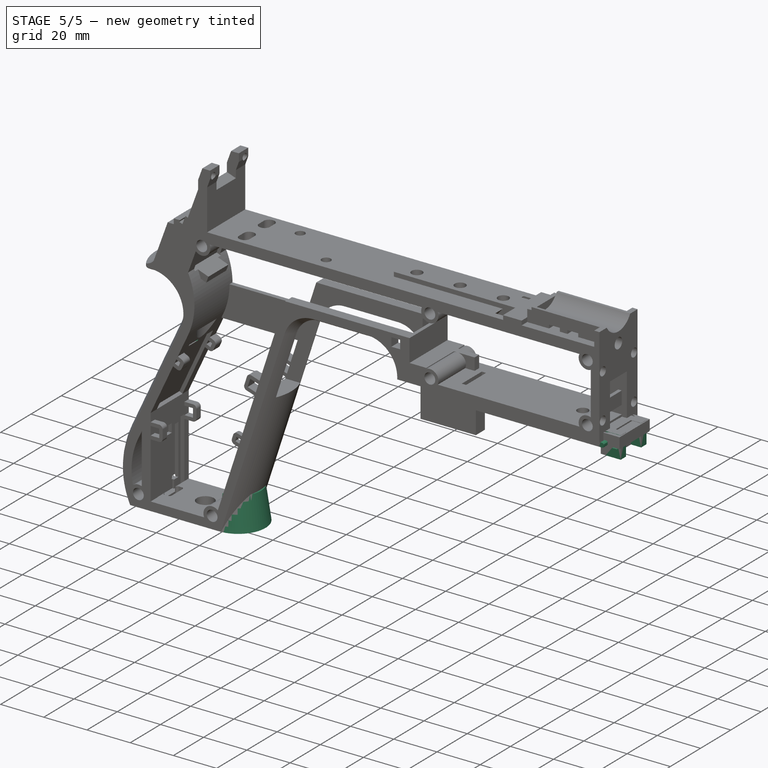
[diagram: stage 5 of 5 — iso view after this stage's code; geometry added in this stage tinted green]
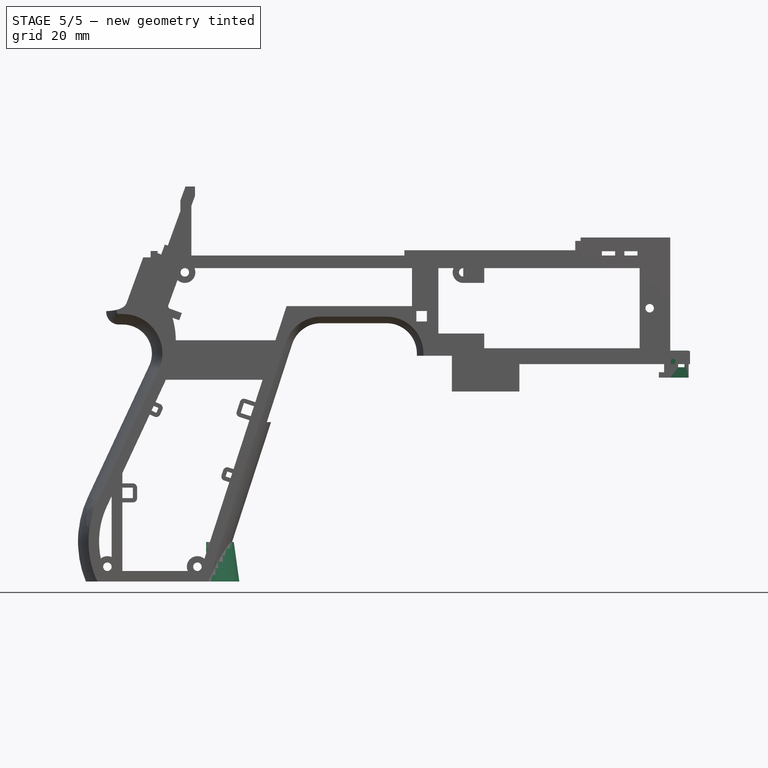
[diagram: stage 5 of 5 — front view after this stage's code; geometry added in this stage tinted green]
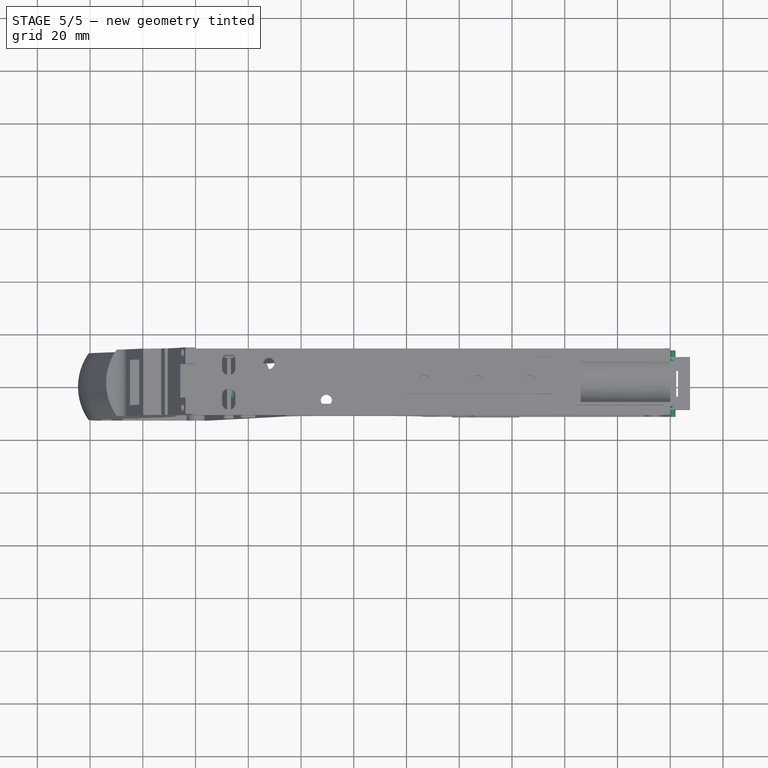
[diagram: stage 5 of 5 — top view after this stage's code; geometry added in this stage tinted green]
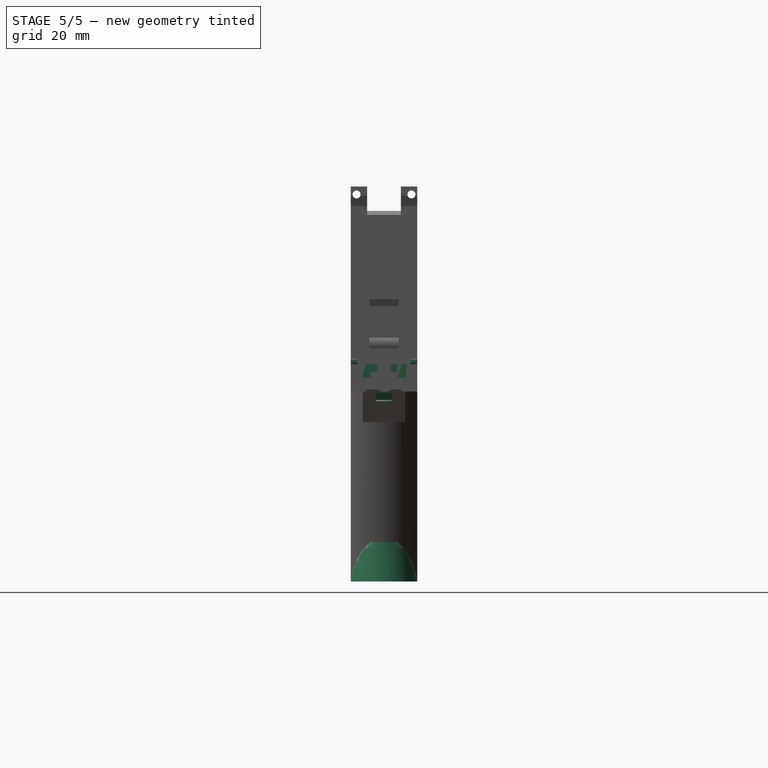
[diagram: stage 5 of 5 — right view after this stage's code; geometry added in this stage tinted green]
FEATURE [Sketcher::SketchObject] Sketch021  label="perno fermo rumble001"
  ArcFitTolerance = 1e-06
  AttachmentSupport = -> [XZ_Plane001]
  FullyConstrained = true
  MakeInternals = false
  MapMode = 5
  Placement = pos=(0,0,0) rot=(1,0,0;1.5708rad)
  sketch-geometry (16):
    g0: LineSegment StartX=0 StartY=0.45 StartZ=0 EndX=0 EndY=1.55 EndZ=0
    g1: LineSegment StartX=0.45 StartY=2 StartZ=0 EndX=1.55 EndY=2 EndZ=0
    g2: LineSegment StartX=2 StartY=1.55 StartZ=0 EndX=2 EndY=0.45 EndZ=0
    g3: LineSegment StartX=1.55 StartY=0 StartZ=0 EndX=0.45 EndY=0 EndZ=0
    g4: ArcOfCircle [constr] CenterX=0.45 CenterY=1.55 CenterZ=0 NormalX=0 NormalY=0 NormalZ=1 AngleXU=0 Radius=0.45 StartAngle=1.5708 EndAngle=3.14159
    g5: GeomPoint [constr] X=0 Y=2 Z=0
    g6: LineSegment StartX=0.45 StartY=2 StartZ=0 EndX=0 EndY=1.55 EndZ=0
    g7: ArcOfCircle [constr] CenterX=1.55 CenterY=1.55 CenterZ=0 NormalX=0 NormalY=0 NormalZ=1 AngleXU=0 Radius=0.45 StartAngle=0 EndAngle=1.5708
    g8: GeomPoint [constr] X=2 Y=2 Z=0
    g9: LineSegment StartX=2 StartY=1.55 StartZ=0 EndX=1.55 EndY=2 EndZ=0
    g10: ArcOfCircle [constr] CenterX=1.55 CenterY=0.45 CenterZ=0 NormalX=0 NormalY=0 NormalZ=1 AngleXU=0 Radius=0.45 StartAngle=4.71239 EndAngle=6.28319
    g11: GeomPoint [constr] X=2 Y=0 Z=0
    g12: LineSegment StartX=1.55 StartY=0 StartZ=0 EndX=2 EndY=0.45 EndZ=0
    g13: ArcOfCircle [constr] CenterX=0.45 CenterY=0.45 CenterZ=0 NormalX=0 NormalY=0 NormalZ=1 AngleXU=0 Radius=0.45 StartAngle=3.14159 EndAngle=4.71239
    g14: GeomPoint [constr] X=0 Y=0 Z=0
    g15: LineSegment StartX=0 StartY=0.45 StartZ=0 EndX=0.45 EndY=0 EndZ=0
  constraints (35):
    c: Coincident(g14,g-1)
    c: PointOnObject(g5,g-2)
    c: Horizontal(g1)
    c: Vertical(g2)
    c: Horizontal(g3)
    c: DistanceX(g5,g8) = 2
    c: DistanceY(g11,g8) = 2
    c: PointOnObject(g5,g0)
    c: PointOnObject(g5,g1)
    c: Tangent(g0,g4) = 1.5708
    c: Tangent(g1,g4) = 1.5708
    c: Coincident(g6,g0)
    c: Coincident(g6,g1)
    c: PointOnObject(g8,g2)
    c: PointOnObject(g8,g1)
    c: Tangent(g2,g7) = 1.5708
    c: Tangent(g1,g7) = 1.5708
    c: Coincident(g9,g2)
    c: Coincident(g9,g1)
    c: PointOnObject(g11,g2)
    c: PointOnObject(g11,g3)
    c: Tangent(g2,g10) = 1.5708
    c: Tangent(g3,g10) = 1.5708
    c: Coincident(g12,g2)
    c: Coincident(g12,g3)
    c: PointOnObject(g14,g0)
    c: PointOnObject(g14,g3)
    c: Tangent(g0,g13) = 1.5708
    c: Tangent(g3,g13) = 1.5708
    c: Coincident(g15,g0)
    c: Coincident(g15,g3)
    c: Equal(g6,g9)
    c: Equal(g9,g12)
    c: Equal(g12,g15)
    c: DistanceX(g14,g3) = 0.45
FEATURE [Part::Extrusion] Extrude017  label="Extrude perno fermo rumble"
  Base = -> Sketch021
  Dir = (0,-1,2e-16)
  DirMode = 2
  FaceMakerClass = Part::FaceMakerBullseye
  FaceMakerMode = 3
  LengthFwd = 25.2
  LengthRev = 0
  Solid = true
  Symmetric = true
FEATURE [Sketcher::SketchObject] Sketch033  label="fermo per scheda micro"
  ArcFitTolerance = 1e-06
  AttachmentSupport = -> [XZ_Plane]
  ExternalGeometry = -> [Sketch]
  FullyConstrained = true
  MakeInternals = false
  MapMode = 5
  Placement = pos=(0,0,0) rot=(1,0,0;1.5708rad)
  sketch-geometry (12):
    g0: LineSegment StartX=-11.6 StartY=6 StartZ=0 EndX=-4 EndY=6 EndZ=0
    g1: LineSegment StartX=-4 StartY=6 StartZ=0 EndX=-4 EndY=36.4 EndZ=0
    g2: LineSegment StartX=-4 StartY=36.4 StartZ=0 EndX=-11.6 EndY=36.4 EndZ=0
    g3: LineSegment StartX=-11.6 StartY=36.4 StartZ=0 EndX=-11.6 EndY=6 EndZ=0
    g4: LineSegment StartX=-80.11 StartY=11.6 StartZ=0 EndX=-70.51 EndY=11.6 EndZ=0
    g5: LineSegment StartX=-70.51 StartY=11.6 StartZ=0 EndX=-70.51 EndY=6 EndZ=0
    g6: LineSegment StartX=-70.51 StartY=6 StartZ=0 EndX=-80.11 EndY=6 EndZ=0
    g7: LineSegment StartX=-80.11 StartY=6 StartZ=0 EndX=-80.11 EndY=11.6 EndZ=0
    g8: LineSegment StartX=-78.51 StartY=36.4 StartZ=0 EndX=-70.51 EndY=36.4 EndZ=0
    g9: LineSegment StartX=-70.51 StartY=36.4 StartZ=0 EndX=-70.51 EndY=30.8 EndZ=0
    g10: LineSegment StartX=-70.51 StartY=30.8 StartZ=0 EndX=-78.51 EndY=30.8 EndZ=0
    g11: LineSegment StartX=-78.51 StartY=30.8 StartZ=0 EndX=-78.51 EndY=36.4 EndZ=0
  constraints (33):
    c: Horizontal(g0)
    c: Coincident(g1,g0)
    c: Coincident(g2,g1)
    c: Horizontal(g2)
    c: Coincident(g3,g2)
    c: Coincident(g3,g0)
    c: Vertical(g3)
    c: DistanceX(g2,g2) = 7.6
    c: Coincident(g1,g-3)
    c: Coincident(g0,g-3)
    c: Horizontal(g4)
    c: Coincident(g5,g4)
    c: Vertical(g5)
    c: Coincident(g6,g5)
    c: Horizontal(g6)
    c: Coincident(g7,g6)
    c: Coincident(g7,g4)
    c: Vertical(g7)
    c: DistanceY(g5,g5) = 5.6
    c: DistanceX(g4,g4) = 9.6
    c: Coincident(g9,g8)
    c: Vertical(g9)
    c: Coincident(g10,g9)
    c: Horizontal(g10)
    c: Coincident(g11,g10)
    c: Coincident(g11,g8)
    c: Vertical(g11)
    c: DistanceY(g9,g9) = 5.6
    c: DistanceX(g10,g10) = 8
    c: Coincident(g4,g-4)
    c: DistanceX(g4,g10) = 1.6
    c: Horizontal(g8)
    c: DistanceY(g8,g1) = 0
FEATURE [Sketcher::SketchObject] Sketch034  label="buchi guida rail"
  ArcFitTolerance = 1e-06
  AttachmentSupport = -> [XY_Plane]
  ExternalGeometry = -> [Sketch]
  FullyConstrained = true
  MakeInternals = false
  MapMode = 5
  sketch-geometry (6):
    g0: LineSegment [constr] StartX=-100.8 StartY=9.1e-15 StartZ=0 EndX=-93.3 EndY=0 EndZ=0
    g1: LineSegment [constr] StartX=-93.3 StartY=0 StartZ=0 EndX=-73.3 EndY=0 EndZ=0
    g2: LineSegment [constr] StartX=-73.3 StartY=0 StartZ=0 EndX=-53.3 EndY=0 EndZ=0
    g3: Circle CenterX=-93.3 CenterY=0 CenterZ=0 NormalX=0 NormalY=0 NormalZ=1 AngleXU=0 Radius=2.5
    g4: Circle CenterX=-73.3 CenterY=0 CenterZ=0 NormalX=0 NormalY=0 NormalZ=1 AngleXU=0 Radius=2.5
    g5: Circle CenterX=-53.3 CenterY=0 CenterZ=0 NormalX=0 NormalY=0 NormalZ=1 AngleXU=0 Radius=2.5
  constraints (15):
    c: Distance(g0) = 7.5
    c: Coincident(g0,g-3)
    c: PointOnObject(g0,g-1)
    c: Distance(g1) = 20
    c: Coincident(g1,g0)
    c: PointOnObject(g1,g-1)
    c: Distance(g2) = 20
    c: Coincident(g2,g1)
    c: PointOnObject(g2,g-1)
    c: Diameter(g3) = 5
    c: Diameter(g4) = 5
    c: Diameter(g5) = 5
    c: Coincident(g3,g0)
    c: Coincident(g4,g1)
    c: Coincident(g5,g2)
FEATURE [PartDesign::FeatureBase] BaseFeature
  BaseFeature = -> Extrude017
  Suppressed = false
FEATURE [Part::Cut] Cut027
  Base = -> Cut026
  Refine = true
  Tool = -> Extrude044
FEATURE [Part::Cut] Cut028
  Base = -> Cut027
  Refine = true
  Tool = -> Extrude046
FEATURE [Sketcher::SketchObject] Sketch045  label="blocco principale per neopixel"
  ArcFitTolerance = 1e-06
  AttachmentSupport = -> [XZ_Plane002]
  FullyConstrained = true
  MakeInternals = false
  MapMode = 5
  Placement = pos=(0,0,0) rot=(1,0,0;1.5708rad)
  sketch-geometry (4):
    g0: LineSegment StartX=0 StartY=5.1 StartZ=0 EndX=0 EndY=-5.1 EndZ=0
    g1: LineSegment StartX=0 StartY=-5.1 StartZ=0 EndX=7 EndY=-5.1 EndZ=0
    g2: LineSegment StartX=7 StartY=-5.1 StartZ=0 EndX=7 EndY=5.1 EndZ=0
    g3: LineSegment StartX=7 StartY=5.1 StartZ=0 EndX=0 EndY=5.1 EndZ=0
  constraints (11):
    c: Vertical(g0)
    c: Coincident(g1,g0)
    c: Horizontal(g1)
    c: Coincident(g2,g1)
    c: Vertical(g2)
    c: Coincident(g3,g2)
    c: Coincident(g3,g0)
    c: Horizontal(g3)
    c: DistanceY(g0,g0) = 10.2
    c: Symmetric(g0,g0,g-1)
    c: DistanceX(g3,g3) = 7
FEATURE [Part::Extrusion] Extrude048  label="Extrude blocco principale per neopixel"
  Base = -> Sketch045
  Dir = (0,-1,2e-16)
  DirMode = 2
  FaceMakerClass = Part::FaceMakerBullseye
  FaceMakerMode = 3
  LengthFwd = 17
  LengthRev = 0
  Solid = true
  Symmetric = true
FEATURE [Sketcher::SketchObject] Sketch046  label="scavo 5x5 neopixel"
  ArcFitTolerance = 1e-06
  AttachmentSupport = -> [YZ_Plane002]
  FullyConstrained = true
  MakeInternals = false
  MapMode = 5
  Placement = pos=(0,0,0) rot=(0.57735,0.57735,0.57735;2.0944rad)
  sketch-geometry (4):
    g0: LineSegment StartX=-2.6 StartY=2.6 StartZ=0 EndX=2.6 EndY=2.6 EndZ=0
    g1: LineSegment StartX=2.6 StartY=2.6 StartZ=0 EndX=2.6 EndY=-2.6 EndZ=0
    g2: LineSegment StartX=2.6 StartY=-2.6 StartZ=0 EndX=-2.6 EndY=-2.6 EndZ=0
    g3: LineSegment StartX=-2.6 StartY=-2.6 StartZ=0 EndX=-2.6 EndY=2.6 EndZ=0
  constraints (11):
    c: Horizontal(g0)
    c: Coincident(g1,g0)
    c: Vertical(g1)
    c: Coincident(g2,g1)
    c: Horizontal(g2)
    c: Coincident(g3,g2)
    c: Coincident(g3,g0)
    c: Vertical(g3)
    c: DistanceX(g0,g0) = 5.2
    c: DistanceY(g1,g1) = 5.2
    c: Symmetric(g0,g1,g-1)
FEATURE [Part::Extrusion] Extrude049  label="Extrude scavo 5x5 neopixel"
  Base = -> Sketch046
  Dir = (1,0,0)
  DirMode = 2
  FaceMakerClass = Part::FaceMakerBullseye
  FaceMakerMode = 3
  LengthFwd = 1
  LengthRev = 0
  Solid = true
  Symmetric = false
FEATURE [Sketcher::SketchObject] Sketch047  label="scavo 10x10 neopixel corpo"
  ArcFitTolerance = 1e-06
  AttachmentSupport = -> [YZ_Plane002]
  FullyConstrained = true
  MakeInternals = false
  MapMode = 5
  Placement = pos=(0,0,0) rot=(0.57735,0.57735,0.57735;2.0944rad)
  sketch-geometry (4):
    g0: LineSegment StartX=-5 StartY=5.1 StartZ=0 EndX=5 EndY=5.1 EndZ=0
    g1: LineSegment StartX=5 StartY=5.1 StartZ=0 EndX=5 EndY=-5.1 EndZ=0
    g2: LineSegment StartX=5 StartY=-5.1 StartZ=0 EndX=-5 EndY=-5.1 EndZ=0
    g3: LineSegment StartX=-5 StartY=-5.1 StartZ=0 EndX=-5 EndY=5.1 EndZ=0
  constraints (11):
    c: Horizontal(g0)
    c: Coincident(g1,g0)
    c: Vertical(g1)
    c: Coincident(g2,g1)
    c: Horizontal(g2)
    c: Coincident(g3,g2)
    c: Coincident(g3,g0)
    c: Vertical(g3)
    c: DistanceX(g0,g0) = 10
    c: DistanceY(g1,g1) = 10.2
    c: Symmetric(g0,g2,g-1)
FEATURE [Part::Extrusion] Extrude050  label="Extrude scavo 10x10 neopixel corpo"
  Base = -> Sketch047
  Dir = (1,0,0)
  DirMode = 2
  FaceMakerClass = Part::FaceMakerBullseye
  FaceMakerMode = 3
  LengthFwd = 8
  LengthRev = 0
  Placement = pos=(1,0,0) rot=(0,0,1;0rad)
  Solid = true
  Symmetric = false
FEATURE [Sketcher::SketchObject] Sketch048  label="buco per perno blocco neopixel"
  ArcFitTolerance = 1e-06
  AttachmentSupport = -> [XZ_Plane002]
  FullyConstrained = true
  MakeInternals = false
  MapMode = 5
  Placement = pos=(0,0,0) rot=(1,0,0;1.5708rad)
  sketch-geometry (4):
    g0: LineSegment StartX=3 StartY=1.2 StartZ=0 EndX=3 EndY=-1.2 EndZ=0
    g1: LineSegment StartX=3 StartY=-1.2 StartZ=0 EndX=5.4 EndY=-1.2 EndZ=0
    g2: LineSegment StartX=5.4 StartY=-1.2 StartZ=0 EndX=5.4 EndY=1.2 EndZ=0
    g3: LineSegment StartX=5.4 StartY=1.2 StartZ=0 EndX=3 EndY=1.2 EndZ=0
  constraints (11):
    c: Coincident(g1,g0)
    c: Horizontal(g1)
    c: Coincident(g2,g1)
    c: Vertical(g2)
    c: Coincident(g3,g2)
    c: Coincident(g3,g0)
    c: Horizontal(g3)
    c: DistanceX(g1,g1) = 2.4
    c: DistanceY(g2,g2) = 2.4
    c: Symmetric(g0,g0,g-1)
    c: DistanceX(g-1,g0) = 3
FEATURE [Part::Extrusion] Extrude051  label="Extrude buco per perno blocco neopixel"
  Base = -> Sketch048
  Dir = (0,-1,2e-16)
  DirMode = 2
  FaceMakerClass = Part::FaceMakerBullseye
  FaceMakerMode = 3
  LengthFwd = 17
  LengthRev = 0
  Solid = true
  Symmetric = true
FEATURE [Sketcher::SketchObject] Sketch049  label="rinforzi esterni per corpo neopoixel"
  ArcFitTolerance = 1e-06
  AttachmentSupport = -> [XZ_Plane002]
  ExternalGeometry = -> [Sketch045]
  FullyConstrained = true
  MakeInternals = false
  MapMode = 5
  Placement = pos=(0,0,0) rot=(1,0,0;1.5708rad)
  sketch-geometry (8):
    g0: LineSegment StartX=1 StartY=-4.1 StartZ=0 EndX=2 EndY=-4.1 EndZ=0
    g1: LineSegment StartX=2 StartY=-4.1 StartZ=0 EndX=2 EndY=-5.1 EndZ=0
    g2: LineSegment StartX=2 StartY=-5.1 StartZ=0 EndX=1 EndY=-5.1 EndZ=0
    g3: LineSegment StartX=1 StartY=-5.1 StartZ=0 EndX=1 EndY=-4.1 EndZ=0
    g4: LineSegment StartX=1 StartY=5.1 StartZ=0 EndX=2 EndY=5.1 EndZ=0
    g5: LineSegment StartX=2 StartY=5.1 StartZ=0 EndX=2 EndY=4.1 EndZ=0
    g6: LineSegment StartX=2 StartY=4.1 StartZ=0 EndX=1 EndY=4.1 EndZ=0
    g7: LineSegment StartX=1 StartY=4.1 StartZ=0 EndX=1 EndY=5.1 EndZ=0
  constraints (24):
    c: Horizontal(g0)
    c: Coincident(g1,g0)
    c: Vertical(g1)
    c: Coincident(g2,g1)
    c: Horizontal(g2)
    c: Coincident(g3,g2)
    c: Coincident(g3,g0)
    c: Vertical(g3)
    c: Horizontal(g4)
    c: Coincident(g5,g4)
    c: Vertical(g5)
    c: Coincident(g6,g5)
    c: Horizontal(g6)
    c: Coincident(g7,g6)
    c: Coincident(g7,g4)
    c: Vertical(g7)
    c: DistanceX(g4,g4) = 1
    c: DistanceY(g5,g5) = 1
    c: DistanceX(g0,g0) = 1
    c: DistanceY(g1,g1) = 1
    c: DistanceX(g-3,g4) = 1
    c: DistanceY(g-3,g4) = 0
    c: DistanceX(g-4,g2) = 1
    c: DistanceY(g2,g-4) = 0
FEATURE [PartDesign::Body] Body002  label="supporto per neopixel"
  AllowCompound = false
  Group = -> [Sketch045,Sketch046,Sketch047,Sketch048,Sketch049]
  Origin = -> Origin002
FEATURE [Part::Extrusion] Extrude052  label="Extrude rinforzi esterni per corpo neopoixel"
  Base = -> Sketch049
  Dir = (0,-1,2e-16)
  DirMode = 2
  FaceMakerClass = Part::FaceMakerBullseye
  FaceMakerMode = 3
  LengthFwd = 17
  LengthRev = 0
  Solid = true
  Symmetric = true
FEATURE [Part::Cut] Cut030
  Base = -> Extrude048
  Refine = true
  Tool = -> Extrude050
FEATURE [Part::Cut] Cut031
  Base = -> Cut030
  Refine = true
  Tool = -> Extrude049
FEATURE [Part::Cut] Cut032
  Base = -> Cut031
  Refine = true
  Tool = -> Extrude051
FEATURE [Part::MultiFuse] Fusion001  label="fusion neopixel"
  Refine = true
  Shapes = -> [Cut032,Extrude052]
FEATURE [Sketcher::SketchObject] Sketch052  label="scavo saldature driver solenoide"
  ArcFitTolerance = 1e-06
  AttachmentSupport = -> [XZ_Plane]
  ExternalGeometry = -> [Sketch038]
  FullyConstrained = true
  MakeInternals = false
  MapMode = 5
  Placement = pos=(0,0,0) rot=(1,0,0;1.5708rad)
  sketch-geometry (4):
    g0: LineSegment StartX=-196.197 StartY=-9.91611 StartZ=0 EndX=-197.888 EndY=-13.5413 EndZ=0
    g1: LineSegment StartX=-197.888 StartY=-13.5413 StartZ=0 EndX=-196.8 EndY=-14.0485 EndZ=0
    g2: LineSegment StartX=-196.8 StartY=-14.0485 StartZ=0 EndX=-195.11 EndY=-10.4232 EndZ=0
    g3: LineSegment StartX=-195.11 StartY=-10.4232 StartZ=0 EndX=-196.197 EndY=-9.91611 EndZ=0
  constraints (11):
    c: Coincident(g1,g0)
    c: Coincident(g2,g1)
    c: Coincident(g3,g2)
    c: Coincident(g3,g0)
    c: Parallel(g2,g0)
    c: Perpendicular(g2,g3)
    c: Perpendicular(g1,g2,g1) = 1.5708
    c: Parallel(g2,g-3)
    c: Distance(g2) = 4
    c: Distance(g3) = 1.2
    c: Coincident(g2,g-3)
FEATURE [Part::Extrusion] Extrude055  label="Extrude scavo saldature driver solenoide"
  Base = -> Sketch052
  Dir = (0,-1,2e-16)
  DirMode = 2
  FaceMakerClass = Part::FaceMakerBullseye
  FaceMakerMode = 3
  LengthFwd = 6
  LengthRev = 0
  Solid = true
  Symmetric = true
FEATURE [Sketcher::SketchObject] Sketch053  label="scavo saldature rumble"
  ArcFitTolerance = 1e-06
  AttachmentSupport = -> [XZ_Plane]
  ExternalGeometry = -> [Sketch019]
  FullyConstrained = true
  MakeInternals = false
  MapMode = 5
  Placement = pos=(0,0,0) rot=(1,0,0;1.5708rad)
  sketch-geometry (4):
    g0: LineSegment StartX=-165.31 StartY=-44.1173 StartZ=0 EndX=-166.547 EndY=-47.9216 EndZ=0
    g1: LineSegment StartX=-166.547 StartY=-47.9216 StartZ=0 EndX=-165.405 EndY=-48.2924 EndZ=0
    g2: LineSegment StartX=-165.405 StartY=-48.2924 StartZ=0 EndX=-164.169 EndY=-44.4881 EndZ=0
    g3: LineSegment StartX=-164.169 StartY=-44.4881 StartZ=0 EndX=-165.31 EndY=-44.1173 EndZ=0
  constraints (11):
    c: Coincident(g1,g0)
    c: Coincident(g2,g1)
    c: Coincident(g3,g2)
    c: Coincident(g3,g0)
    c: Parallel(g0,g2)
    c: Perpendicular(g3,g0)
    c: Perpendicular(g1,g0)
    c: Parallel(g0,g-3)
    c: Distance(g0) = 4
    c: Distance(g1) = 1.2
    c: Coincident(g0,g-3)
FEATURE [Part::Extrusion] Extrude056  label="Extrude scavo saldature rumble"
  Base = -> Sketch053
  Dir = (0,-1,2e-16)
  DirMode = 2
  FaceMakerClass = Part::FaceMakerBullseye
  FaceMakerMode = 3
  LengthFwd = 8.4
  LengthRev = 0
  Solid = true
  Symmetric = true
FEATURE [Part::Cone] Cone  label="Cono"
  Angle = 180
  AttacherType = Attacher::AttachEngine3D
  Height = 15
  Placement = pos=(-176,0,-82.43) rot=(0,0,1;-1.5708rad)
  Radius1 = 12.6
  Radius2 = 10.5
FEATURE [Part::Cut] Cut029
  Base = -> Cut028
  Refine = true
  Tool = -> Extrude047
FEATURE [Part::Cut] Cut033
  Base = -> Cut029
  Refine = true
  Tool = -> Extrude055
FEATURE [Part::Cut] Cut034
  Base = -> Cut033
  Refine = true
  Tool = -> Extrude056
FEATURE [Part::Cut] Cut035
  Base = -> Cut034
  Refine = true
  Tool = -> Extrude057
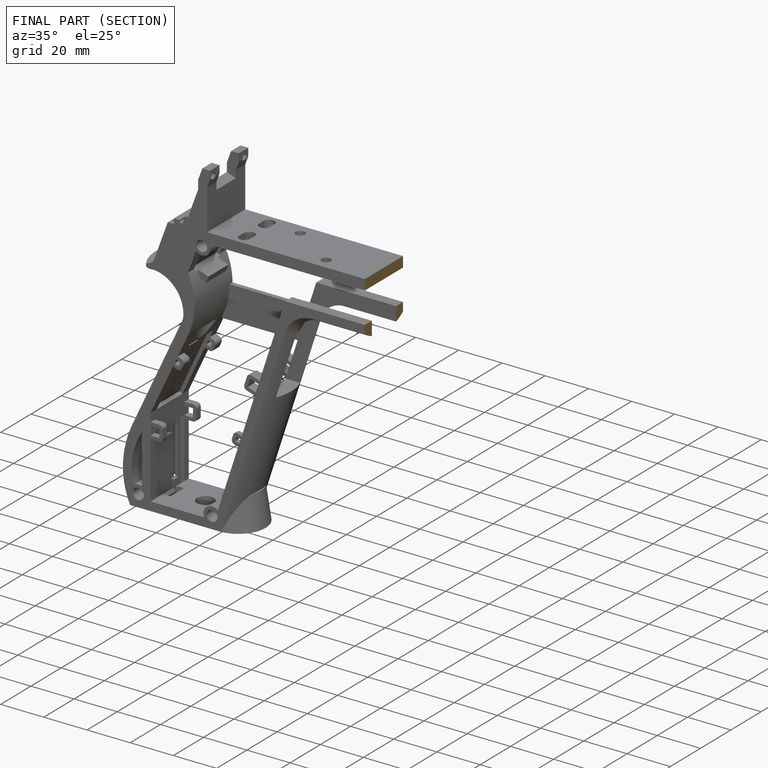
[diagram: finished part — half-section view (interior)]
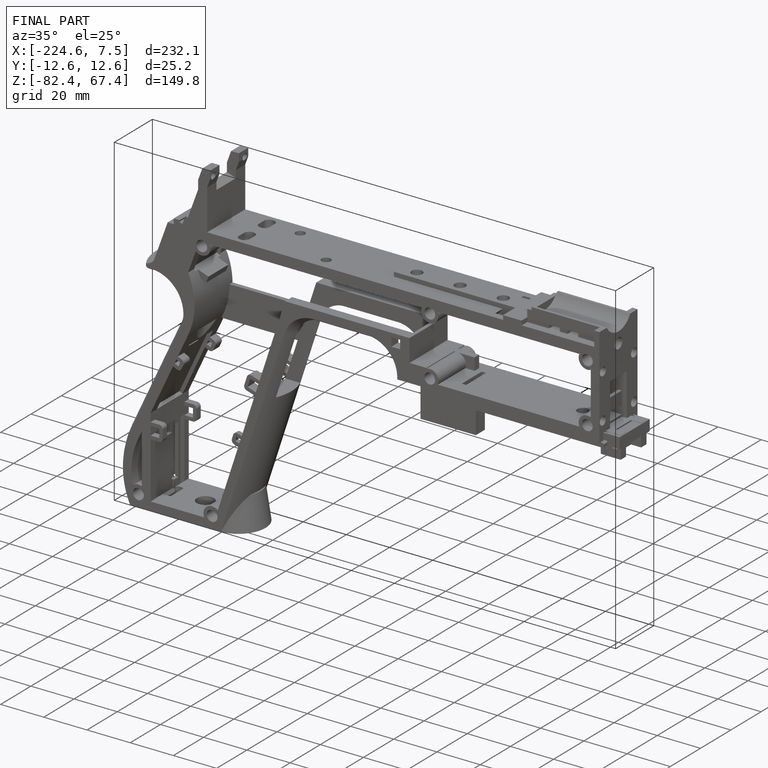
[diagram: finished part — iso view with bounding-box wireframe]
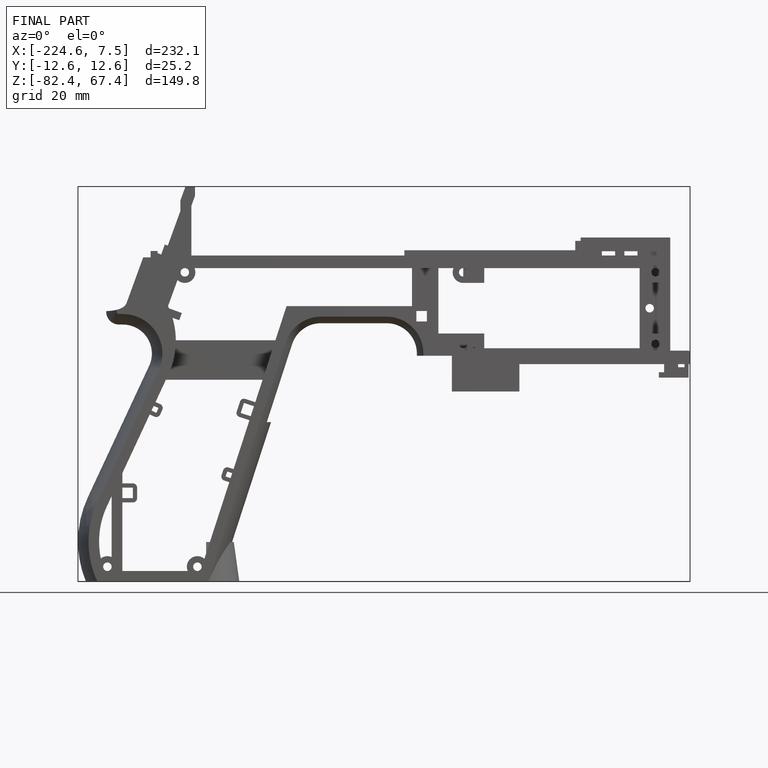
[diagram: finished part — front view with bounding-box wireframe]
